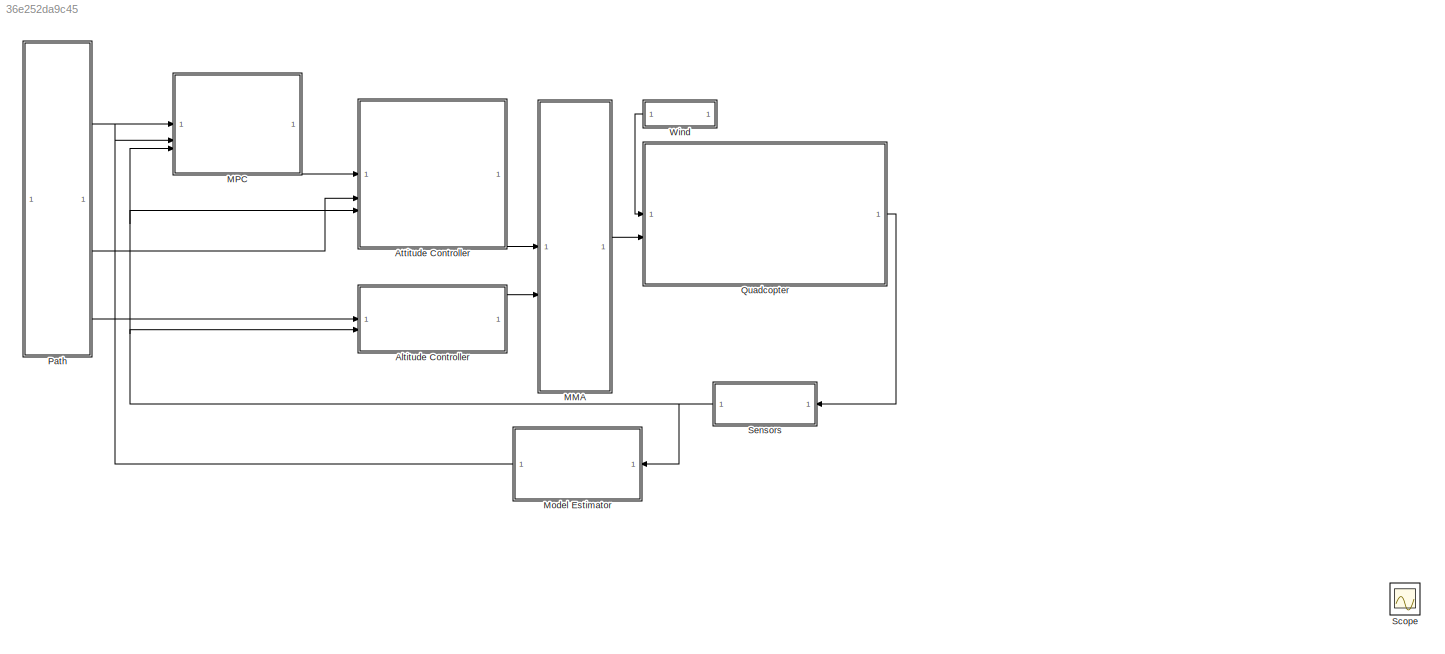
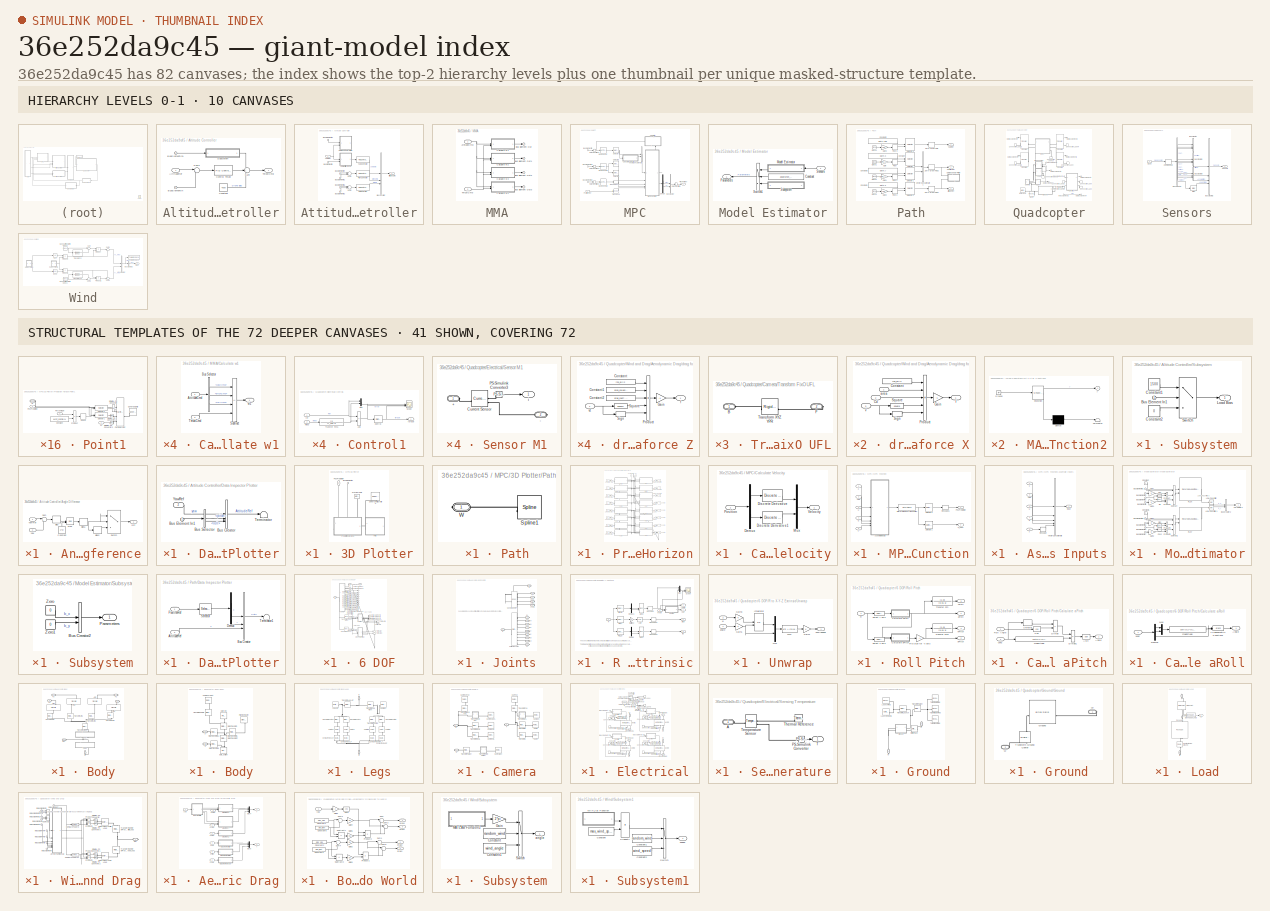
[diagram: thumbnail index - top-2 hierarchy levels (10 canvases) + 41 structural-template representatives of the remaining 72 canvases]
MODEL slx_36e252da9c45
KIND model
CONFIG AbsTol = 1e-4
CONFIG EnableMultiTasking = off
CONFIG FixedStep = auto
CONFIG MaxStep = 0.1
CONFIG MinStep = auto
CONFIG RelTol = 1e-4
CONFIG SampleTimeConstraint = Unconstrained
CONFIG SolverName = FixedStepAuto
CONFIG StartTime = 0.0
CONFIG StopTime = inf
BLOCK [SubSystem] Altitude Controller
BLOCK [Inport] Altitude Controller/AltitudeRef
BLOCK [Inport] Altitude Controller/BusElementIn
  Port = 2
BLOCK [Inport] Altitude Controller/BusElementIn1
  Port = 2
BLOCK [Constant] Altitude Controller/Constant
  Value = 4500
BLOCK [Reference] Altitude Controller/Control Thrust  REF=slpidlib/PID Controller
  SourceBlock = slpidlib/PID Controller
  SourceType = PID 1dof
BLOCK [SubSystem] Altitude Controller/Subsystem
BLOCK [Inport] Altitude Controller/Subsystem/Bus Element In1
BLOCK [Constant] Altitude Controller/Subsystem/Constant1
  Value = 1500
BLOCK [Constant] Altitude Controller/Subsystem/Constant2
  Value = 0
BLOCK [Outport] Altitude Controller/Subsystem/Load Bias
BLOCK [Switch] Altitude Controller/Subsystem/Switch
  Criteria = u2 > Threshold
  InputSameDT = off
  SaturateOnIntegerOverflow = off
BLOCK [Sum] Altitude Controller/Sum
  Inputs = +++
BLOCK [Sum] Altitude Controller/Sum1
  Inputs = |+-
BLOCK [Outport] Altitude Controller/ThrustCmd
BLOCK [SubSystem] Attitude Controller
BLOCK [SubSystem] Attitude Controller/Angle Difference
BLOCK [Bias] Attitude Controller/Angle Difference/Bias
  Bias = pi
  SaturateOnIntegerOverflow = off
BLOCK [Bias] Attitude Controller/Angle Difference/Bias1
  Bias = -pi
  SaturateOnIntegerOverflow = off
BLOCK [Bias] Attitude Controller/Angle Difference/Bias2
  Bias = 2*pi
  SaturateOnIntegerOverflow = off
BLOCK [Constant] Attitude Controller/Angle Difference/Constant
  NameLocation = right
  Value = 2*pi
BLOCK [Outport] Attitude Controller/Angle Difference/Diff
BLOCK [Math] Attitude Controller/Angle Difference/Mod
  Operator = mod
BLOCK [Sum] Attitude Controller/Angle Difference/Sum
  Inputs = |+-
BLOCK [Switch] Attitude Controller/Angle Difference/Switch
  Criteria = u2 > Threshold
  InputSameDT = off
  SaturateOnIntegerOverflow = off
  Threshold = -pi
BLOCK [Inport] Attitude Controller/Angle Difference/Yaw
  Port = 2
BLOCK [Inport] Attitude Controller/Angle Difference/YawRef
BLOCK [Outport] Attitude Controller/AttitudeCmd
BLOCK [BusCreator] Attitude Controller/Bus Creator
  DisplayOption = bar
  InheritFromInputs = on
  Inputs = 3
BLOCK [Inport] Attitude Controller/Bus Element In1
BLOCK [Inport] Attitude Controller/Bus Element In4
BLOCK [Inport] Attitude Controller/Bus Element In5
BLOCK [Inport] Attitude Controller/BusElementIn
  Port = 3
BLOCK [Inport] Attitude Controller/BusElementIn1
  Port = 3
BLOCK [Inport] Attitude Controller/BusElementIn2
  Port = 3
BLOCK [SubSystem] Attitude Controller/Data Inspector Plotter
  NameLocation = right
BLOCK [BusCreator] Attitude Controller/Data Inspector Plotter/Bus Creator
  DisplayOption = bar
  InheritFromInputs = on
  Inputs = 3
BLOCK [Inport] Attitude Controller/Data Inspector Plotter/Bus Element In1
BLOCK [BusSelector] Attitude Controller/Data Inspector Plotter/Bus Selector
  OutputSignals = pitch,roll
BLOCK [Terminator] Attitude Controller/Data Inspector Plotter/Terminator
BLOCK [Inport] Attitude Controller/Data Inspector Plotter/YawRef
  NameLocation = top
  Port = 2
BLOCK [Reference] Attitude Controller/Pitch Controller  REF=slpidlib/PID Controller
  SourceBlock = slpidlib/PID Controller
  SourceType = PID 1dof
BLOCK [Reference] Attitude Controller/Roll Controller  REF=slpidlib/PID Controller
  SourceBlock = slpidlib/PID Controller
  SourceType = PID 1dof
BLOCK [Sum] Attitude Controller/Sum1
  Inputs = |+-
BLOCK [Sum] Attitude Controller/Sum2
  Inputs = |+-
BLOCK [Reference] Attitude Controller/Yaw Controller  REF=slpidlib/PID Controller
  SourceBlock = slpidlib/PID Controller
  SourceType = PID 1dof
BLOCK [Inport] Attitude Controller/YawRef
  NameLocation = top
  Port = 2
BLOCK [SubSystem] MMA
  NameLocation = top
BLOCK [Inport] MMA/AttitudeCmd
BLOCK [Outport] MMA/Bus Element Out
BLOCK [Outport] MMA/Bus Element Out1
BLOCK [Outport] MMA/Bus Element Out2
BLOCK [Outport] MMA/Bus Element Out3
BLOCK [SubSystem] MMA/Calculate w1
BLOCK [Inport] MMA/Calculate w1/AttitudeCmd
BLOCK [BusSelector] MMA/Calculate w1/Bus Selector
  OutputSignals = yawCmd,pitchCmd,rollCmd
BLOCK [Sum] MMA/Calculate w1/Subtract
  IconShape = rectangular
  Inputs = --++
BLOCK [Inport] MMA/Calculate w1/ThrustCmd
  Port = 2
BLOCK [Outport] MMA/Calculate w1/w1
BLOCK [SubSystem] MMA/Calculate w2
BLOCK [Inport] MMA/Calculate w2/AttitudeCmd
BLOCK [BusSelector] MMA/Calculate w2/Bus Selector
  OutputSignals = yawCmd,pitchCmd,rollCmd
BLOCK [Sum] MMA/Calculate w2/Subtract
  IconShape = rectangular
  Inputs = +--+
BLOCK [Inport] MMA/Calculate w2/ThrustCmd
  Port = 2
BLOCK [Outport] MMA/Calculate w2/w2
BLOCK [SubSystem] MMA/Calculate w3
BLOCK [Inport] MMA/Calculate w3/AttitudeCmd
BLOCK [BusSelector] MMA/Calculate w3/Bus Selector
  OutputSignals = yawCmd,pitchCmd,rollCmd
BLOCK [Sum] MMA/Calculate w3/Subtract
  IconShape = rectangular
  Inputs = ++++
BLOCK [Inport] MMA/Calculate w3/ThrustCmd
  Port = 2
BLOCK [Outport] MMA/Calculate w3/w3
BLOCK [SubSystem] MMA/Calculate w4
BLOCK [Inport] MMA/Calculate w4/AttitudeCmd
BLOCK [BusSelector] MMA/Calculate w4/Bus Selector
  OutputSignals = yawCmd,pitchCmd,rollCmd
BLOCK [Sum] MMA/Calculate w4/Subtract
  IconShape = rectangular
  Inputs = -+-+
BLOCK [Inport] MMA/Calculate w4/ThrustCmd
  Port = 2
BLOCK [Outport] MMA/Calculate w4/w4
BLOCK [Inport] MMA/ThrustCmd
  Port = 2
BLOCK [SubSystem] MPC
  NameLocation = top
BLOCK [SubSystem] MPC/3D Plotter
  NameLocation = top
  PortSchema = {"entries":[{"content":{"sides":[{"content":{},"type":"ConnectorPlacement.EquallySpacedRectSide","uuid":"e0108e40-7aae-4104-a358-d74a5f3e4ffc"},{"content":{"side":"RIGHT"},"type":"ConnectorPlacement.EquallySpacedRectSide","uuid":"423988ce-e1aa-44bb-89d1-9f8d1d6b3900"},{"content":{"connectorIds":["In1"],"side":"TOP"},"type":"ConnectorPlacement.EquallySpacedRectSide","uuid":"a9ac0a6f-9ee2-42d4-a631-...<+348ch>
BLOCK [Inport] MPC/3D Plotter/BusElementIn1
  NameLocation = left
BLOCK [SubSystem] MPC/3D Plotter/Path
  PortSchema = {"entries":[{"content":{"sides":[{"content":{},"type":"ConnectorPlacement.EquallySpacedRectSide","uuid":"a37decf6-7c95-4e74-978f-accab4815bca"},{"content":{"side":"RIGHT"},"type":"ConnectorPlacement.EquallySpacedRectSide","uuid":"1290ed2a-5cda-4ac5-b3d1-08d972a37bb4"},{"content":{"side":"TOP"},"type":"ConnectorPlacement.EquallySpacedRectSide","uuid":"57cc8f3c-04dd-443b-a82e-0db9ef1adeeb"},{"conten...<+328ch>
BLOCK [Reference] MPC/3D Plotter/Path/Spline1  REF=sm_lib/Curves and Surfaces/Spline
  SourceBlock = sm_lib/Curves and Surfaces/Spline
  SourceType = Spline
BLOCK [PMIOPort] MPC/3D Plotter/Path/W
  Side = Right
BLOCK [Inport] MPC/3D Plotter/PosPrediction
  NameLocation = top
  Port = 2
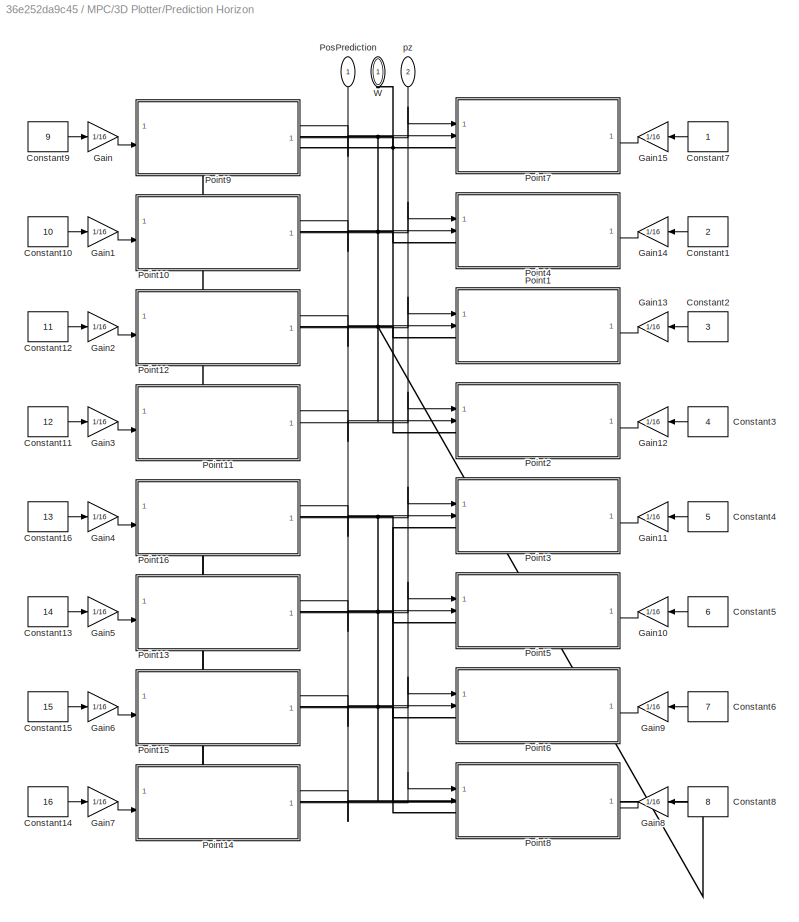
BLOCK [SubSystem] MPC/3D Plotter/Prediction Horizon
  PortSchema = {"entries":[{"content":{"sides":[{"content":{},"type":"ConnectorPlacement.EquallySpacedRectSide","uuid":"8e97a51c-4e54-4ead-983f-8da85e5c6afb"},{"content":{"side":"RIGHT"},"type":"ConnectorPlacement.EquallySpacedRectSide","uuid":"49564596-eda7-46a1-80be-d73174b6811e"},{"content":{"connectorIds":["In1","In2","LConn1"],"side":"TOP"},"type":"ConnectorPlacement.EquallySpacedRectSide","uuid":"27a12f24-...<+214ch>
BLOCK [Constant] MPC/3D Plotter/Prediction Horizon/Constant1
  NameLocation = top
  Value = 2
BLOCK [Constant] MPC/3D Plotter/Prediction Horizon/Constant10
  Value = 10
BLOCK [Constant] MPC/3D Plotter/Prediction Horizon/Constant11
  Value = 12
BLOCK [Constant] MPC/3D Plotter/Prediction Horizon/Constant12
  Value = 11
BLOCK [Constant] MPC/3D Plotter/Prediction Horizon/Constant13
  Value = 14
BLOCK [Constant] MPC/3D Plotter/Prediction Horizon/Constant14
  Value = 16
BLOCK [Constant] MPC/3D Plotter/Prediction Horizon/Constant15
  Value = 15
BLOCK [Constant] MPC/3D Plotter/Prediction Horizon/Constant16
  Value = 13
BLOCK [Constant] MPC/3D Plotter/Prediction Horizon/Constant2
  NameLocation = top
  Value = 3
BLOCK [Constant] MPC/3D Plotter/Prediction Horizon/Constant3
  NameLocation = top
  Value = 4
BLOCK [Constant] MPC/3D Plotter/Prediction Horizon/Constant4
  NameLocation = top
  Value = 5
BLOCK [Constant] MPC/3D Plotter/Prediction Horizon/Constant5
  NameLocation = top
  Value = 6
BLOCK [Constant] MPC/3D Plotter/Prediction Horizon/Constant6
  NameLocation = top
  Value = 7
BLOCK [Constant] MPC/3D Plotter/Prediction Horizon/Constant7
  NameLocation = top
BLOCK [Constant] MPC/3D Plotter/Prediction Horizon/Constant8
  NameLocation = top
  Value = 8
BLOCK [Constant] MPC/3D Plotter/Prediction Horizon/Constant9
  Value = 9
BLOCK [Gain] MPC/3D Plotter/Prediction Horizon/Gain
  Gain = 1/16
BLOCK [Gain] MPC/3D Plotter/Prediction Horizon/Gain1
  Gain = 1/16
BLOCK [Gain] MPC/3D Plotter/Prediction Horizon/Gain10
  Gain = 1/16
  NameLocation = top
BLOCK [Gain] MPC/3D Plotter/Prediction Horizon/Gain11
  Gain = 1/16
  NameLocation = top
BLOCK [Gain] MPC/3D Plotter/Prediction Horizon/Gain12
  Gain = 1/16
  NameLocation = top
BLOCK [Gain] MPC/3D Plotter/Prediction Horizon/Gain13
  Gain = 1/16
  NameLocation = top
BLOCK [Gain] MPC/3D Plotter/Prediction Horizon/Gain14
  Gain = 1/16
  NameLocation = top
BLOCK [Gain] MPC/3D Plotter/Prediction Horizon/Gain15
  Gain = 1/16
  NameLocation = top
BLOCK [Gain] MPC/3D Plotter/Prediction Horizon/Gain2
  Gain = 1/16
BLOCK [Gain] MPC/3D Plotter/Prediction Horizon/Gain3
  Gain = 1/16
BLOCK [Gain] MPC/3D Plotter/Prediction Horizon/Gain4
  Gain = 1/16
BLOCK [Gain] MPC/3D Plotter/Prediction Horizon/Gain5
  Gain = 1/16
BLOCK [Gain] MPC/3D Plotter/Prediction Horizon/Gain6
  Gain = 1/16
BLOCK [Gain] MPC/3D Plotter/Prediction Horizon/Gain7
  Gain = 1/16
BLOCK [Gain] MPC/3D Plotter/Prediction Horizon/Gain8
  Gain = 1/16
  NameLocation = top
BLOCK [Gain] MPC/3D Plotter/Prediction Horizon/Gain9
  Gain = 1/16
  NameLocation = top
BLOCK [SubSystem] MPC/3D Plotter/Prediction Horizon/Point1
  PortSchema = {"entries":[{"content":{"sides":[{"content":{"connectorIds":["In1","LConn1","In2"]},"type":"ConnectorPlacement.EquallySpacedRectSide","uuid":"cc92885d-da45-442c-a0be-bd9072ccd0a5"},{"content":{"connectorIds":["In3"],"side":"RIGHT"},"type":"ConnectorPlacement.EquallySpacedRectSide","uuid":"93d66193-cd04-472c-bc91-8b31f2426c90"},{"content":{"side":"TOP"},"type":"ConnectorPlacement.EquallySpacedRectS...<+236ch>  <repeated x16 — deduplicated; at blocks: Point1, Point10, Point11, Point12, Point13, Point14, Point15, Point16, Point2, Point3, Point4, Point5, Point6, Point7, Point8, Point9>
BLOCK [Reference] MPC/3D Plotter/Prediction Horizon/Point1/Cartesian Joint  REF=sm_lib/Joints/Cartesian
Joint
  SourceBlock = sm_lib/Joints/Cartesian\nJoint
  SourceType = Cartesian\nJoint
BLOCK [Constant] MPC/3D Plotter/Prediction Horizon/Point1/Constant
  Value = MPC_config.N
BLOCK [Inport] MPC/3D Plotter/Prediction Horizon/Point1/Percentage
  NameLocation = top
  Port = 3
BLOCK [Inport] MPC/3D Plotter/Prediction Horizon/Point1/PosPrediction
  Port = 2
BLOCK [Product] MPC/3D Plotter/Prediction Horizon/Point1/Product
BLOCK [Rounding] MPC/3D Plotter/Prediction Horizon/Point1/Round
  Operator = round
BLOCK [Selector] MPC/3D Plotter/Prediction Horizon/Point1/Selector1
  IndexOptions = Index vector (port),Index vector (dialog)
  Indices = 20,2
  InputPortWidth = 3
  NumberOfDimensions = 2
  OutputSizes = 1,1
BLOCK [Selector] MPC/3D Plotter/Prediction Horizon/Point1/Selector2
  IndexOptions = Index vector (port),Index vector (dialog)
  Indices = 20,1
  InputPortWidth = 3
  NumberOfDimensions = 2
  OutputSizes = 1,1
BLOCK [Reference] MPC/3D Plotter/Prediction Horizon/Point1/Simulink-PS Converter  REF=nesl_utility/Simulink-PS
Converter
  SourceBlock = nesl_utility/Simulink-PS\nConverter
  SourceType = Simulink-PS\nConverter
BLOCK [Reference] MPC/3D Plotter/Prediction Horizon/Point1/Simulink-PS Converter1  REF=nesl_utility/Simulink-PS
Converter
  SourceBlock = nesl_utility/Simulink-PS\nConverter
  SourceType = Simulink-PS\nConverter
BLOCK [Reference] MPC/3D Plotter/Prediction Horizon/Point1/Simulink-PS Converter2  REF=nesl_utility/Simulink-PS
Converter
  SourceBlock = nesl_utility/Simulink-PS\nConverter
  SourceType = Simulink-PS\nConverter
BLOCK [Reference] MPC/3D Plotter/Prediction Horizon/Point1/Spherical Solid  REF=sm_lib/Body Elements/Spherical Solid
  NameLocation = top
  SourceBlock = sm_lib/Body Elements/Spherical Solid
  SourceType = Spherical Solid
BLOCK [PMIOPort] MPC/3D Plotter/Prediction Horizon/Point1/W
  Side = Left
BLOCK [Inport] MPC/3D Plotter/Prediction Horizon/Point1/pz
BLOCK [SubSystem] MPC/3D Plotter/Prediction Horizon/Point10
  NameLocation = top
BLOCK [Reference] MPC/3D Plotter/Prediction Horizon/Point10/Cartesian Joint  REF=sm_lib/Joints/Cartesian
Joint
  SourceBlock = sm_lib/Joints/Cartesian\nJoint
  SourceType = Cartesian\nJoint
BLOCK [Constant] MPC/3D Plotter/Prediction Horizon/Point10/Constant
  Value = MPC_config.N
BLOCK [Inport] MPC/3D Plotter/Prediction Horizon/Point10/Percentage
  NameLocation = top
  Port = 3
BLOCK [Inport] MPC/3D Plotter/Prediction Horizon/Point10/PosPrediction
BLOCK [Product] MPC/3D Plotter/Prediction Horizon/Point10/Product
BLOCK [Rounding] MPC/3D Plotter/Prediction Horizon/Point10/Round
  Operator = round
BLOCK [Selector] MPC/3D Plotter/Prediction Horizon/Point10/Selector1
  IndexOptions = Index vector (port),Index vector (dialog)
  Indices = 20,2
  InputPortWidth = 3
  NumberOfDimensions = 2
  OutputSizes = 1,1
BLOCK [Selector] MPC/3D Plotter/Prediction Horizon/Point10/Selector2
  IndexOptions = Index vector (port),Index vector (dialog)
  Indices = 20,1
  InputPortWidth = 3
  NumberOfDimensions = 2
  OutputSizes = 1,1
BLOCK [Reference] MPC/3D Plotter/Prediction Horizon/Point10/Simulink-PS Converter  REF=nesl_utility/Simulink-PS
Converter
  SourceBlock = nesl_utility/Simulink-PS\nConverter
  SourceType = Simulink-PS\nConverter
BLOCK [Reference] MPC/3D Plotter/Prediction Horizon/Point10/Simulink-PS Converter1  REF=nesl_utility/Simulink-PS
Converter
  SourceBlock = nesl_utility/Simulink-PS\nConverter
  SourceType = Simulink-PS\nConverter
BLOCK [Reference] MPC/3D Plotter/Prediction Horizon/Point10/Simulink-PS Converter2  REF=nesl_utility/Simulink-PS
Converter
  SourceBlock = nesl_utility/Simulink-PS\nConverter
  SourceType = Simulink-PS\nConverter
BLOCK [Reference] MPC/3D Plotter/Prediction Horizon/Point10/Spherical Solid  REF=sm_lib/Body Elements/Spherical Solid
  NameLocation = top
  SourceBlock = sm_lib/Body Elements/Spherical Solid
  SourceType = Spherical Solid
BLOCK [PMIOPort] MPC/3D Plotter/Prediction Horizon/Point10/W
  Side = Left
BLOCK [Inport] MPC/3D Plotter/Prediction Horizon/Point10/pz
  Port = 2
BLOCK [SubSystem] MPC/3D Plotter/Prediction Horizon/Point11
  NameLocation = top
BLOCK [Reference] MPC/3D Plotter/Prediction Horizon/Point11/Cartesian Joint  REF=sm_lib/Joints/Cartesian
Joint
  SourceBlock = sm_lib/Joints/Cartesian\nJoint
  SourceType = Cartesian\nJoint
BLOCK [Constant] MPC/3D Plotter/Prediction Horizon/Point11/Constant
  Value = MPC_config.N
BLOCK [Inport] MPC/3D Plotter/Prediction Horizon/Point11/Percentage
  NameLocation = top
  Port = 3
BLOCK [Inport] MPC/3D Plotter/Prediction Horizon/Point11/PosPrediction
BLOCK [Product] MPC/3D Plotter/Prediction Horizon/Point11/Product
BLOCK [Rounding] MPC/3D Plotter/Prediction Horizon/Point11/Round
  Operator = round
BLOCK [Selector] MPC/3D Plotter/Prediction Horizon/Point11/Selector1
  IndexOptions = Index vector (port),Index vector (dialog)
  Indices = 20,2
  InputPortWidth = 3
  NumberOfDimensions = 2
  OutputSizes = 1,1
BLOCK [Selector] MPC/3D Plotter/Prediction Horizon/Point11/Selector2
  IndexOptions = Index vector (port),Index vector (dialog)
  Indices = 20,1
  InputPortWidth = 3
  NumberOfDimensions = 2
  OutputSizes = 1,1
BLOCK [Reference] MPC/3D Plotter/Prediction Horizon/Point11/Simulink-PS Converter  REF=nesl_utility/Simulink-PS
Converter
  SourceBlock = nesl_utility/Simulink-PS\nConverter
  SourceType = Simulink-PS\nConverter
BLOCK [Reference] MPC/3D Plotter/Prediction Horizon/Point11/Simulink-PS Converter1  REF=nesl_utility/Simulink-PS
Converter
  SourceBlock = nesl_utility/Simulink-PS\nConverter
  SourceType = Simulink-PS\nConverter
BLOCK [Reference] MPC/3D Plotter/Prediction Horizon/Point11/Simulink-PS Converter2  REF=nesl_utility/Simulink-PS
Converter
  SourceBlock = nesl_utility/Simulink-PS\nConverter
  SourceType = Simulink-PS\nConverter
BLOCK [Reference] MPC/3D Plotter/Prediction Horizon/Point11/Spherical Solid  REF=sm_lib/Body Elements/Spherical Solid
  NameLocation = top
  SourceBlock = sm_lib/Body Elements/Spherical Solid
  SourceType = Spherical Solid
BLOCK [PMIOPort] MPC/3D Plotter/Prediction Horizon/Point11/W
  Side = Left
BLOCK [Inport] MPC/3D Plotter/Prediction Horizon/Point11/pz
  Port = 2
BLOCK [SubSystem] MPC/3D Plotter/Prediction Horizon/Point12
  NameLocation = top
BLOCK [Reference] MPC/3D Plotter/Prediction Horizon/Point12/Cartesian Joint  REF=sm_lib/Joints/Cartesian
Joint
  SourceBlock = sm_lib/Joints/Cartesian\nJoint
  SourceType = Cartesian\nJoint
BLOCK [Constant] MPC/3D Plotter/Prediction Horizon/Point12/Constant
  Value = MPC_config.N
BLOCK [Inport] MPC/3D Plotter/Prediction Horizon/Point12/Percentage
  NameLocation = top
  Port = 3
BLOCK [Inport] MPC/3D Plotter/Prediction Horizon/Point12/PosPrediction
BLOCK [Product] MPC/3D Plotter/Prediction Horizon/Point12/Product
BLOCK [Rounding] MPC/3D Plotter/Prediction Horizon/Point12/Round
  Operator = round
BLOCK [Selector] MPC/3D Plotter/Prediction Horizon/Point12/Selector1
  IndexOptions = Index vector (port),Index vector (dialog)
  Indices = 20,2
  InputPortWidth = 3
  NumberOfDimensions = 2
  OutputSizes = 1,1
BLOCK [Selector] MPC/3D Plotter/Prediction Horizon/Point12/Selector2
  IndexOptions = Index vector (port),Index vector (dialog)
  Indices = 20,1
  InputPortWidth = 3
  NumberOfDimensions = 2
  OutputSizes = 1,1
BLOCK [Reference] MPC/3D Plotter/Prediction Horizon/Point12/Simulink-PS Converter  REF=nesl_utility/Simulink-PS
Converter
  SourceBlock = nesl_utility/Simulink-PS\nConverter
  SourceType = Simulink-PS\nConverter
BLOCK [Reference] MPC/3D Plotter/Prediction Horizon/Point12/Simulink-PS Converter1  REF=nesl_utility/Simulink-PS
Converter
  SourceBlock = nesl_utility/Simulink-PS\nConverter
  SourceType = Simulink-PS\nConverter
BLOCK [Reference] MPC/3D Plotter/Prediction Horizon/Point12/Simulink-PS Converter2  REF=nesl_utility/Simulink-PS
Converter
  SourceBlock = nesl_utility/Simulink-PS\nConverter
  SourceType = Simulink-PS\nConverter
BLOCK [Reference] MPC/3D Plotter/Prediction Horizon/Point12/Spherical Solid  REF=sm_lib/Body Elements/Spherical Solid
  NameLocation = top
  SourceBlock = sm_lib/Body Elements/Spherical Solid
  SourceType = Spherical Solid
BLOCK [PMIOPort] MPC/3D Plotter/Prediction Horizon/Point12/W
  Side = Left
BLOCK [Inport] MPC/3D Plotter/Prediction Horizon/Point12/pz
  Port = 2
BLOCK [SubSystem] MPC/3D Plotter/Prediction Horizon/Point13
  NameLocation = top
BLOCK [Reference] MPC/3D Plotter/Prediction Horizon/Point13/Cartesian Joint  REF=sm_lib/Joints/Cartesian
Joint
  SourceBlock = sm_lib/Joints/Cartesian\nJoint
  SourceType = Cartesian\nJoint
BLOCK [Constant] MPC/3D Plotter/Prediction Horizon/Point13/Constant
  Value = MPC_config.N
BLOCK [Inport] MPC/3D Plotter/Prediction Horizon/Point13/Percentage
  NameLocation = top
  Port = 3
BLOCK [Inport] MPC/3D Plotter/Prediction Horizon/Point13/PosPrediction
BLOCK [Product] MPC/3D Plotter/Prediction Horizon/Point13/Product
BLOCK [Rounding] MPC/3D Plotter/Prediction Horizon/Point13/Round
  Operator = round
BLOCK [Selector] MPC/3D Plotter/Prediction Horizon/Point13/Selector1
  IndexOptions = Index vector (port),Index vector (dialog)
  Indices = 20,2
  InputPortWidth = 3
  NumberOfDimensions = 2
  OutputSizes = 1,1
BLOCK [Selector] MPC/3D Plotter/Prediction Horizon/Point13/Selector2
  IndexOptions = Index vector (port),Index vector (dialog)
  Indices = 20,1
  InputPortWidth = 3
  NumberOfDimensions = 2
  OutputSizes = 1,1
BLOCK [Reference] MPC/3D Plotter/Prediction Horizon/Point13/Simulink-PS Converter  REF=nesl_utility/Simulink-PS
Converter
  SourceBlock = nesl_utility/Simulink-PS\nConverter
  SourceType = Simulink-PS\nConverter
BLOCK [Reference] MPC/3D Plotter/Prediction Horizon/Point13/Simulink-PS Converter1  REF=nesl_utility/Simulink-PS
Converter
  SourceBlock = nesl_utility/Simulink-PS\nConverter
  SourceType = Simulink-PS\nConverter
BLOCK [Reference] MPC/3D Plotter/Prediction Horizon/Point13/Simulink-PS Converter2  REF=nesl_utility/Simulink-PS
Converter
  SourceBlock = nesl_utility/Simulink-PS\nConverter
  SourceType = Simulink-PS\nConverter
BLOCK [Reference] MPC/3D Plotter/Prediction Horizon/Point13/Spherical Solid  REF=sm_lib/Body Elements/Spherical Solid
  NameLocation = top
  SourceBlock = sm_lib/Body Elements/Spherical Solid
  SourceType = Spherical Solid
BLOCK [PMIOPort] MPC/3D Plotter/Prediction Horizon/Point13/W
  Side = Left
BLOCK [Inport] MPC/3D Plotter/Prediction Horizon/Point13/pz
  Port = 2
BLOCK [SubSystem] MPC/3D Plotter/Prediction Horizon/Point14
  NameLocation = top
BLOCK [Reference] MPC/3D Plotter/Prediction Horizon/Point14/Cartesian Joint  REF=sm_lib/Joints/Cartesian
Joint
  SourceBlock = sm_lib/Joints/Cartesian\nJoint
  SourceType = Cartesian\nJoint
BLOCK [Constant] MPC/3D Plotter/Prediction Horizon/Point14/Constant
  Value = MPC_config.N
BLOCK [Inport] MPC/3D Plotter/Prediction Horizon/Point14/Percentage
  NameLocation = top
  Port = 3
BLOCK [Inport] MPC/3D Plotter/Prediction Horizon/Point14/PosPrediction
BLOCK [Product] MPC/3D Plotter/Prediction Horizon/Point14/Product
BLOCK [Rounding] MPC/3D Plotter/Prediction Horizon/Point14/Round
  Operator = round
BLOCK [Selector] MPC/3D Plotter/Prediction Horizon/Point14/Selector1
  IndexOptions = Index vector (port),Index vector (dialog)
  Indices = 20,2
  InputPortWidth = 3
  NumberOfDimensions = 2
  OutputSizes = 1,1
BLOCK [Selector] MPC/3D Plotter/Prediction Horizon/Point14/Selector2
  IndexOptions = Index vector (port),Index vector (dialog)
  Indices = 20,1
  InputPortWidth = 3
  NumberOfDimensions = 2
  OutputSizes = 1,1
BLOCK [Reference] MPC/3D Plotter/Prediction Horizon/Point14/Simulink-PS Converter  REF=nesl_utility/Simulink-PS
Converter
  SourceBlock = nesl_utility/Simulink-PS\nConverter
  SourceType = Simulink-PS\nConverter
BLOCK [Reference] MPC/3D Plotter/Prediction Horizon/Point14/Simulink-PS Converter1  REF=nesl_utility/Simulink-PS
Converter
  SourceBlock = nesl_utility/Simulink-PS\nConverter
  SourceType = Simulink-PS\nConverter
BLOCK [Reference] MPC/3D Plotter/Prediction Horizon/Point14/Simulink-PS Converter2  REF=nesl_utility/Simulink-PS
Converter
  SourceBlock = nesl_utility/Simulink-PS\nConverter
  SourceType = Simulink-PS\nConverter
BLOCK [Reference] MPC/3D Plotter/Prediction Horizon/Point14/Spherical Solid  REF=sm_lib/Body Elements/Spherical Solid
  NameLocation = top
  SourceBlock = sm_lib/Body Elements/Spherical Solid
  SourceType = Spherical Solid
BLOCK [PMIOPort] MPC/3D Plotter/Prediction Horizon/Point14/W
  Side = Left
BLOCK [Inport] MPC/3D Plotter/Prediction Horizon/Point14/pz
  Port = 2
BLOCK [SubSystem] MPC/3D Plotter/Prediction Horizon/Point15
  NameLocation = top
BLOCK [Reference] MPC/3D Plotter/Prediction Horizon/Point15/Cartesian Joint  REF=sm_lib/Joints/Cartesian
Joint
  SourceBlock = sm_lib/Joints/Cartesian\nJoint
  SourceType = Cartesian\nJoint
BLOCK [Constant] MPC/3D Plotter/Prediction Horizon/Point15/Constant
  Value = MPC_config.N
BLOCK [Inport] MPC/3D Plotter/Prediction Horizon/Point15/Percentage
  NameLocation = top
  Port = 3
BLOCK [Inport] MPC/3D Plotter/Prediction Horizon/Point15/PosPrediction
BLOCK [Product] MPC/3D Plotter/Prediction Horizon/Point15/Product
BLOCK [Rounding] MPC/3D Plotter/Prediction Horizon/Point15/Round
  Operator = round
BLOCK [Selector] MPC/3D Plotter/Prediction Horizon/Point15/Selector1
  IndexOptions = Index vector (port),Index vector (dialog)
  Indices = 20,2
  InputPortWidth = 3
  NumberOfDimensions = 2
  OutputSizes = 1,1
BLOCK [Selector] MPC/3D Plotter/Prediction Horizon/Point15/Selector2
  IndexOptions = Index vector (port),Index vector (dialog)
  Indices = 20,1
  InputPortWidth = 3
  NumberOfDimensions = 2
  OutputSizes = 1,1
BLOCK [Reference] MPC/3D Plotter/Prediction Horizon/Point15/Simulink-PS Converter  REF=nesl_utility/Simulink-PS
Converter
  SourceBlock = nesl_utility/Simulink-PS\nConverter
  SourceType = Simulink-PS\nConverter
BLOCK [Reference] MPC/3D Plotter/Prediction Horizon/Point15/Simulink-PS Converter1  REF=nesl_utility/Simulink-PS
Converter
  SourceBlock = nesl_utility/Simulink-PS\nConverter
  SourceType = Simulink-PS\nConverter
BLOCK [Reference] MPC/3D Plotter/Prediction Horizon/Point15/Simulink-PS Converter2  REF=nesl_utility/Simulink-PS
Converter
  SourceBlock = nesl_utility/Simulink-PS\nConverter
  SourceType = Simulink-PS\nConverter
BLOCK [Reference] MPC/3D Plotter/Prediction Horizon/Point15/Spherical Solid  REF=sm_lib/Body Elements/Spherical Solid
  NameLocation = top
  SourceBlock = sm_lib/Body Elements/Spherical Solid
  SourceType = Spherical Solid
BLOCK [PMIOPort] MPC/3D Plotter/Prediction Horizon/Point15/W
  Side = Left
BLOCK [Inport] MPC/3D Plotter/Prediction Horizon/Point15/pz
  Port = 2
BLOCK [SubSystem] MPC/3D Plotter/Prediction Horizon/Point16
  NameLocation = top
BLOCK [Reference] MPC/3D Plotter/Prediction Horizon/Point16/Cartesian Joint  REF=sm_lib/Joints/Cartesian
Joint
  SourceBlock = sm_lib/Joints/Cartesian\nJoint
  SourceType = Cartesian\nJoint
BLOCK [Constant] MPC/3D Plotter/Prediction Horizon/Point16/Constant
  Value = MPC_config.N
BLOCK [Inport] MPC/3D Plotter/Prediction Horizon/Point16/Percentage
  NameLocation = top
  Port = 3
BLOCK [Inport] MPC/3D Plotter/Prediction Horizon/Point16/PosPrediction
BLOCK [Product] MPC/3D Plotter/Prediction Horizon/Point16/Product
BLOCK [Rounding] MPC/3D Plotter/Prediction Horizon/Point16/Round
  Operator = round
BLOCK [Selector] MPC/3D Plotter/Prediction Horizon/Point16/Selector1
  IndexOptions = Index vector (port),Index vector (dialog)
  Indices = 20,2
  InputPortWidth = 3
  NumberOfDimensions = 2
  OutputSizes = 1,1
BLOCK [Selector] MPC/3D Plotter/Prediction Horizon/Point16/Selector2
  IndexOptions = Index vector (port),Index vector (dialog)
  Indices = 20,1
  InputPortWidth = 3
  NumberOfDimensions = 2
  OutputSizes = 1,1
BLOCK [Reference] MPC/3D Plotter/Prediction Horizon/Point16/Simulink-PS Converter  REF=nesl_utility/Simulink-PS
Converter
  SourceBlock = nesl_utility/Simulink-PS\nConverter
  SourceType = Simulink-PS\nConverter
BLOCK [Reference] MPC/3D Plotter/Prediction Horizon/Point16/Simulink-PS Converter1  REF=nesl_utility/Simulink-PS
Converter
  SourceBlock = nesl_utility/Simulink-PS\nConverter
  SourceType = Simulink-PS\nConverter
BLOCK [Reference] MPC/3D Plotter/Prediction Horizon/Point16/Simulink-PS Converter2  REF=nesl_utility/Simulink-PS
Converter
  SourceBlock = nesl_utility/Simulink-PS\nConverter
  SourceType = Simulink-PS\nConverter
BLOCK [Reference] MPC/3D Plotter/Prediction Horizon/Point16/Spherical Solid  REF=sm_lib/Body Elements/Spherical Solid
  NameLocation = top
  SourceBlock = sm_lib/Body Elements/Spherical Solid
  SourceType = Spherical Solid
BLOCK [PMIOPort] MPC/3D Plotter/Prediction Horizon/Point16/W
  Side = Left
BLOCK [Inport] MPC/3D Plotter/Prediction Horizon/Point16/pz
  Port = 2
BLOCK [SubSystem] MPC/3D Plotter/Prediction Horizon/Point2
BLOCK [Reference] MPC/3D Plotter/Prediction Horizon/Point2/Cartesian Joint  REF=sm_lib/Joints/Cartesian
Joint
  SourceBlock = sm_lib/Joints/Cartesian\nJoint
  SourceType = Cartesian\nJoint
BLOCK [Constant] MPC/3D Plotter/Prediction Horizon/Point2/Constant
  Value = MPC_config.N
BLOCK [Inport] MPC/3D Plotter/Prediction Horizon/Point2/Percentage
  NameLocation = top
  Port = 3
BLOCK [Inport] MPC/3D Plotter/Prediction Horizon/Point2/PosPrediction
  Port = 2
BLOCK [Product] MPC/3D Plotter/Prediction Horizon/Point2/Product
BLOCK [Rounding] MPC/3D Plotter/Prediction Horizon/Point2/Round
  Operator = round
BLOCK [Selector] MPC/3D Plotter/Prediction Horizon/Point2/Selector1
  IndexOptions = Index vector (port),Index vector (dialog)
  Indices = 20,2
  InputPortWidth = 3
  NumberOfDimensions = 2
  OutputSizes = 1,1
BLOCK [Selector] MPC/3D Plotter/Prediction Horizon/Point2/Selector2
  IndexOptions = Index vector (port),Index vector (dialog)
  Indices = 20,1
  InputPortWidth = 3
  NumberOfDimensions = 2
  OutputSizes = 1,1
BLOCK [Reference] MPC/3D Plotter/Prediction Horizon/Point2/Simulink-PS Converter  REF=nesl_utility/Simulink-PS
Converter
  SourceBlock = nesl_utility/Simulink-PS\nConverter
  SourceType = Simulink-PS\nConverter
BLOCK [Reference] MPC/3D Plotter/Prediction Horizon/Point2/Simulink-PS Converter1  REF=nesl_utility/Simulink-PS
Converter
  SourceBlock = nesl_utility/Simulink-PS\nConverter
  SourceType = Simulink-PS\nConverter
BLOCK [Reference] MPC/3D Plotter/Prediction Horizon/Point2/Simulink-PS Converter2  REF=nesl_utility/Simulink-PS
Converter
  SourceBlock = nesl_utility/Simulink-PS\nConverter
  SourceType = Simulink-PS\nConverter
BLOCK [Reference] MPC/3D Plotter/Prediction Horizon/Point2/Spherical Solid  REF=sm_lib/Body Elements/Spherical Solid
  NameLocation = top
  SourceBlock = sm_lib/Body Elements/Spherical Solid
  SourceType = Spherical Solid
BLOCK [PMIOPort] MPC/3D Plotter/Prediction Horizon/Point2/W
  Side = Left
BLOCK [Inport] MPC/3D Plotter/Prediction Horizon/Point2/pz
BLOCK [SubSystem] MPC/3D Plotter/Prediction Horizon/Point3
BLOCK [Reference] MPC/3D Plotter/Prediction Horizon/Point3/Cartesian Joint  REF=sm_lib/Joints/Cartesian
Joint
  SourceBlock = sm_lib/Joints/Cartesian\nJoint
  SourceType = Cartesian\nJoint
BLOCK [Constant] MPC/3D Plotter/Prediction Horizon/Point3/Constant
  Value = MPC_config.N
BLOCK [Inport] MPC/3D Plotter/Prediction Horizon/Point3/Percentage
  NameLocation = top
  Port = 3
BLOCK [Inport] MPC/3D Plotter/Prediction Horizon/Point3/PosPrediction
  Port = 2
BLOCK [Product] MPC/3D Plotter/Prediction Horizon/Point3/Product
BLOCK [Rounding] MPC/3D Plotter/Prediction Horizon/Point3/Round
  Operator = round
BLOCK [Selector] MPC/3D Plotter/Prediction Horizon/Point3/Selector1
  IndexOptions = Index vector (port),Index vector (dialog)
  Indices = 20,2
  InputPortWidth = 3
  NumberOfDimensions = 2
  OutputSizes = 1,1
BLOCK [Selector] MPC/3D Plotter/Prediction Horizon/Point3/Selector2
  IndexOptions = Index vector (port),Index vector (dialog)
  Indices = 20,1
  InputPortWidth = 3
  NumberOfDimensions = 2
  OutputSizes = 1,1
BLOCK [Reference] MPC/3D Plotter/Prediction Horizon/Point3/Simulink-PS Converter  REF=nesl_utility/Simulink-PS
Converter
  SourceBlock = nesl_utility/Simulink-PS\nConverter
  SourceType = Simulink-PS\nConverter
BLOCK [Reference] MPC/3D Plotter/Prediction Horizon/Point3/Simulink-PS Converter1  REF=nesl_utility/Simulink-PS
Converter
  SourceBlock = nesl_utility/Simulink-PS\nConverter
  SourceType = Simulink-PS\nConverter
BLOCK [Reference] MPC/3D Plotter/Prediction Horizon/Point3/Simulink-PS Converter2  REF=nesl_utility/Simulink-PS
Converter
  SourceBlock = nesl_utility/Simulink-PS\nConverter
  SourceType = Simulink-PS\nConverter
BLOCK [Reference] MPC/3D Plotter/Prediction Horizon/Point3/Spherical Solid  REF=sm_lib/Body Elements/Spherical Solid
  NameLocation = top
  SourceBlock = sm_lib/Body Elements/Spherical Solid
  SourceType = Spherical Solid
BLOCK [PMIOPort] MPC/3D Plotter/Prediction Horizon/Point3/W
  Side = Left
BLOCK [Inport] MPC/3D Plotter/Prediction Horizon/Point3/pz
BLOCK [SubSystem] MPC/3D Plotter/Prediction Horizon/Point4
BLOCK [Reference] MPC/3D Plotter/Prediction Horizon/Point4/Cartesian Joint  REF=sm_lib/Joints/Cartesian
Joint
  SourceBlock = sm_lib/Joints/Cartesian\nJoint
  SourceType = Cartesian\nJoint
BLOCK [Constant] MPC/3D Plotter/Prediction Horizon/Point4/Constant
  Value = MPC_config.N
BLOCK [Inport] MPC/3D Plotter/Prediction Horizon/Point4/Percentage
  NameLocation = top
  Port = 3
BLOCK [Inport] MPC/3D Plotter/Prediction Horizon/Point4/PosPrediction
  Port = 2
BLOCK [Product] MPC/3D Plotter/Prediction Horizon/Point4/Product
BLOCK [Rounding] MPC/3D Plotter/Prediction Horizon/Point4/Round
  Operator = round
BLOCK [Selector] MPC/3D Plotter/Prediction Horizon/Point4/Selector1
  IndexOptions = Index vector (port),Index vector (dialog)
  Indices = 20,2
  InputPortWidth = 3
  NumberOfDimensions = 2
  OutputSizes = 1,1
BLOCK [Selector] MPC/3D Plotter/Prediction Horizon/Point4/Selector2
  IndexOptions = Index vector (port),Index vector (dialog)
  Indices = 20,1
  InputPortWidth = 3
  NumberOfDimensions = 2
  OutputSizes = 1,1
BLOCK [Reference] MPC/3D Plotter/Prediction Horizon/Point4/Simulink-PS Converter  REF=nesl_utility/Simulink-PS
Converter
  SourceBlock = nesl_utility/Simulink-PS\nConverter
  SourceType = Simulink-PS\nConverter
BLOCK [Reference] MPC/3D Plotter/Prediction Horizon/Point4/Simulink-PS Converter1  REF=nesl_utility/Simulink-PS
Converter
  SourceBlock = nesl_utility/Simulink-PS\nConverter
  SourceType = Simulink-PS\nConverter
BLOCK [Reference] MPC/3D Plotter/Prediction Horizon/Point4/Simulink-PS Converter2  REF=nesl_utility/Simulink-PS
Converter
  SourceBlock = nesl_utility/Simulink-PS\nConverter
  SourceType = Simulink-PS\nConverter
BLOCK [Reference] MPC/3D Plotter/Prediction Horizon/Point4/Spherical Solid  REF=sm_lib/Body Elements/Spherical Solid
  NameLocation = top
  SourceBlock = sm_lib/Body Elements/Spherical Solid
  SourceType = Spherical Solid
BLOCK [PMIOPort] MPC/3D Plotter/Prediction Horizon/Point4/W
  Side = Left
BLOCK [Inport] MPC/3D Plotter/Prediction Horizon/Point4/pz
BLOCK [SubSystem] MPC/3D Plotter/Prediction Horizon/Point5
BLOCK [Reference] MPC/3D Plotter/Prediction Horizon/Point5/Cartesian Joint  REF=sm_lib/Joints/Cartesian
Joint
  SourceBlock = sm_lib/Joints/Cartesian\nJoint
  SourceType = Cartesian\nJoint
BLOCK [Constant] MPC/3D Plotter/Prediction Horizon/Point5/Constant
  Value = MPC_config.N
BLOCK [Inport] MPC/3D Plotter/Prediction Horizon/Point5/Percentage
  NameLocation = top
  Port = 3
BLOCK [Inport] MPC/3D Plotter/Prediction Horizon/Point5/PosPrediction
  Port = 2
BLOCK [Product] MPC/3D Plotter/Prediction Horizon/Point5/Product
BLOCK [Rounding] MPC/3D Plotter/Prediction Horizon/Point5/Round
  Operator = round
BLOCK [Selector] MPC/3D Plotter/Prediction Horizon/Point5/Selector1
  IndexOptions = Index vector (port),Index vector (dialog)
  Indices = 20,2
  InputPortWidth = 3
  NumberOfDimensions = 2
  OutputSizes = 1,1
BLOCK [Selector] MPC/3D Plotter/Prediction Horizon/Point5/Selector2
  IndexOptions = Index vector (port),Index vector (dialog)
  Indices = 20,1
  InputPortWidth = 3
  NumberOfDimensions = 2
  OutputSizes = 1,1
BLOCK [Reference] MPC/3D Plotter/Prediction Horizon/Point5/Simulink-PS Converter  REF=nesl_utility/Simulink-PS
Converter
  SourceBlock = nesl_utility/Simulink-PS\nConverter
  SourceType = Simulink-PS\nConverter
BLOCK [Reference] MPC/3D Plotter/Prediction Horizon/Point5/Simulink-PS Converter1  REF=nesl_utility/Simulink-PS
Converter
  SourceBlock = nesl_utility/Simulink-PS\nConverter
  SourceType = Simulink-PS\nConverter
BLOCK [Reference] MPC/3D Plotter/Prediction Horizon/Point5/Simulink-PS Converter2  REF=nesl_utility/Simulink-PS
Converter
  SourceBlock = nesl_utility/Simulink-PS\nConverter
  SourceType = Simulink-PS\nConverter
BLOCK [Reference] MPC/3D Plotter/Prediction Horizon/Point5/Spherical Solid  REF=sm_lib/Body Elements/Spherical Solid
  NameLocation = top
  SourceBlock = sm_lib/Body Elements/Spherical Solid
  SourceType = Spherical Solid
BLOCK [PMIOPort] MPC/3D Plotter/Prediction Horizon/Point5/W
  Side = Left
BLOCK [Inport] MPC/3D Plotter/Prediction Horizon/Point5/pz
BLOCK [SubSystem] MPC/3D Plotter/Prediction Horizon/Point6
BLOCK [Reference] MPC/3D Plotter/Prediction Horizon/Point6/Cartesian Joint  REF=sm_lib/Joints/Cartesian
Joint
  SourceBlock = sm_lib/Joints/Cartesian\nJoint
  SourceType = Cartesian\nJoint
BLOCK [Constant] MPC/3D Plotter/Prediction Horizon/Point6/Constant
  Value = MPC_config.N
BLOCK [Inport] MPC/3D Plotter/Prediction Horizon/Point6/Percentage
  NameLocation = top
  Port = 3
BLOCK [Inport] MPC/3D Plotter/Prediction Horizon/Point6/PosPrediction
  Port = 2
BLOCK [Product] MPC/3D Plotter/Prediction Horizon/Point6/Product
BLOCK [Rounding] MPC/3D Plotter/Prediction Horizon/Point6/Round
  Operator = round
BLOCK [Selector] MPC/3D Plotter/Prediction Horizon/Point6/Selector1
  IndexOptions = Index vector (port),Index vector (dialog)
  Indices = 20,2
  InputPortWidth = 3
  NumberOfDimensions = 2
  OutputSizes = 1,1
BLOCK [Selector] MPC/3D Plotter/Prediction Horizon/Point6/Selector2
  IndexOptions = Index vector (port),Index vector (dialog)
  Indices = 20,1
  InputPortWidth = 3
  NumberOfDimensions = 2
  OutputSizes = 1,1
BLOCK [Reference] MPC/3D Plotter/Prediction Horizon/Point6/Simulink-PS Converter  REF=nesl_utility/Simulink-PS
Converter
  SourceBlock = nesl_utility/Simulink-PS\nConverter
  SourceType = Simulink-PS\nConverter
BLOCK [Reference] MPC/3D Plotter/Prediction Horizon/Point6/Simulink-PS Converter1  REF=nesl_utility/Simulink-PS
Converter
  SourceBlock = nesl_utility/Simulink-PS\nConverter
  SourceType = Simulink-PS\nConverter
BLOCK [Reference] MPC/3D Plotter/Prediction Horizon/Point6/Simulink-PS Converter2  REF=nesl_utility/Simulink-PS
Converter
  SourceBlock = nesl_utility/Simulink-PS\nConverter
  SourceType = Simulink-PS\nConverter
BLOCK [Reference] MPC/3D Plotter/Prediction Horizon/Point6/Spherical Solid  REF=sm_lib/Body Elements/Spherical Solid
  NameLocation = top
  SourceBlock = sm_lib/Body Elements/Spherical Solid
  SourceType = Spherical Solid
BLOCK [PMIOPort] MPC/3D Plotter/Prediction Horizon/Point6/W
  Side = Left
BLOCK [Inport] MPC/3D Plotter/Prediction Horizon/Point6/pz
BLOCK [SubSystem] MPC/3D Plotter/Prediction Horizon/Point7
BLOCK [Reference] MPC/3D Plotter/Prediction Horizon/Point7/Cartesian Joint  REF=sm_lib/Joints/Cartesian
Joint
  SourceBlock = sm_lib/Joints/Cartesian\nJoint
  SourceType = Cartesian\nJoint
BLOCK [Constant] MPC/3D Plotter/Prediction Horizon/Point7/Constant
  Value = MPC_config.N
BLOCK [Inport] MPC/3D Plotter/Prediction Horizon/Point7/Percentage
  NameLocation = top
  Port = 3
BLOCK [Inport] MPC/3D Plotter/Prediction Horizon/Point7/PosPrediction
  Port = 2
BLOCK [Product] MPC/3D Plotter/Prediction Horizon/Point7/Product
BLOCK [Rounding] MPC/3D Plotter/Prediction Horizon/Point7/Round
  Operator = round
BLOCK [Selector] MPC/3D Plotter/Prediction Horizon/Point7/Selector1
  IndexOptions = Index vector (port),Index vector (dialog)
  Indices = 20,2
  InputPortWidth = 3
  NumberOfDimensions = 2
  OutputSizes = 1,1
BLOCK [Selector] MPC/3D Plotter/Prediction Horizon/Point7/Selector2
  IndexOptions = Index vector (port),Index vector (dialog)
  Indices = 20,1
  InputPortWidth = 3
  NumberOfDimensions = 2
  OutputSizes = 1,1
BLOCK [Reference] MPC/3D Plotter/Prediction Horizon/Point7/Simulink-PS Converter  REF=nesl_utility/Simulink-PS
Converter
  SourceBlock = nesl_utility/Simulink-PS\nConverter
  SourceType = Simulink-PS\nConverter
BLOCK [Reference] MPC/3D Plotter/Prediction Horizon/Point7/Simulink-PS Converter1  REF=nesl_utility/Simulink-PS
Converter
  SourceBlock = nesl_utility/Simulink-PS\nConverter
  SourceType = Simulink-PS\nConverter
BLOCK [Reference] MPC/3D Plotter/Prediction Horizon/Point7/Simulink-PS Converter2  REF=nesl_utility/Simulink-PS
Converter
  SourceBlock = nesl_utility/Simulink-PS\nConverter
  SourceType = Simulink-PS\nConverter
BLOCK [Reference] MPC/3D Plotter/Prediction Horizon/Point7/Spherical Solid  REF=sm_lib/Body Elements/Spherical Solid
  NameLocation = top
  SourceBlock = sm_lib/Body Elements/Spherical Solid
  SourceType = Spherical Solid
BLOCK [PMIOPort] MPC/3D Plotter/Prediction Horizon/Point7/W
  Side = Left
BLOCK [Inport] MPC/3D Plotter/Prediction Horizon/Point7/pz
BLOCK [SubSystem] MPC/3D Plotter/Prediction Horizon/Point8
BLOCK [Reference] MPC/3D Plotter/Prediction Horizon/Point8/Cartesian Joint  REF=sm_lib/Joints/Cartesian
Joint
  SourceBlock = sm_lib/Joints/Cartesian\nJoint
  SourceType = Cartesian\nJoint
BLOCK [Constant] MPC/3D Plotter/Prediction Horizon/Point8/Constant
  Value = MPC_config.N
BLOCK [Inport] MPC/3D Plotter/Prediction Horizon/Point8/Percentage
  NameLocation = top
  Port = 3
BLOCK [Inport] MPC/3D Plotter/Prediction Horizon/Point8/PosPrediction
  Port = 2
BLOCK [Product] MPC/3D Plotter/Prediction Horizon/Point8/Product
BLOCK [Rounding] MPC/3D Plotter/Prediction Horizon/Point8/Round
  Operator = round
BLOCK [Selector] MPC/3D Plotter/Prediction Horizon/Point8/Selector1
  IndexOptions = Index vector (port),Index vector (dialog)
  Indices = 20,2
  InputPortWidth = 3
  NumberOfDimensions = 2
  OutputSizes = 1,1
BLOCK [Selector] MPC/3D Plotter/Prediction Horizon/Point8/Selector2
  IndexOptions = Index vector (port),Index vector (dialog)
  Indices = 20,1
  InputPortWidth = 3
  NumberOfDimensions = 2
  OutputSizes = 1,1
BLOCK [Reference] MPC/3D Plotter/Prediction Horizon/Point8/Simulink-PS Converter  REF=nesl_utility/Simulink-PS
Converter
  SourceBlock = nesl_utility/Simulink-PS\nConverter
  SourceType = Simulink-PS\nConverter
BLOCK [Reference] MPC/3D Plotter/Prediction Horizon/Point8/Simulink-PS Converter1  REF=nesl_utility/Simulink-PS
Converter
  SourceBlock = nesl_utility/Simulink-PS\nConverter
  SourceType = Simulink-PS\nConverter
BLOCK [Reference] MPC/3D Plotter/Prediction Horizon/Point8/Simulink-PS Converter2  REF=nesl_utility/Simulink-PS
Converter
  SourceBlock = nesl_utility/Simulink-PS\nConverter
  SourceType = Simulink-PS\nConverter
BLOCK [Reference] MPC/3D Plotter/Prediction Horizon/Point8/Spherical Solid  REF=sm_lib/Body Elements/Spherical Solid
  NameLocation = top
  SourceBlock = sm_lib/Body Elements/Spherical Solid
  SourceType = Spherical Solid
BLOCK [PMIOPort] MPC/3D Plotter/Prediction Horizon/Point8/W
  Side = Left
BLOCK [Inport] MPC/3D Plotter/Prediction Horizon/Point8/pz
BLOCK [SubSystem] MPC/3D Plotter/Prediction Horizon/Point9
  NameLocation = top
BLOCK [Reference] MPC/3D Plotter/Prediction Horizon/Point9/Cartesian Joint  REF=sm_lib/Joints/Cartesian
Joint
  SourceBlock = sm_lib/Joints/Cartesian\nJoint
  SourceType = Cartesian\nJoint
BLOCK [Constant] MPC/3D Plotter/Prediction Horizon/Point9/Constant
  Value = MPC_config.N
BLOCK [Inport] MPC/3D Plotter/Prediction Horizon/Point9/Percentage
  NameLocation = top
  Port = 3
BLOCK [Inport] MPC/3D Plotter/Prediction Horizon/Point9/PosPrediction
BLOCK [Product] MPC/3D Plotter/Prediction Horizon/Point9/Product
BLOCK [Rounding] MPC/3D Plotter/Prediction Horizon/Point9/Round
  Operator = round
BLOCK [Selector] MPC/3D Plotter/Prediction Horizon/Point9/Selector1
  IndexOptions = Index vector (port),Index vector (dialog)
  Indices = 20,2
  InputPortWidth = 3
  NumberOfDimensions = 2
  OutputSizes = 1,1
BLOCK [Selector] MPC/3D Plotter/Prediction Horizon/Point9/Selector2
  IndexOptions = Index vector (port),Index vector (dialog)
  Indices = 20,1
  InputPortWidth = 3
  NumberOfDimensions = 2
  OutputSizes = 1,1
BLOCK [Reference] MPC/3D Plotter/Prediction Horizon/Point9/Simulink-PS Converter  REF=nesl_utility/Simulink-PS
Converter
  SourceBlock = nesl_utility/Simulink-PS\nConverter
  SourceType = Simulink-PS\nConverter
BLOCK [Reference] MPC/3D Plotter/Prediction Horizon/Point9/Simulink-PS Converter1  REF=nesl_utility/Simulink-PS
Converter
  SourceBlock = nesl_utility/Simulink-PS\nConverter
  SourceType = Simulink-PS\nConverter
BLOCK [Reference] MPC/3D Plotter/Prediction Horizon/Point9/Simulink-PS Converter2  REF=nesl_utility/Simulink-PS
Converter
  SourceBlock = nesl_utility/Simulink-PS\nConverter
  SourceType = Simulink-PS\nConverter
BLOCK [Reference] MPC/3D Plotter/Prediction Horizon/Point9/Spherical Solid  REF=sm_lib/Body Elements/Spherical Solid
  NameLocation = top
  SourceBlock = sm_lib/Body Elements/Spherical Solid
  SourceType = Spherical Solid
BLOCK [PMIOPort] MPC/3D Plotter/Prediction Horizon/Point9/W
  Side = Left
BLOCK [Inport] MPC/3D Plotter/Prediction Horizon/Point9/pz
  Port = 2
BLOCK [Inport] MPC/3D Plotter/Prediction Horizon/PosPrediction
  NameLocation = left
BLOCK [PMIOPort] MPC/3D Plotter/Prediction Horizon/W
  NameLocation = top
  Side = Left
BLOCK [Inport] MPC/3D Plotter/Prediction Horizon/pz
  NameLocation = right
  Port = 2
BLOCK [Reference] MPC/3D Plotter/Solver Configuration  REF=nesl_utility/Solver
Configuration
  NameLocation = left
  SourceBlock = nesl_utility/Solver\nConfiguration
  SourceType = Solver\nConfiguration
BLOCK [Reference] MPC/3D Plotter/World Frame  REF=sm_lib/Frames and
Transforms/World Frame
  NameLocation = left
  SourceBlock = sm_lib/Frames and\nTransforms/World Frame
  SourceType = World Frame
BLOCK [BusCreator] MPC/Bus Creator
  DisplayOption = bar
  InheritFromInputs = on
  Inputs = 2
BLOCK [BusToVector] MPC/Bus to Vector
BLOCK [BusToVector] MPC/Bus to Vector1
BLOCK [BusToVector] MPC/Bus to Vector2
BLOCK [Inport] MPC/BusElementIn
  Port = 3
BLOCK [Inport] MPC/BusElementIn1
  Port = 3
BLOCK [Inport] MPC/BusElementIn2
  Port = 2
BLOCK [SubSystem] MPC/Calculate Velocity
  NameLocation = top
BLOCK [Demux] MPC/Calculate Velocity/Demux
  Outputs = 2
BLOCK [Reference] MPC/Calculate Velocity/Discrete Derivative  REF=simulink/Discrete/Discrete Derivative
  SourceBlock = simulink/Discrete/Discrete Derivative
  SourceType = Discrete Derivative
BLOCK [Reference] MPC/Calculate Velocity/Discrete Derivative1  REF=simulink/Discrete/Discrete Derivative
  SourceBlock = simulink/Discrete/Discrete Derivative
  SourceType = Discrete Derivative
BLOCK [Mux] MPC/Calculate Velocity/Mux
  DisplayOption = bar
  Inputs = 2
BLOCK [Inport] MPC/Calculate Velocity/Position
BLOCK [Outport] MPC/Calculate Velocity/Velocity
BLOCK [Demux] MPC/Demux
  Outputs = 2
BLOCK [SubSystem] MPC/MPC Function
  NameLocation = top
BLOCK [SubSystem] MPC/MPC Function/Assemble Inputs
BLOCK [Inport] MPC/MPC Function/Assemble Inputs/G
  Port = 4
BLOCK [Outport] MPC/MPC Function/Assemble Inputs/Input
BLOCK [Reshape] MPC/MPC Function/Assemble Inputs/Reshape
  OutputDimensionality = Customize
  OutputDimensions = [2*MPC_config.N,1]
BLOCK [Inport] MPC/MPC Function/Assemble Inputs/T
  Port = 5
BLOCK [Inport] MPC/MPC Function/Assemble Inputs/U
  Port = 3
BLOCK [Concatenate] MPC/MPC Function/Assemble Inputs/Vector Concatenate
  NumInputs = 5
BLOCK [Inport] MPC/MPC Function/Assemble Inputs/X
BLOCK [Inport] MPC/MPC Function/Assemble Inputs/Yaw
  Port = 2
BLOCK [Inport] MPC/MPC Function/G
  Port = 4
BLOCK [MATLABFcn] MPC/MPC Function/Interpreted MATLAB Function
  MATLABFcn = MPC(u)
BLOCK [Outport] MPC/MPC Function/PosPrediction
BLOCK [Reshape] MPC/MPC Function/Reshape1
  OutputDimensionality = Customize
  OutputDimensions = [MPC_config.N,2]
BLOCK [Selector] MPC/MPC Function/Selector1
  IndexOptions = Index vector (dialog)
  Indices = [1 2]
  InputPortWidth = MPC_config.nu+2*MPC_config.N
  OutputSizes = 1
BLOCK [Selector] MPC/MPC Function/Selector2
  IndexOptions = Starting index (dialog)
  Indices = MPC_config.nu+1
  InputPortWidth = MPC_config.nu+2*MPC_config.N
  OutputSizes = 2*MPC_config.N
BLOCK [Inport] MPC/MPC Function/T
  Port = 5
BLOCK [Inport] MPC/MPC Function/U
  Port = 3
BLOCK [Outport] MPC/MPC Function/U_next
  Port = 2
BLOCK [Inport] MPC/MPC Function/X
BLOCK [Inport] MPC/MPC Function/Yaw
  Port = 2
BLOCK [Outport] MPC/PitchRollRef
BLOCK [Inport] MPC/PositionRef
BLOCK [RateTransition] MPC/Rate Transition
  OutPortSampleTime = Ts
BLOCK [RateTransition] MPC/Rate Transition1
  OutPortSampleTime = MPC_config.Ts
BLOCK [RateTransition] MPC/Rate Transition2
  OutPortSampleTime = MPC_config.Ts
BLOCK [RateTransition] MPC/Rate Transition3
  OutPortSampleTime = MPC_config.Ts
BLOCK [Reshape] MPC/Reshape1
  OutputDimensionality = Customize
  OutputDimensions = [2,1]
BLOCK [Selector] MPC/Selector
  IndexOptions = Index vector (dialog)
  Indices = [1 2]
  InputPortWidth = 3
  OutputSizes = 1
BLOCK [Selector] MPC/Selector2
  IndexOptions = Index vector (dialog)
  Indices = [1]
  InputPortWidth = 3
  OutputSizes = 1
BLOCK [Selector] MPC/Selector3
  IndexOptions = Index vector (dialog)
  Indices = [2 3]
  InputPortWidth = 3
  OutputSizes = 1
BLOCK [Math] MPC/Transpose
  Operator = transpose
BLOCK [Concatenate] MPC/Vector Concatenate
BLOCK [SubSystem] Model Estimator
BLOCK [Constant] Model Estimator/Constant
  NameLocation = top
  Value = adaptative_MPC
BLOCK [SubSystem] Model Estimator/Model Estimator
  NameLocation = top
BLOCK [BusCreator] Model Estimator/Model Estimator/Bus Creator2
  DisplayOption = bar
  InheritFromInputs = on
  Inputs = 2
BLOCK [Inport] Model Estimator/Model Estimator/BusElementIn
BLOCK [Inport] Model Estimator/Model Estimator/BusElementIn1
BLOCK [Inport] Model Estimator/Model Estimator/BusElementIn2
BLOCK [Inport] Model Estimator/Model Estimator/BusElementIn3
BLOCK [Inport] Model Estimator/Model Estimator/BusElementIn4
BLOCK [Inport] Model Estimator/Model Estimator/BusElementIn5
BLOCK [Inport] Model Estimator/Model Estimator/BusElementIn6
BLOCK [Inport] Model Estimator/Model Estimator/BusElementIn7
BLOCK [Constant] Model Estimator/Model Estimator/Constant
BLOCK [Constant] Model Estimator/Model Estimator/Constant1
BLOCK [Trigonometry] Model Estimator/Model Estimator/Cos
  Operator = cos
BLOCK [Trigonometry] Model Estimator/Model Estimator/Cos2
  Operator = cos
BLOCK [Gain] Model Estimator/Model Estimator/Gain1
  Gain = g
BLOCK [Gain] Model Estimator/Model Estimator/Gain2
  Gain = -g
BLOCK [Gain] Model Estimator/Model Estimator/Gain3
  Gain = g
BLOCK [Gain] Model Estimator/Model Estimator/Gain4
  Gain = g
BLOCK [Reference] Model Estimator/Model Estimator/Low-Pass Filter  REF=eeGeneralControl/Low-Pass Filter
(Discrete or Continuous)
  LibrarySourceBlock = ee_sl_lib/General Control/Low-Pass Filter\n(Discrete or Continuous)
  SourceBlock = eeGeneralControl/Low-Pass Filter\n(Discrete or Continuous)
  SourceType = Low-Pass Filter (Discrete or Continuous)
BLOCK [Reference] Model Estimator/Model Estimator/Low-Pass Filter1  REF=eeGeneralControl/Low-Pass Filter
(Discrete or Continuous)
  LibrarySourceBlock = ee_sl_lib/General Control/Low-Pass Filter\n(Discrete or Continuous)
  SourceBlock = eeGeneralControl/Low-Pass Filter\n(Discrete or Continuous)
  SourceType = Low-Pass Filter (Discrete or Continuous)
BLOCK [Outport] Model Estimator/Model Estimator/Parameters
BLOCK [Product] Model Estimator/Model Estimator/Product
BLOCK [Product] Model Estimator/Model Estimator/Product1
BLOCK [Product] Model Estimator/Model Estimator/Product4
BLOCK [Product] Model Estimator/Model Estimator/Product5
BLOCK [Reference] Model Estimator/Model Estimator/RLS X  REF=ctrlSharedLib/Recursive Least Squares Estimator
  SourceBlock = ctrlSharedLib/Recursive Least Squares Estimator
  SourceType = idEstimatorsRLS
BLOCK [Reference] Model Estimator/Model Estimator/RLS Y  REF=ctrlSharedLib/Recursive Least Squares Estimator
  SourceBlock = ctrlSharedLib/Recursive Least Squares Estimator
  SourceType = idEstimatorsRLS
BLOCK [Trigonometry] Model Estimator/Model Estimator/Sin
BLOCK [Trigonometry] Model Estimator/Model Estimator/Sin2
BLOCK [Sum] Model Estimator/Model Estimator/Subtract
  IconShape = rectangular
  Inputs = +--
BLOCK [Sum] Model Estimator/Model Estimator/Subtract1
  IconShape = rectangular
  Inputs = +--
BLOCK [Outport] Model Estimator/Parameters
  NameLocation = top
BLOCK [Inport] Model Estimator/Sensors
  NameLocation = top
BLOCK [SubSystem] Model Estimator/Subsystem
  NameLocation = top
BLOCK [BusCreator] Model Estimator/Subsystem/Bus Creator2
  DisplayOption = bar
  InheritFromInputs = on
  Inputs = 2
BLOCK [Outport] Model Estimator/Subsystem/Parameters
BLOCK [Constant] Model Estimator/Subsystem/Zero
  OutDataTypeStr = Inherit: Inherit via back propagation
  Value = 0
BLOCK [Constant] Model Estimator/Subsystem/Zero1
  OutDataTypeStr = Inherit: Inherit via back propagation
  Value = 0
BLOCK [Switch] Model Estimator/Switch1
  Criteria = u2 > Threshold
  InputSameDT = off
  NameLocation = top
  SaturateOnIntegerOverflow = off
BLOCK [SubSystem] Path
BLOCK [Outport] Path/AltitudeRef
  Port = 3
BLOCK [Clock] Path/Clock1
BLOCK [Clock] Path/Clock2
BLOCK [Clock] Path/Clock3
BLOCK [Clock] Path/Clock4
BLOCK [Constant] Path/Constant
  Value = path.x
BLOCK [Constant] Path/Constant1
  Value = path.z
BLOCK [Constant] Path/Constant2
  Value = path.yaw
BLOCK [Constant] Path/Constant3
  Value = path.y
BLOCK [SubSystem] Path/Data Inspector Plotter
  NameLocation = right
  PortSchema = {"entries":[{"content":{"sides":[{"content":{},"type":"ConnectorPlacement.EquallySpacedRectSide","uuid":"0f496bf2-b2b6-4bd2-9425-cb84c143776b"},{"content":{"side":"RIGHT"},"type":"ConnectorPlacement.EquallySpacedRectSide","uuid":"68946bc1-57df-4a88-8dd1-ab10ea4e76e5"},{"content":{"side":"TOP"},"type":"ConnectorPlacement.EquallySpacedRectSide","uuid":"57e381a0-7f21-49e7-882a-f855c26e7315"},{"conten...<+331ch>
BLOCK [Inport] Path/Data Inspector Plotter/AltitudeRef
  Port = 2
BLOCK [BusCreator] Path/Data Inspector Plotter/Bus Creator
  DisplayOption = bar
  InheritFromInputs = on
  Inputs = 3
BLOCK [Demux] Path/Data Inspector Plotter/Demux
  Outputs = 2
BLOCK [Inport] Path/Data Inspector Plotter/PositionRef
BLOCK [Selector] Path/Data Inspector Plotter/Selector
  IndexOptions = Index vector (dialog),Select all
  Indices = 1,1
  InputPortWidth = 3
  NumberOfDimensions = 2
  OutputSizes = 1,1
BLOCK [Terminator] Path/Data Inspector Plotter/Terminator1
BLOCK [Rounding] Path/Floor
BLOCK [Rounding] Path/Floor1
BLOCK [Rounding] Path/Floor2
BLOCK [Rounding] Path/Floor3
BLOCK [Gain] Path/Gain
  Gain = 1/MPC_config.Ts
BLOCK [Gain] Path/Gain1
  Gain = 1/MPC_config.Ts
BLOCK [Gain] Path/Gain2
  Gain = 1/Ts
BLOCK [Gain] Path/Gain3
  Gain = 1/Ts
BLOCK [Outport] Path/PositionRef
BLOCK [Selector] Path/Selector
  IndexMode = Zero-based
  IndexOptions = Starting index (port)
  Indices = [1 3]
  InputPortWidth = size(path.x,2)
  OutputSizes = MPC_config.N
BLOCK [Selector] Path/Selector1
  IndexMode = Zero-based
  IndexOptions = Starting index (port)
  Indices = [1 3]
  InputPortWidth = size(path.y,2)
  OutputSizes = MPC_config.N
BLOCK [Selector] Path/Selector2
  IndexMode = Zero-based
  IndexOptions = Index vector (port)
  Indices = [1 3]
  InputPortWidth = size(path.z,2)
  OutputSizes = MPC_config.N
BLOCK [Selector] Path/Selector3
  IndexMode = Zero-based
  IndexOptions = Index vector (port)
  Indices = [1 3]
  InputPortWidth = size(path.yaw,2)
  OutputSizes = MPC_config.N
BLOCK [Concatenate] Path/Vector Concatenate1
  ConcatenateDimension = 2
  Mode = Multidimensional array
BLOCK [Outport] Path/YawRef
  Port = 2
BLOCK [ZeroOrderHold] Path/Zero-Order Hold
  SampleTime = Ts
BLOCK [ZeroOrderHold] Path/Zero-Order Hold1
  SampleTime = Ts
BLOCK [ZeroOrderHold] Path/Zero-Order Hold2
  SampleTime = MPC_config.Ts
BLOCK [SubSystem] Quadcopter
BLOCK [SubSystem] Quadcopter/6 DOF
BLOCK [PMIOPort] Quadcopter/6 DOF/B
  Port = 3
  Side = Left
BLOCK [PMIOPort] Quadcopter/6 DOF/C
  NameLocation = top
  Port = 2
  Side = Left
BLOCK [PMIOPort] Quadcopter/6 DOF/F
  NameLocation = top
  Side = Left
BLOCK [SubSystem] Quadcopter/6 DOF/Joints
BLOCK [PMIOPort] Quadcopter/6 DOF/Joints/B
  Side = Left
BLOCK [PMIOPort] Quadcopter/6 DOF/Joints/C
  Port = 2
  Side = Right
BLOCK [Reference] Quadcopter/6 DOF/Joints/Cartesian Joint  REF=sm_lib/Joints/Cartesian
Joint
  SourceBlock = sm_lib/Joints/Cartesian\nJoint
  SourceType = Cartesian\nJoint
BLOCK [PMIOPort] Quadcopter/6 DOF/Joints/F
  Port = 3
  Side = Right
BLOCK [Reference] Quadcopter/6 DOF/Joints/Spherical Joint  REF=sm_lib/Joints/Spherical
Joint
  SourceBlock = sm_lib/Joints/Spherical\nJoint
  SourceType = Spherical\nJoint
BLOCK [PMIOPort] Quadcopter/6 DOF/Joints/ax
  Port = 6
  Side = Right
BLOCK [PMIOPort] Quadcopter/6 DOF/Joints/ay
  Port = 9
  Side = Right
BLOCK [PMIOPort] Quadcopter/6 DOF/Joints/az
  Port = 12
  Side = Right
BLOCK [PMIOPort] Quadcopter/6 DOF/Joints/nPitch
  Port = 14
  Side = Right
BLOCK [PMIOPort] Quadcopter/6 DOF/Joints/nRoll
  Port = 13
  Side = Right
BLOCK [PMIOPort] Quadcopter/6 DOF/Joints/nYaw
  Port = 15
  Side = Right
BLOCK [PMIOPort] Quadcopter/6 DOF/Joints/px
  Port = 4
  Side = Right
BLOCK [PMIOPort] Quadcopter/6 DOF/Joints/py
  Port = 7
  Side = Right
BLOCK [PMIOPort] Quadcopter/6 DOF/Joints/pz
  Port = 10
  Side = Right
BLOCK [PMIOPort] Quadcopter/6 DOF/Joints/vx
  Port = 5
  Side = Right
BLOCK [PMIOPort] Quadcopter/6 DOF/Joints/vy
  Port = 8
  Side = Right
BLOCK [PMIOPort] Quadcopter/6 DOF/Joints/vz
  Port = 11
  Side = Right
BLOCK [Outport] Quadcopter/6 DOF/Out Bus Element
BLOCK [Outport] Quadcopter/6 DOF/Out Bus Element1
BLOCK [Outport] Quadcopter/6 DOF/Out Bus Element10
BLOCK [Outport] Quadcopter/6 DOF/Out Bus Element11
BLOCK [Outport] Quadcopter/6 DOF/Out Bus Element12
BLOCK [Outport] Quadcopter/6 DOF/Out Bus Element13
BLOCK [Outport] Quadcopter/6 DOF/Out Bus Element14
BLOCK [Outport] Quadcopter/6 DOF/Out Bus Element15
BLOCK [Outport] Quadcopter/6 DOF/Out Bus Element2
BLOCK [Outport] Quadcopter/6 DOF/Out Bus Element3
BLOCK [Outport] Quadcopter/6 DOF/Out Bus Element4
BLOCK [Outport] Quadcopter/6 DOF/Out Bus Element5
BLOCK [Outport] Quadcopter/6 DOF/Out Bus Element6
BLOCK [Outport] Quadcopter/6 DOF/Out Bus Element7
BLOCK [Outport] Quadcopter/6 DOF/Out Bus Element8
BLOCK [Outport] Quadcopter/6 DOF/Out Bus Element9
BLOCK [Reference] Quadcopter/6 DOF/PS-Simulink Converter  REF=nesl_utility/PS-Simulink
Converter
  SourceBlock = nesl_utility/PS-Simulink\nConverter
  SourceType = PS-Simulink\nConverter
BLOCK [Reference] Quadcopter/6 DOF/PS-Simulink Converter1  REF=nesl_utility/PS-Simulink
Converter
  SourceBlock = nesl_utility/PS-Simulink\nConverter
  SourceType = PS-Simulink\nConverter
BLOCK [Reference] Quadcopter/6 DOF/PS-Simulink Converter11  REF=nesl_utility/PS-Simulink
Converter
  SourceBlock = nesl_utility/PS-Simulink\nConverter
  SourceType = PS-Simulink\nConverter
BLOCK [Reference] Quadcopter/6 DOF/PS-Simulink Converter13  REF=nesl_utility/PS-Simulink
Converter
  SourceBlock = nesl_utility/PS-Simulink\nConverter
  SourceType = PS-Simulink\nConverter
BLOCK [Reference] Quadcopter/6 DOF/PS-Simulink Converter2  REF=nesl_utility/PS-Simulink
Converter
  SourceBlock = nesl_utility/PS-Simulink\nConverter
  SourceType = PS-Simulink\nConverter
BLOCK [Reference] Quadcopter/6 DOF/PS-Simulink Converter3  REF=nesl_utility/PS-Simulink
Converter
  SourceBlock = nesl_utility/PS-Simulink\nConverter
  SourceType = PS-Simulink\nConverter
BLOCK [Reference] Quadcopter/6 DOF/PS-Simulink Converter4  REF=nesl_utility/PS-Simulink
Converter
  SourceBlock = nesl_utility/PS-Simulink\nConverter
  SourceType = PS-Simulink\nConverter
BLOCK [Reference] Quadcopter/6 DOF/PS-Simulink Converter5  REF=nesl_utility/PS-Simulink
Converter
  SourceBlock = nesl_utility/PS-Simulink\nConverter
  SourceType = PS-Simulink\nConverter
BLOCK [Reference] Quadcopter/6 DOF/PS-Simulink Converter6  REF=nesl_utility/PS-Simulink
Converter
  SourceBlock = nesl_utility/PS-Simulink\nConverter
  SourceType = PS-Simulink\nConverter
BLOCK [Reference] Quadcopter/6 DOF/PS-Simulink Converter7  REF=nesl_utility/PS-Simulink
Converter
  SourceBlock = nesl_utility/PS-Simulink\nConverter
  SourceType = PS-Simulink\nConverter
BLOCK [Reference] Quadcopter/6 DOF/PS-Simulink Converter8  REF=nesl_utility/PS-Simulink
Converter
  SourceBlock = nesl_utility/PS-Simulink\nConverter
  SourceType = PS-Simulink\nConverter
BLOCK [SubSystem] Quadcopter/6 DOF/R to X-Y-Z Extrinsic
BLOCK [Trigonometry] Quadcopter/6 DOF/R to X-Y-Z Extrinsic/Asin
  Operator = asin
BLOCK [Trigonometry] Quadcopter/6 DOF/R to X-Y-Z Extrinsic/Atan1
  Operator = atan2
BLOCK [Trigonometry] Quadcopter/6 DOF/R to X-Y-Z Extrinsic/Atan2
  Operator = atan2
BLOCK [Demux] Quadcopter/6 DOF/R to X-Y-Z Extrinsic/Demux
  Outputs = 2
BLOCK [Demux] Quadcopter/6 DOF/R to X-Y-Z Extrinsic/Demux1
  Outputs = 2
BLOCK [Gain] Quadcopter/6 DOF/R to X-Y-Z Extrinsic/Multiply2
  Gain = -1
BLOCK [Mux] Quadcopter/6 DOF/R to X-Y-Z Extrinsic/Mux
  DisplayOption = bar
  Inputs = 2
BLOCK [Inport] Quadcopter/6 DOF/R to X-Y-Z Extrinsic/R
BLOCK [Selector] Quadcopter/6 DOF/R to X-Y-Z Extrinsic/R(3, 1)
  IndexOptions = Index vector (dialog),Index vector (dialog)
  Indices = 3,1
  InputPortWidth = 3
  NumberOfDimensions = 2
  OutputSizes = 1,1
BLOCK [Selector] Quadcopter/6 DOF/R to X-Y-Z Extrinsic/R(3, 2:3)
  IndexOptions = Index vector (dialog),Index vector (dialog)
  Indices = 3,[2 3]
  InputPortWidth = 3
  NumberOfDimensions = 2
  OutputSizes = 1,1
BLOCK [Selector] Quadcopter/6 DOF/R to X-Y-Z Extrinsic/R([2 1], 1)
  IndexOptions = Index vector (dialog),Index vector (dialog)
  Indices = [2 1],1
  InputPortWidth = 3
  NumberOfDimensions = 2
  OutputSizes = 1,1
BLOCK [Reshape] Quadcopter/6 DOF/R to X-Y-Z Extrinsic/Reshape
BLOCK [Reshape] Quadcopter/6 DOF/R to X-Y-Z Extrinsic/Reshape1
BLOCK [Reshape] Quadcopter/6 DOF/R to X-Y-Z Extrinsic/Reshape2
  OutputDimensionality = Customize
  OutputDimensions = 1
BLOCK [Scope] Quadcopter/6 DOF/R to X-Y-Z Extrinsic/Scope
  Floating = off
  NumInputPorts = 2
  ScopeSpecificationString = Simulink.scopes.TimeScopeBlockCfg('CurrentConfiguration', extmgr.ConfigurationSet(extmgr.Configuration('Core','General UI',true),extmgr.Configuration('Core','Source UI',true),extmgr.Configuration('Sources','WiredSimulink',true,'DataLoggingVariableName','ScopeData2'),extmgr.Configuration('Visuals','Time Domain',true,'SerializedDisplays',{struct('MinYLimReal','-4.33662','MaxYLimReal','7.61477','YLab...<+2191ch>
BLOCK [SubSystem] Quadcopter/6 DOF/R to X-Y-Z Extrinsic/Unwrap
BLOCK [Fcn] Quadcopter/6 DOF/R to X-Y-Z Extrinsic/Unwrap/Fcn1
  Expr = u(2) + (2*(u(1) > u(2)) - 1)*2*pi*floor(abs(u(1)-u(2))/(2*pi) + 0.5)
BLOCK [Gain] Quadcopter/6 DOF/R to X-Y-Z Extrinsic/Unwrap/Gain1
  OutDataTypeStr = Inherit: Same as input
  ParamDataTypeStr = Inherit: Same as input
  SaturateOnIntegerOverflow = on
BLOCK [Gain] Quadcopter/6 DOF/R to X-Y-Z Extrinsic/Unwrap/Gain3
  OutDataTypeStr = Inherit: Same as input
  ParamDataTypeStr = Inherit: Same as input
  SaturateOnIntegerOverflow = on
BLOCK [Gain] Quadcopter/6 DOF/R to X-Y-Z Extrinsic/Unwrap/Gain4
  OutDataTypeStr = Inherit: Same as input
  ParamDataTypeStr = Inherit: Same as input
  SaturateOnIntegerOverflow = on
BLOCK [Integrator] Quadcopter/6 DOF/R to X-Y-Z Extrinsic/Unwrap/Integrator
  AbsoluteTolerance = 1e-3
  InitialConditionSource = external
  ZeroCross = off
BLOCK [Mux] Quadcopter/6 DOF/R to X-Y-Z Extrinsic/Unwrap/Mux
  DisplayOption = bar
  Inputs = 2
BLOCK [Inport] Quadcopter/6 DOF/R to X-Y-Z Extrinsic/Unwrap/angle
BLOCK [Outport] Quadcopter/6 DOF/R to X-Y-Z Extrinsic/Unwrap/unwrapped
BLOCK [Inport] Quadcopter/6 DOF/R to X-Y-Z Extrinsic/Unwrap/w
  Port = 2
BLOCK [Inport] Quadcopter/6 DOF/R to X-Y-Z Extrinsic/nYaw
  Port = 2
BLOCK [Outport] Quadcopter/6 DOF/R to X-Y-Z Extrinsic/pitch
  Port = 2
  VectorParamsAs1DForOutWhenUnconnected = off
BLOCK [Outport] Quadcopter/6 DOF/R to X-Y-Z Extrinsic/roll
  Port = 3
  VectorParamsAs1DForOutWhenUnconnected = off
BLOCK [Outport] Quadcopter/6 DOF/R to X-Y-Z Extrinsic/yaw
  VectorParamsAs1DForOutWhenUnconnected = off
BLOCK [Outport] Quadcopter/6 DOF/R to X-Y-Z Extrinsic/yawWr
  Port = 4
  VectorParamsAs1DForOutWhenUnconnected = off
BLOCK [SubSystem] Quadcopter/6 DOF/Roll Pitch
BLOCK [SubSystem] Quadcopter/6 DOF/Roll Pitch/Calculate aPitch
BLOCK [Outport] Quadcopter/6 DOF/Roll Pitch/Calculate aPitch/Angle
  VectorParamsAs1DForOutWhenUnconnected = off
BLOCK [Trigonometry] Quadcopter/6 DOF/Roll Pitch/Calculate aPitch/Asin
  Operator = asin
BLOCK [Trigonometry] Quadcopter/6 DOF/Roll Pitch/Calculate aPitch/Cos
  Operator = cos
BLOCK [Product] Quadcopter/6 DOF/Roll Pitch/Calculate aPitch/Divide
  Inputs = */
BLOCK [Product] Quadcopter/6 DOF/Roll Pitch/Calculate aPitch/Divide1
  Inputs = */
BLOCK [Inport] Quadcopter/6 DOF/Roll Pitch/Calculate aPitch/Roll Angle
BLOCK [Selector] Quadcopter/6 DOF/Roll Pitch/Calculate aPitch/Selector
  IndexOptions = Index vector (dialog)
  Indices = [3]
  InputPortWidth = 3
  NameLocation = top
  OutputSizes = 1
BLOCK [Fcn] Quadcopter/6 DOF/Roll Pitch/Calculate aPitch/magnitude
  Expr = sqrt(u(1)*u(1)+u(2)*u(2)+u(3)*u(3))
BLOCK [Inport] Quadcopter/6 DOF/Roll Pitch/Calculate aPitch/uvec
  Port = 2
BLOCK [SubSystem] Quadcopter/6 DOF/Roll Pitch/Calculate aRoll
BLOCK [Outport] Quadcopter/6 DOF/Roll Pitch/Calculate aRoll/Angle
  VectorParamsAs1DForOutWhenUnconnected = off
BLOCK [Demux] Quadcopter/6 DOF/Roll Pitch/Calculate aRoll/Demux
  Outputs = 3
BLOCK [Mux] Quadcopter/6 DOF/Roll Pitch/Calculate aRoll/Mux
  DisplayOption = bar
  Inputs = 2
BLOCK [Trigonometry] Quadcopter/6 DOF/Roll Pitch/Calculate aRoll/Trigonometric Function1
  Operator = atan2
BLOCK [Fcn] Quadcopter/6 DOF/Roll Pitch/Calculate aRoll/magnitude
  Expr = sqrt(u(1)*u(1)+u(2)*u(2))
BLOCK [Inport] Quadcopter/6 DOF/Roll Pitch/Calculate aRoll/uvec
BLOCK [Gain] Quadcopter/6 DOF/Roll Pitch/Flip sign for -x axis 
  Gain = -1
BLOCK [Inport] Quadcopter/6 DOF/Roll Pitch/R
BLOCK [Selector] Quadcopter/6 DOF/Roll Pitch/Select x axis
  IndexOptions = Index vector (dialog),Index vector (dialog)
  Indices = [1 2 3],1
  InputPortWidth = 2
  NumberOfDimensions = 2
  OutputSizes = 1,1
BLOCK [Selector] Quadcopter/6 DOF/Roll Pitch/Select y axis
  IndexOptions = Index vector (dialog),Index vector (dialog)
  Indices = [1 2 3],2
  InputPortWidth = 2
  NumberOfDimensions = 2
  OutputSizes = 1,1
BLOCK [TransferFcn] Quadcopter/6 DOF/Roll Pitch/Transfer Fcn
  Denominator = [0.01 1]
  NameLocation = top
  Numerator = [1 0]
BLOCK [TransferFcn] Quadcopter/6 DOF/Roll Pitch/Transfer Fcn1
  Denominator = [0.01 1]
  NameLocation = top
  Numerator = [1 0]
BLOCK [Outport] Quadcopter/6 DOF/Roll Pitch/aPitch
  Port = 2
  VectorParamsAs1DForOutWhenUnconnected = off
BLOCK [Outport] Quadcopter/6 DOF/Roll Pitch/aRoll
  VectorParamsAs1DForOutWhenUnconnected = off
BLOCK [Outport] Quadcopter/6 DOF/Roll Pitch/nPitch
  Port = 4
  VectorParamsAs1DForOutWhenUnconnected = off
BLOCK [Outport] Quadcopter/6 DOF/Roll Pitch/nRoll
  Port = 3
  VectorParamsAs1DForOutWhenUnconnected = off
BLOCK [Terminator] Quadcopter/6 DOF/Terminator
BLOCK [Terminator] Quadcopter/6 DOF/Terminator1
BLOCK [Terminator] Quadcopter/6 DOF/Terminator2
BLOCK [Terminator] Quadcopter/6 DOF/Terminator3
BLOCK [Reference] Quadcopter/6 DOF/Transform Sensor  REF=sm_lib/Frames and
Transforms/Transform
Sensor
  SourceBlock = sm_lib/Frames and\nTransforms/Transform\nSensor
  SourceType = Transform\nSensor
BLOCK [Reference] Quadcopter/6 DOF/Transform Sensor Body  REF=sm_lib/Frames and
Transforms/Transform
Sensor
  AttributesFormatString = %<MeasurementFrame>
  SourceBlock = sm_lib/Frames and\nTransforms/Transform\nSensor
  SourceType = Transform\nSensor
BLOCK [Reference] Quadcopter/6 DOF/x  REF=nesl_utility/PS-Simulink
Converter
  SourceBlock = nesl_utility/PS-Simulink\nConverter
  SourceType = PS-Simulink\nConverter
BLOCK [Reference] Quadcopter/6 DOF/y  REF=nesl_utility/PS-Simulink
Converter
  SourceBlock = nesl_utility/PS-Simulink\nConverter
  SourceType = PS-Simulink\nConverter
BLOCK [Reference] Quadcopter/6 DOF/z  REF=nesl_utility/PS-Simulink
Converter
  SourceBlock = nesl_utility/PS-Simulink\nConverter
  SourceType = PS-Simulink\nConverter
BLOCK [SubSystem] Quadcopter/Body
BLOCK [Reference] Quadcopter/Body/ Arm2  REF=sm_lib/Body Elements/File Solid
  NameLocation = right
  SourceBlock = sm_lib/Body Elements/File Solid
  SourceType = File Solid
BLOCK [Reference] Quadcopter/Body/ Arm4  REF=sm_lib/Body Elements/File Solid
  NameLocation = left
  SourceBlock = sm_lib/Body Elements/File Solid
  SourceType = File Solid
BLOCK [Reference] Quadcopter/Body/Arm1  REF=sm_lib/Body Elements/File Solid
  NameLocation = left
  SourceBlock = sm_lib/Body Elements/File Solid
  SourceType = File Solid
BLOCK [Reference] Quadcopter/Body/Arm3  REF=sm_lib/Body Elements/File Solid
  NameLocation = right
  SourceBlock = sm_lib/Body Elements/File Solid
  SourceType = File Solid
BLOCK [SubSystem] Quadcopter/Body/Body
  NameLocation = left
BLOCK [PMIOPort] Quadcopter/Body/Body/B
  Port = 2
  Side = Left
BLOCK [Reference] Quadcopter/Body/Body/Cam Body Front  REF=sm_lib/Frames and
Transforms/Reference
Frame
  NameLocation = right
  SourceBlock = sm_lib/Frames and\nTransforms/Reference\nFrame
  SourceType = Reference\nFrame
BLOCK [PMIOPort] Quadcopter/Body/Body/F
  Side = Right
BLOCK [Reference] Quadcopter/Body/Body/Flight Computer  REF=sm_lib/Body Elements/Brick Solid
  NameLocation = right
  SourceBlock = sm_lib/Body Elements/Brick Solid
  SourceType = Brick Solid
BLOCK [Reference] Quadcopter/Body/Body/Rigid Transform  REF=sm_lib/Frames and
Transforms/Rigid
Transform
  NameLocation = right
  SourceBlock = sm_lib/Frames and\nTransforms/Rigid\nTransform
  SourceType = Rigid\nTransform
BLOCK [Reference] Quadcopter/Body/Body/Rigid Transform1  REF=sm_lib/Frames and
Transforms/Rigid
Transform
  SourceBlock = sm_lib/Frames and\nTransforms/Rigid\nTransform
  SourceType = Rigid\nTransform
BLOCK [Reference] Quadcopter/Body/Body/Rigid Transform12  REF=sm_lib/Frames and
Transforms/Rigid
Transform
  SourceBlock = sm_lib/Frames and\nTransforms/Rigid\nTransform
  SourceType = Rigid\nTransform
BLOCK [Reference] Quadcopter/Body/Body/Rigid Transform5  REF=sm_lib/Frames and
Transforms/Rigid
Transform
  SourceBlock = sm_lib/Frames and\nTransforms/Rigid\nTransform
  SourceType = Rigid\nTransform
BLOCK [Reference] Quadcopter/Body/Body/Rigid Transform7  REF=sm_lib/Frames and
Transforms/Rigid
Transform
  NameLocation = left
  SourceBlock = sm_lib/Frames and\nTransforms/Rigid\nTransform
  SourceType = Rigid\nTransform
BLOCK [Reference] Quadcopter/Body/Body/Transform Camera  REF=sm_lib/Frames and
Transforms/Rigid
Transform
  NameLocation = right
  SourceBlock = sm_lib/Frames and\nTransforms/Rigid\nTransform
  SourceType = Rigid\nTransform
BLOCK [Reference] Quadcopter/Body/Body/plate_bottom  REF=sm_lib/Body Elements/File Solid
  NameLocation = right
  SourceBlock = sm_lib/Body Elements/File Solid
  SourceType = File Solid
BLOCK [Reference] Quadcopter/Body/Body/plate_top   REF=sm_lib/Body Elements/File Solid
  NameLocation = right
  SourceBlock = sm_lib/Body Elements/File Solid
  SourceType = File Solid
BLOCK [PMIOPort] Quadcopter/Body/G
  NameLocation = left
  Port = 6
  Side = Right
BLOCK [SubSystem] Quadcopter/Body/Legs
  NameLocation = left
BLOCK [PMIOPort] Quadcopter/Body/Legs/B
  NameLocation = left
  Side = Left
BLOCK [Reference] Quadcopter/Body/Legs/Contact Force LF  REF=sm_lib/Forces and
Torques/Spatial
Contact Force
  NameLocation = right
  SourceBlock = sm_lib/Forces and\nTorques/Spatial\nContact Force
  SourceType = Spatial\nContact Force
BLOCK [Reference] Quadcopter/Body/Legs/Contact Force LR  REF=sm_lib/Forces and
Torques/Spatial
Contact Force
  NameLocation = left
  SourceBlock = sm_lib/Forces and\nTorques/Spatial\nContact Force
  SourceType = Spatial\nContact Force
BLOCK [Reference] Quadcopter/Body/Legs/Contact Force RF  REF=sm_lib/Forces and
Torques/Spatial
Contact Force
  NameLocation = right
  SourceBlock = sm_lib/Forces and\nTorques/Spatial\nContact Force
  SourceType = Spatial\nContact Force
BLOCK [Reference] Quadcopter/Body/Legs/Contact Force RR  REF=sm_lib/Forces and
Torques/Spatial
Contact Force
  NameLocation = left
  SourceBlock = sm_lib/Forces and\nTorques/Spatial\nContact Force
  SourceType = Spatial\nContact Force
BLOCK [PMIOPort] Quadcopter/Body/Legs/G
  NameLocation = right
  Port = 2
  Side = Right
BLOCK [Reference] Quadcopter/Body/Legs/Leg Left  REF=sm_lib/Body Elements/Extruded Solid
  SourceBlock = sm_lib/Body Elements/Extruded Solid
  SourceType = Extruded Solid
BLOCK [Reference] Quadcopter/Body/Legs/Leg Right  REF=sm_lib/Body Elements/Extruded Solid
  SourceBlock = sm_lib/Body Elements/Extruded Solid
  SourceType = Extruded Solid
BLOCK [Reference] Quadcopter/Body/Legs/Point LF  REF=sm_lib/Curves and Surfaces/Point
  NameLocation = right
  SourceBlock = sm_lib/Curves and Surfaces/Point
  SourceType = Point
BLOCK [Reference] Quadcopter/Body/Legs/Point LR  REF=sm_lib/Curves and Surfaces/Point
  NameLocation = left
  SourceBlock = sm_lib/Curves and Surfaces/Point
  SourceType = Point
BLOCK [Reference] Quadcopter/Body/Legs/Point RF  REF=sm_lib/Curves and Surfaces/Point
  NameLocation = right
  SourceBlock = sm_lib/Curves and Surfaces/Point
  SourceType = Point
BLOCK [Reference] Quadcopter/Body/Legs/Point RR  REF=sm_lib/Curves and Surfaces/Point
  NameLocation = left
  SourceBlock = sm_lib/Curves and Surfaces/Point
  SourceType = Point
BLOCK [Reference] Quadcopter/Body/Legs/Transform Foot LF  REF=sm_lib/Frames and
Transforms/Rigid
Transform
  NameLocation = right
  SourceBlock = sm_lib/Frames and\nTransforms/Rigid\nTransform
  SourceType = Rigid\nTransform
BLOCK [Reference] Quadcopter/Body/Legs/Transform Foot LR  REF=sm_lib/Frames and
Transforms/Rigid
Transform
  NameLocation = left
  SourceBlock = sm_lib/Frames and\nTransforms/Rigid\nTransform
  SourceType = Rigid\nTransform
BLOCK [Reference] Quadcopter/Body/Legs/Transform Foot RF  REF=sm_lib/Frames and
Transforms/Rigid
Transform
  NameLocation = right
  SourceBlock = sm_lib/Frames and\nTransforms/Rigid\nTransform
  SourceType = Rigid\nTransform
BLOCK [Reference] Quadcopter/Body/Legs/Transform Foot RR  REF=sm_lib/Frames and
Transforms/Rigid
Transform
  NameLocation = left
  SourceBlock = sm_lib/Frames and\nTransforms/Rigid\nTransform
  SourceType = Rigid\nTransform
BLOCK [Reference] Quadcopter/Body/Legs/Transform Leg Left  REF=sm_lib/Frames and
Transforms/Rigid
Transform
  SourceBlock = sm_lib/Frames and\nTransforms/Rigid\nTransform
  SourceType = Rigid\nTransform
BLOCK [Reference] Quadcopter/Body/Legs/Transform Leg Right  REF=sm_lib/Frames and
Transforms/Rigid
Transform
  SourceBlock = sm_lib/Frames and\nTransforms/Rigid\nTransform
  SourceType = Rigid\nTransform
BLOCK [PMIOPort] Quadcopter/Body/P1 
  Port = 2
  Side = Left
BLOCK [PMIOPort] Quadcopter/Body/P2
  NameLocation = top
  Side = Right
BLOCK [PMIOPort] Quadcopter/Body/P3
  Port = 3
  Side = Left
BLOCK [PMIOPort] Quadcopter/Body/P4
  NameLocation = top
  Port = 4
  Side = Right
BLOCK [PMIOPort] Quadcopter/Body/Ref
  Port = 5
  Side = Left
BLOCK [Reference] Quadcopter/Body/Transform Arm Ref  REF=sm_lib/Frames and
Transforms/Rigid
Transform
  NameLocation = left
  SourceBlock = sm_lib/Frames and\nTransforms/Rigid\nTransform
  SourceType = Rigid\nTransform
BLOCK [Reference] Quadcopter/Body/Transform Arm1  REF=sm_lib/Frames and
Transforms/Rigid
Transform
  NameLocation = right
  SourceBlock = sm_lib/Frames and\nTransforms/Rigid\nTransform
  SourceType = Rigid\nTransform
BLOCK [Reference] Quadcopter/Body/Transform Arm2  REF=sm_lib/Frames and
Transforms/Rigid
Transform
  NameLocation = right
  SourceBlock = sm_lib/Frames and\nTransforms/Rigid\nTransform
  SourceType = Rigid\nTransform
BLOCK [Reference] Quadcopter/Body/Transform Arm3  REF=sm_lib/Frames and
Transforms/Rigid
Transform
  NameLocation = right
  SourceBlock = sm_lib/Frames and\nTransforms/Rigid\nTransform
  SourceType = Rigid\nTransform
BLOCK [Reference] Quadcopter/Body/Transform Arm4  REF=sm_lib/Frames and
Transforms/Rigid
Transform
  NameLocation = right
  SourceBlock = sm_lib/Frames and\nTransforms/Rigid\nTransform
  SourceType = Rigid\nTransform
BLOCK [SubSystem] Quadcopter/Camera
BLOCK [PMIOPort] Quadcopter/Camera/C
  Port = 2
  Side = Right
BLOCK [Reference] Quadcopter/Camera/Cam F  REF=sm_lib/Frames and
Transforms/Reference
Frame
  SourceBlock = sm_lib/Frames and\nTransforms/Reference\nFrame
  SourceType = Reference\nFrame
BLOCK [Reference] Quadcopter/Camera/Cam FixO F  REF=sm_lib/Frames and
Transforms/Reference
Frame
  SourceBlock = sm_lib/Frames and\nTransforms/Reference\nFrame
  SourceType = Reference\nFrame
BLOCK [Reference] Quadcopter/Camera/Cam FixO L  REF=sm_lib/Frames and
Transforms/Reference
Frame
  SourceBlock = sm_lib/Frames and\nTransforms/Reference\nFrame
  SourceType = Reference\nFrame
BLOCK [Reference] Quadcopter/Camera/Cam FixO Top  REF=sm_lib/Frames and
Transforms/Reference
Frame
  NameLocation = right
  SourceBlock = sm_lib/Frames and\nTransforms/Reference\nFrame
  SourceType = Reference\nFrame
BLOCK [Reference] Quadcopter/Camera/Cam FixO UFL  REF=sm_lib/Frames and
Transforms/Reference
Frame
  SourceBlock = sm_lib/Frames and\nTransforms/Reference\nFrame
  SourceType = Reference\nFrame
BLOCK [Reference] Quadcopter/Camera/Cam L  REF=sm_lib/Frames and
Transforms/Reference
Frame
  SourceBlock = sm_lib/Frames and\nTransforms/Reference\nFrame
  SourceType = Reference\nFrame
BLOCK [Reference] Quadcopter/Camera/Cam Target  REF=sm_lib/Frames and
Transforms/Reference
Frame
  SourceBlock = sm_lib/Frames and\nTransforms/Reference\nFrame
  SourceType = Reference\nFrame
BLOCK [Reference] Quadcopter/Camera/Cam Top  REF=sm_lib/Frames and
Transforms/Reference
Frame
  NameLocation = right
  SourceBlock = sm_lib/Frames and\nTransforms/Reference\nFrame
  SourceType = Reference\nFrame
BLOCK [Reference] Quadcopter/Camera/Cam UFL  REF=sm_lib/Frames and
Transforms/Reference
Frame
  SourceBlock = sm_lib/Frames and\nTransforms/Reference\nFrame
  SourceType = Reference\nFrame
BLOCK [PMIOPort] Quadcopter/Camera/F
  Side = Right
BLOCK [Reference] Quadcopter/Camera/Transform F  REF=sm_lib/Frames and
Transforms/Rigid
Transform
  SourceBlock = sm_lib/Frames and\nTransforms/Rigid\nTransform
  SourceType = Rigid\nTransform
BLOCK [Reference] Quadcopter/Camera/Transform FixO F  REF=sm_lib/Frames and
Transforms/Rigid
Transform
  SourceBlock = sm_lib/Frames and\nTransforms/Rigid\nTransform
  SourceType = Rigid\nTransform
BLOCK [Reference] Quadcopter/Camera/Transform FixO L  REF=sm_lib/Frames and
Transforms/Rigid
Transform
  SourceBlock = sm_lib/Frames and\nTransforms/Rigid\nTransform
  SourceType = Rigid\nTransform
BLOCK [Reference] Quadcopter/Camera/Transform FixO Top  REF=sm_lib/Frames and
Transforms/Rigid
Transform
  NameLocation = right
  SourceBlock = sm_lib/Frames and\nTransforms/Rigid\nTransform
  SourceType = Rigid\nTransform
BLOCK [SubSystem] Quadcopter/Camera/Transform FixO UFL
BLOCK [PMIOPort] Quadcopter/Camera/Transform FixO UFL/B
  Side = Left
BLOCK [PMIOPort] Quadcopter/Camera/Transform FixO UFL/F
  Port = 2
  Side = Right
BLOCK [Reference] Quadcopter/Camera/Transform FixO UFL/Transform XYZ YPR  REF=sm_lib/Frames and
Transforms/Rigid
Transform
  SourceBlock = sm_lib/Frames and\nTransforms/Rigid\nTransform
  SourceType = Rigid\nTransform
BLOCK [Reference] Quadcopter/Camera/Transform L  REF=sm_lib/Frames and
Transforms/Rigid
Transform
  SourceBlock = sm_lib/Frames and\nTransforms/Rigid\nTransform
  SourceType = Rigid\nTransform
BLOCK [Reference] Quadcopter/Camera/Transform Target  REF=sm_lib/Frames and
Transforms/Rigid
Transform
  SourceBlock = sm_lib/Frames and\nTransforms/Rigid\nTransform
  SourceType = Rigid\nTransform
BLOCK [Reference] Quadcopter/Camera/Transform Top  REF=sm_lib/Frames and
Transforms/Rigid
Transform
  NameLocation = right
  SourceBlock = sm_lib/Frames and\nTransforms/Rigid\nTransform
  SourceType = Rigid\nTransform
BLOCK [SubSystem] Quadcopter/Camera/Transform UFL
BLOCK [PMIOPort] Quadcopter/Camera/Transform UFL/B
  Side = Left
BLOCK [PMIOPort] Quadcopter/Camera/Transform UFL/F
  Port = 2
  Side = Right
BLOCK [Reference] Quadcopter/Camera/Transform UFL/Transform XYZ YPR  REF=sm_lib/Frames and
Transforms/Rigid
Transform
  SourceBlock = sm_lib/Frames and\nTransforms/Rigid\nTransform
  SourceType = Rigid\nTransform
BLOCK [SubSystem] Quadcopter/Camera/Transform View Target
BLOCK [PMIOPort] Quadcopter/Camera/Transform View Target/B
  Side = Left
BLOCK [PMIOPort] Quadcopter/Camera/Transform View Target/F
  Port = 2
  Side = Right
BLOCK [Reference] Quadcopter/Camera/Transform View Target/Transform XYZ YPR  REF=sm_lib/Frames and
Transforms/Rigid
Transform
  SourceBlock = sm_lib/Frames and\nTransforms/Rigid\nTransform
  SourceType = Rigid\nTransform
BLOCK [PMIOPort] Quadcopter/Camera/W
  Port = 3
  Side = Right
BLOCK [ConnectionLabel] Quadcopter/Connection Label
  Label = P4
BLOCK [ConnectionLabel] Quadcopter/Connection Label1
  Label = P4
BLOCK [ConnectionLabel] Quadcopter/Connection Label12
  Label = G
  NameLocation = left
BLOCK [ConnectionLabel] Quadcopter/Connection Label13
  Label = G
  NameLocation = right
BLOCK [ConnectionLabel] Quadcopter/Connection Label2
  Label = P1
BLOCK [ConnectionLabel] Quadcopter/Connection Label3
  Label = P1
BLOCK [ConnectionLabel] Quadcopter/Connection Label4
  Label = P2
BLOCK [ConnectionLabel] Quadcopter/Connection Label5
  Label = P2
BLOCK [ConnectionLabel] Quadcopter/Connection Label6
  Label = P3
BLOCK [ConnectionLabel] Quadcopter/Connection Label7
  Label = P3
BLOCK [ConnectionLabel] Quadcopter/Connection Label8
  Label = G
  NameLocation = right
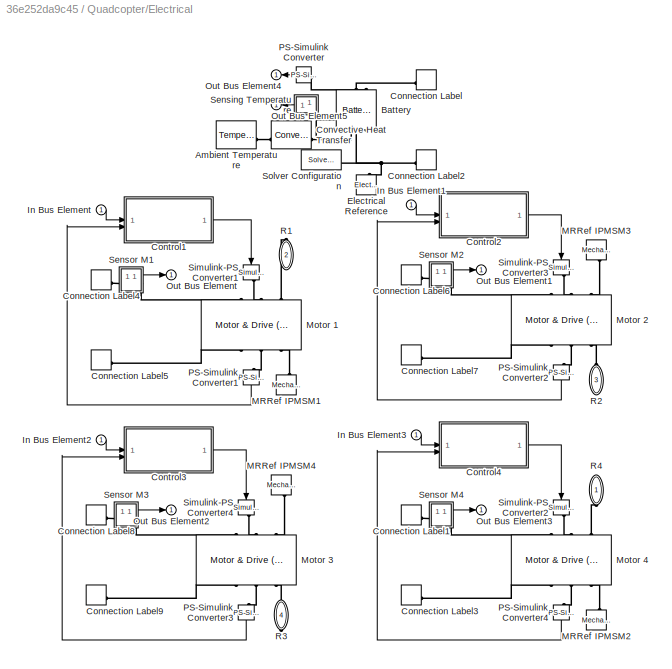
BLOCK [SubSystem] Quadcopter/Electrical
BLOCK [Reference] Quadcopter/Electrical/Ambient Temperature  REF=fl_lib/Thermal/Thermal Sources/Temperature Source
  SourceBlock = fl_lib/Thermal/Thermal Sources/Temperature Source
  SourceType = Temperature Source
BLOCK [Reference] Quadcopter/Electrical/Battery  REF=batteryecm_lib/Battery
  NameLocation = right
  SourceBlock = batteryecm_lib/Battery
  SourceType = Battery
BLOCK [ConnectionLabel] Quadcopter/Electrical/Connection Label
  Label = p
BLOCK [ConnectionLabel] Quadcopter/Electrical/Connection Label1
  Label = p
BLOCK [ConnectionLabel] Quadcopter/Electrical/Connection Label2
  Label = n
BLOCK [ConnectionLabel] Quadcopter/Electrical/Connection Label3
  Label = n
BLOCK [ConnectionLabel] Quadcopter/Electrical/Connection Label4
  Label = p
BLOCK [ConnectionLabel] Quadcopter/Electrical/Connection Label5
  Label = n
BLOCK [ConnectionLabel] Quadcopter/Electrical/Connection Label6
  Label = p
BLOCK [ConnectionLabel] Quadcopter/Electrical/Connection Label7
  Label = n
BLOCK [ConnectionLabel] Quadcopter/Electrical/Connection Label8
  Label = p
BLOCK [ConnectionLabel] Quadcopter/Electrical/Connection Label9
  Label = n
BLOCK [SubSystem] Quadcopter/Electrical/Control1
BLOCK [Sum] Quadcopter/Electrical/Control1/Add
  IconShape = rectangular
  Inputs = +-
BLOCK [Reference] Quadcopter/Electrical/Control1/Control  REF=slpidlib/PID Controller
  SourceBlock = slpidlib/PID Controller
  SourceType = PID 1dof
BLOCK [Mux] Quadcopter/Electrical/Control1/Mux
  DisplayOption = bar
  Inputs = 2
BLOCK [Scope] Quadcopter/Electrical/Control1/Scope
  Floating = off
  NumInputPorts = 3
  ScopeSpecificationString = Simulink.scopes.TimeScopeBlockCfg('CurrentConfiguration', extmgr.ConfigurationSet(extmgr.Configuration('Core','General UI',true),extmgr.Configuration('Core','Source UI',true),extmgr.Configuration('Sources','WiredSimulink',true,'DataLoggingVariableName','ScopeData3'),extmgr.Configuration('Visuals','Time Domain',true,'SerializedDisplays',{struct('MinYLimReal','-575.93509','MaxYLimReal','5183.41577',...<+2985ch>
BLOCK [TransferFcn] Quadcopter/Electrical/Control1/Transfer Fcn1
  Denominator = [f_spd 1]
BLOCK [Inport] Quadcopter/Electrical/Control1/meas
  Port = 2
BLOCK [Inport] Quadcopter/Electrical/Control1/ref
BLOCK [Outport] Quadcopter/Electrical/Control1/torque
BLOCK [SubSystem] Quadcopter/Electrical/Control2
BLOCK [Sum] Quadcopter/Electrical/Control2/Add
  IconShape = rectangular
  Inputs = +-
BLOCK [Reference] Quadcopter/Electrical/Control2/Control  REF=slpidlib/PID Controller
  SourceBlock = slpidlib/PID Controller
  SourceType = PID 1dof
BLOCK [Mux] Quadcopter/Electrical/Control2/Mux
  DisplayOption = bar
  Inputs = 2
BLOCK [Scope] Quadcopter/Electrical/Control2/Scope
  Floating = off
  NumInputPorts = 3
  ScopeSpecificationString = Simulink.scopes.TimeScopeBlockCfg('CurrentConfiguration', extmgr.ConfigurationSet(extmgr.Configuration('Core','General UI',true),extmgr.Configuration('Core','Source UI',true),extmgr.Configuration('Sources','WiredSimulink',true,'DataLoggingVariableName','ScopeData3'),extmgr.Configuration('Visuals','Time Domain',true,'SerializedDisplays',{struct('MinYLimReal','-51413.90485','MaxYLimReal','107953.943...<+2991ch>
BLOCK [TransferFcn] Quadcopter/Electrical/Control2/Transfer Fcn1
  Denominator = [f_spd 1]
BLOCK [Inport] Quadcopter/Electrical/Control2/meas
  Port = 2
BLOCK [Inport] Quadcopter/Electrical/Control2/ref
BLOCK [Outport] Quadcopter/Electrical/Control2/torque
BLOCK [SubSystem] Quadcopter/Electrical/Control3
BLOCK [Sum] Quadcopter/Electrical/Control3/Add
  IconShape = rectangular
  Inputs = +-
BLOCK [Reference] Quadcopter/Electrical/Control3/Control  REF=slpidlib/PID Controller
  SourceBlock = slpidlib/PID Controller
  SourceType = PID 1dof
BLOCK [Mux] Quadcopter/Electrical/Control3/Mux
  DisplayOption = bar
  Inputs = 2
BLOCK [Scope] Quadcopter/Electrical/Control3/Scope
  Floating = off
  NumInputPorts = 3
  ScopeSpecificationString = Simulink.scopes.TimeScopeBlockCfg('CurrentConfiguration', extmgr.ConfigurationSet(extmgr.Configuration('Core','General UI',true),extmgr.Configuration('Core','Source UI',true),extmgr.Configuration('Sources','WiredSimulink',true,'DataLoggingVariableName','ScopeData3'),extmgr.Configuration('Visuals','Time Domain',true,'SerializedDisplays',{struct('MinYLimReal','-734.86159','MaxYLimReal','6613.7543','...<+2979ch>
BLOCK [TransferFcn] Quadcopter/Electrical/Control3/Transfer Fcn1
  Denominator = [f_spd 1]
BLOCK [Inport] Quadcopter/Electrical/Control3/meas
  Port = 2
BLOCK [Inport] Quadcopter/Electrical/Control3/ref
BLOCK [Outport] Quadcopter/Electrical/Control3/torque
BLOCK [SubSystem] Quadcopter/Electrical/Control4
BLOCK [Sum] Quadcopter/Electrical/Control4/Add
  IconShape = rectangular
  Inputs = +-
BLOCK [Reference] Quadcopter/Electrical/Control4/Control  REF=slpidlib/PID Controller
  SourceBlock = slpidlib/PID Controller
  SourceType = PID 1dof
BLOCK [Mux] Quadcopter/Electrical/Control4/Mux
  DisplayOption = bar
  Inputs = 2
BLOCK [Scope] Quadcopter/Electrical/Control4/Scope
  Floating = off
  NumInputPorts = 3
  ScopeSpecificationString = Simulink.scopes.TimeScopeBlockCfg('CurrentConfiguration', extmgr.ConfigurationSet(extmgr.Configuration('Core','General UI',true),extmgr.Configuration('Core','Source UI',true),extmgr.Configuration('Sources','WiredSimulink',true,'DataLoggingVariableName','ScopeData3'),extmgr.Configuration('Visuals','Time Domain',true,'SerializedDisplays',{struct('MinYLimReal','3391.57745','MaxYLimReal','7073.87438',...<+2985ch>
BLOCK [TransferFcn] Quadcopter/Electrical/Control4/Transfer Fcn1
  Denominator = [f_spd 1]
BLOCK [Inport] Quadcopter/Electrical/Control4/meas
  Port = 2
BLOCK [Inport] Quadcopter/Electrical/Control4/ref
BLOCK [Outport] Quadcopter/Electrical/Control4/torque
BLOCK [Reference] Quadcopter/Electrical/Convective Heat Transfer  REF=fl_lib/Thermal/Thermal Elements/Convective Heat
Transfer
  SourceBlock = fl_lib/Thermal/Thermal Elements/Convective Heat\nTransfer
  SourceType = Convective Heat\nTransfer
BLOCK [Reference] Quadcopter/Electrical/Electrical Reference  REF=fl_lib/Electrical/Electrical Elements/Electrical Reference
  NameLocation = right
  SourceBlock = fl_lib/Electrical/Electrical Elements/Electrical Reference
  SourceType = Electrical Reference
BLOCK [Inport] Quadcopter/Electrical/In Bus Element
BLOCK [Inport] Quadcopter/Electrical/In Bus Element1
BLOCK [Inport] Quadcopter/Electrical/In Bus Element2
BLOCK [Inport] Quadcopter/Electrical/In Bus Element3
BLOCK [Reference] Quadcopter/Electrical/MRRef IPMSM1  REF=fl_lib/Mechanical/Rotational Elements/Mechanical
Rotational Reference
  NameLocation = right
  SourceBlock = fl_lib/Mechanical/Rotational Elements/Mechanical\nRotational Reference
  SourceType = Mechanical\nRotational Reference
BLOCK [Reference] Quadcopter/Electrical/MRRef IPMSM2  REF=fl_lib/Mechanical/Rotational Elements/Mechanical
Rotational Reference
  NameLocation = right
  SourceBlock = fl_lib/Mechanical/Rotational Elements/Mechanical\nRotational Reference
  SourceType = Mechanical\nRotational Reference
BLOCK [Reference] Quadcopter/Electrical/MRRef IPMSM3  REF=fl_lib/Mechanical/Rotational Elements/Mechanical
Rotational Reference
  NameLocation = left
  SourceBlock = fl_lib/Mechanical/Rotational Elements/Mechanical\nRotational Reference
  SourceType = Mechanical\nRotational Reference
BLOCK [Reference] Quadcopter/Electrical/MRRef IPMSM4  REF=fl_lib/Mechanical/Rotational Elements/Mechanical
Rotational Reference
  NameLocation = left
  SourceBlock = fl_lib/Mechanical/Rotational Elements/Mechanical\nRotational Reference
  SourceType = Mechanical\nRotational Reference
BLOCK [Reference] Quadcopter/Electrical/Motor 1  REF=ee_lib/Electromechanical/Motor & Drive
(System Level)
  NameLocation = left
  SourceBlock = ee_lib/Electromechanical/Motor & Drive\n(System Level)
  SourceType = Motor & Drive\n(System Level)
BLOCK [Reference] Quadcopter/Electrical/Motor 2  REF=ee_lib/Electromechanical/Motor & Drive
(System Level)
  NameLocation = left
  SourceBlock = ee_lib/Electromechanical/Motor & Drive\n(System Level)
  SourceType = Motor & Drive\n(System Level)
BLOCK [Reference] Quadcopter/Electrical/Motor 3  REF=ee_lib/Electromechanical/Motor & Drive
(System Level)
  NameLocation = left
  SourceBlock = ee_lib/Electromechanical/Motor & Drive\n(System Level)
  SourceType = Motor & Drive\n(System Level)
BLOCK [Reference] Quadcopter/Electrical/Motor 4  REF=ee_lib/Electromechanical/Motor & Drive
(System Level)
  NameLocation = left
  SourceBlock = ee_lib/Electromechanical/Motor & Drive\n(System Level)
  SourceType = Motor & Drive\n(System Level)
BLOCK [Outport] Quadcopter/Electrical/Out Bus Element
BLOCK [Outport] Quadcopter/Electrical/Out Bus Element1
BLOCK [Outport] Quadcopter/Electrical/Out Bus Element2
BLOCK [Outport] Quadcopter/Electrical/Out Bus Element3
BLOCK [Outport] Quadcopter/Electrical/Out Bus Element4
BLOCK [Outport] Quadcopter/Electrical/Out Bus Element5
BLOCK [Reference] Quadcopter/Electrical/PS-Simulink Converter  REF=nesl_utility/PS-Simulink
Converter
  SourceBlock = nesl_utility/PS-Simulink\nConverter
  SourceType = PS-Simulink\nConverter
BLOCK [Reference] Quadcopter/Electrical/PS-Simulink Converter1  REF=nesl_utility/PS-Simulink
Converter
  NameLocation = left
  SourceBlock = nesl_utility/PS-Simulink\nConverter
  SourceType = PS-Simulink\nConverter
BLOCK [Reference] Quadcopter/Electrical/PS-Simulink Converter2  REF=nesl_utility/PS-Simulink
Converter
  NameLocation = left
  SourceBlock = nesl_utility/PS-Simulink\nConverter
  SourceType = PS-Simulink\nConverter
BLOCK [Reference] Quadcopter/Electrical/PS-Simulink Converter3  REF=nesl_utility/PS-Simulink
Converter
  NameLocation = left
  SourceBlock = nesl_utility/PS-Simulink\nConverter
  SourceType = PS-Simulink\nConverter
BLOCK [Reference] Quadcopter/Electrical/PS-Simulink Converter4  REF=nesl_utility/PS-Simulink
Converter
  NameLocation = left
  SourceBlock = nesl_utility/PS-Simulink\nConverter
  SourceType = PS-Simulink\nConverter
BLOCK [PMIOPort] Quadcopter/Electrical/R1
  NameLocation = right
  Port = 2
  Side = Right
BLOCK [PMIOPort] Quadcopter/Electrical/R2
  NameLocation = left
  Port = 3
  Side = Left
BLOCK [PMIOPort] Quadcopter/Electrical/R3
  NameLocation = left
  Port = 4
  Side = Right
BLOCK [PMIOPort] Quadcopter/Electrical/R4
  NameLocation = right
  Side = Left
BLOCK [SubSystem] Quadcopter/Electrical/Sensing Temperature
  NameLocation = left
BLOCK [PMIOPort] Quadcopter/Electrical/Sensing Temperature/A
  Side = Left
BLOCK [Reference] Quadcopter/Electrical/Sensing Temperature/PS-Simulink Converter  REF=nesl_utility/PS-Simulink
Converter
  SourceBlock = nesl_utility/PS-Simulink\nConverter
  SourceType = PS-Simulink\nConverter
BLOCK [Outport] Quadcopter/Electrical/Sensing Temperature/T
BLOCK [Reference] Quadcopter/Electrical/Sensing Temperature/Temperature Sensor  REF=fl_lib/Thermal/Thermal Sensors/Temperature Sensor
  SourceBlock = fl_lib/Thermal/Thermal Sensors/Temperature Sensor
  SourceType = Temperature Sensor
BLOCK [Reference] Quadcopter/Electrical/Sensing Temperature/Thermal Reference  REF=fl_lib/Thermal/Thermal Elements/Thermal Reference
  SourceBlock = fl_lib/Thermal/Thermal Elements/Thermal Reference
  SourceType = Thermal Reference
BLOCK [SubSystem] Quadcopter/Electrical/Sensor M1
BLOCK [PMIOPort] Quadcopter/Electrical/Sensor M1/+
  Side = Left
BLOCK [PMIOPort] Quadcopter/Electrical/Sensor M1/-
  Port = 2
  Side = Right
BLOCK [Reference] Quadcopter/Electrical/Sensor M1/Current Sensor  REF=fl_lib/Electrical/Electrical Sensors/Current Sensor
  SourceBlock = fl_lib/Electrical/Electrical Sensors/Current Sensor
  SourceType = Current Sensor
BLOCK [Reference] Quadcopter/Electrical/Sensor M1/PS-Simulink Converter3  REF=nesl_utility/PS-Simulink
Converter
  SourceBlock = nesl_utility/PS-Simulink\nConverter
  SourceType = PS-Simulink\nConverter
BLOCK [Outport] Quadcopter/Electrical/Sensor M1/i
BLOCK [SubSystem] Quadcopter/Electrical/Sensor M2
BLOCK [PMIOPort] Quadcopter/Electrical/Sensor M2/+
  Side = Left
BLOCK [PMIOPort] Quadcopter/Electrical/Sensor M2/-
  Port = 2
  Side = Right
BLOCK [Reference] Quadcopter/Electrical/Sensor M2/Current Sensor  REF=fl_lib/Electrical/Electrical Sensors/Current Sensor
  SourceBlock = fl_lib/Electrical/Electrical Sensors/Current Sensor
  SourceType = Current Sensor
BLOCK [Reference] Quadcopter/Electrical/Sensor M2/PS-Simulink Converter3  REF=nesl_utility/PS-Simulink
Converter
  SourceBlock = nesl_utility/PS-Simulink\nConverter
  SourceType = PS-Simulink\nConverter
BLOCK [Outport] Quadcopter/Electrical/Sensor M2/i
BLOCK [SubSystem] Quadcopter/Electrical/Sensor M3
BLOCK [PMIOPort] Quadcopter/Electrical/Sensor M3/+
  Side = Left
BLOCK [PMIOPort] Quadcopter/Electrical/Sensor M3/-
  Port = 2
  Side = Right
BLOCK [Reference] Quadcopter/Electrical/Sensor M3/Current Sensor  REF=fl_lib/Electrical/Electrical Sensors/Current Sensor
  SourceBlock = fl_lib/Electrical/Electrical Sensors/Current Sensor
  SourceType = Current Sensor
BLOCK [Reference] Quadcopter/Electrical/Sensor M3/PS-Simulink Converter3  REF=nesl_utility/PS-Simulink
Converter
  SourceBlock = nesl_utility/PS-Simulink\nConverter
  SourceType = PS-Simulink\nConverter
BLOCK [Outport] Quadcopter/Electrical/Sensor M3/i
BLOCK [SubSystem] Quadcopter/Electrical/Sensor M4
BLOCK [PMIOPort] Quadcopter/Electrical/Sensor M4/+
  Side = Left
BLOCK [PMIOPort] Quadcopter/Electrical/Sensor M4/-
  Port = 2
  Side = Right
BLOCK [Reference] Quadcopter/Electrical/Sensor M4/Current Sensor  REF=fl_lib/Electrical/Electrical Sensors/Current Sensor
  SourceBlock = fl_lib/Electrical/Electrical Sensors/Current Sensor
  SourceType = Current Sensor
BLOCK [Reference] Quadcopter/Electrical/Sensor M4/PS-Simulink Converter3  REF=nesl_utility/PS-Simulink
Converter
  SourceBlock = nesl_utility/PS-Simulink\nConverter
  SourceType = PS-Simulink\nConverter
BLOCK [Outport] Quadcopter/Electrical/Sensor M4/i
BLOCK [Reference] Quadcopter/Electrical/Simulink-PS Converter1  REF=nesl_utility/Simulink-PS
Converter
  NameLocation = left
  SourceBlock = nesl_utility/Simulink-PS\nConverter
  SourceType = Simulink-PS\nConverter
BLOCK [Reference] Quadcopter/Electrical/Simulink-PS Converter2  REF=nesl_utility/Simulink-PS
Converter
  NameLocation = left
  SourceBlock = nesl_utility/Simulink-PS\nConverter
  SourceType = Simulink-PS\nConverter
BLOCK [Reference] Quadcopter/Electrical/Simulink-PS Converter3  REF=nesl_utility/Simulink-PS
Converter
  NameLocation = left
  SourceBlock = nesl_utility/Simulink-PS\nConverter
  SourceType = Simulink-PS\nConverter
BLOCK [Reference] Quadcopter/Electrical/Simulink-PS Converter4  REF=nesl_utility/Simulink-PS
Converter
  NameLocation = left
  SourceBlock = nesl_utility/Simulink-PS\nConverter
  SourceType = Simulink-PS\nConverter
BLOCK [Reference] Quadcopter/Electrical/Solver Configuration  REF=nesl_utility/Solver
Configuration
  SourceBlock = nesl_utility/Solver\nConfiguration
  SourceType = Solver\nConfiguration
BLOCK [Reference] Quadcopter/Gravity  REF=sm_lib/Utilities/Mechanism
Configuration
  SourceBlock = sm_lib/Utilities/Mechanism\nConfiguration
  SourceType = Mechanism\nConfiguration
BLOCK [SubSystem] Quadcopter/Ground
BLOCK [PMIOPort] Quadcopter/Ground/G
  NameLocation = left
  Port = 2
  Side = Left
BLOCK [SubSystem] Quadcopter/Ground/Ground
BLOCK [Reference] Quadcopter/Ground/Ground/Ground  REF=sm_lib/Body Elements/Brick Solid
  SourceBlock = sm_lib/Body Elements/Brick Solid
  SourceType = Brick Solid
BLOCK [PMIOPort] Quadcopter/Ground/Ground/Lp
  Side = Right
BLOCK [Reference] Quadcopter/Ground/Ground/Transform Ground Center  REF=sm_lib/Frames and
Transforms/Rigid
Transform
  NameLocation = right
  SourceBlock = sm_lib/Frames and\nTransforms/Rigid\nTransform
  SourceType = Rigid\nTransform
BLOCK [PMIOPort] Quadcopter/Ground/Ground/W
  Port = 2
  Side = Left
BLOCK [Reference] Quadcopter/Ground/Infinite Plane  REF=sm_lib/Curves and Surfaces/Infinite Plane
  SourceBlock = sm_lib/Curves and Surfaces/Infinite Plane
  SourceType = Infinite Plane
BLOCK [Reference] Quadcopter/Ground/Launch Insignia  REF=sm_lib/Body Elements/Extruded Solid
  SourceBlock = sm_lib/Body Elements/Extruded Solid
  SourceType = Extruded Solid
BLOCK [Reference] Quadcopter/Ground/Launch Ring  REF=sm_lib/Body Elements/Revolved Solid
  SourceBlock = sm_lib/Body Elements/Revolved Solid
  SourceType = Revolved Solid
BLOCK [Reference] Quadcopter/Ground/Target Inner Ring  REF=sm_lib/Body Elements/Revolved Solid
  SourceBlock = sm_lib/Body Elements/Revolved Solid
  SourceType = Revolved Solid
BLOCK [Reference] Quadcopter/Ground/Target Middle Ring  REF=sm_lib/Body Elements/Revolved Solid
  SourceBlock = sm_lib/Body Elements/Revolved Solid
  SourceType = Revolved Solid
BLOCK [Reference] Quadcopter/Ground/Target Outer Ring  REF=sm_lib/Body Elements/Revolved Solid
  SourceBlock = sm_lib/Body Elements/Revolved Solid
  SourceType = Revolved Solid
BLOCK [Reference] Quadcopter/Ground/Transform Launch  REF=sm_lib/Frames and
Transforms/Rigid
Transform
  SourceBlock = sm_lib/Frames and\nTransforms/Rigid\nTransform
  SourceType = Rigid\nTransform
BLOCK [Reference] Quadcopter/Ground/Transform Target  REF=sm_lib/Frames and
Transforms/Rigid
Transform
  SourceBlock = sm_lib/Frames and\nTransforms/Rigid\nTransform
  SourceType = Rigid\nTransform
BLOCK [PMIOPort] Quadcopter/Ground/W
  NameLocation = right
  Side = Right
BLOCK [Inport] Quadcopter/In Bus Element1
  Port = 2
BLOCK [Inport] Quadcopter/In Bus Element2
  Port = 2
BLOCK [Inport] Quadcopter/In Bus Element3
BLOCK [SubSystem] Quadcopter/Load
BLOCK [Reference] Quadcopter/Load/Contact Force Ground  REF=sm_lib/Forces and
Torques/Spatial
Contact Force
  NameLocation = left
  SourceBlock = sm_lib/Forces and\nTorques/Spatial\nContact Force
  SourceType = Spatial\nContact Force
BLOCK [Reference] Quadcopter/Load/Disengage Logic  REF=quadcopter_library/Disengage Logic  (lib defined in slx_56214d765e25, slx_704f8fc3f527, +4 more)
  SourceBlock = quadcopter_library/Disengage Logic
BLOCK [PMIOPort] Quadcopter/Load/F
  NameLocation = right
  Side = Left
BLOCK [PMIOPort] Quadcopter/Load/G
  NameLocation = right
  Port = 2
  Side = Right
BLOCK [Reference] Quadcopter/Load/Package  REF=quadcopter_library/Package  (lib defined in slx_56214d765e25, slx_704f8fc3f527, +4 more)
  NameLocation = right
  SourceBlock = quadcopter_library/Package
BLOCK [Reference] Quadcopter/Load/Weld Joint  REF=sm_lib/Joints/Weld Joint
  NameLocation = right
  SourceBlock = sm_lib/Joints/Weld Joint
  SourceType = Weld Joint
BLOCK [Outport] Quadcopter/Load/m
BLOCK [Outport] Quadcopter/Out Bus Element
  NameLocation = top
BLOCK [Outport] Quadcopter/Out Bus Element1
BLOCK [Outport] Quadcopter/Out Bus Element2
  NameLocation = top
BLOCK [Outport] Quadcopter/Out Bus Element3
  NameLocation = top
BLOCK [Outport] Quadcopter/Out Bus Element4
  NameLocation = top
BLOCK [Outport] Quadcopter/Out Bus Element5
  NameLocation = top
BLOCK [Outport] Quadcopter/Out Bus Element6
  NameLocation = top
BLOCK [Outport] Quadcopter/Out Bus Element7
BLOCK [Reference] Quadcopter/Propeller 1  REF=quadcopter_library/Propeller  (lib defined in slx_56214d765e25, slx_704f8fc3f527, +4 more)
  SourceBlock = quadcopter_library/Propeller
BLOCK [Reference] Quadcopter/Propeller 2  REF=quadcopter_library/Propeller  (lib defined in slx_56214d765e25, slx_704f8fc3f527, +4 more)
  SourceBlock = quadcopter_library/Propeller
BLOCK [Reference] Quadcopter/Propeller 3  REF=quadcopter_library/Propeller  (lib defined in slx_56214d765e25, slx_704f8fc3f527, +4 more)
  SourceBlock = quadcopter_library/Propeller
BLOCK [Reference] Quadcopter/Propeller 4  REF=quadcopter_library/Propeller  (lib defined in slx_56214d765e25, slx_704f8fc3f527, +4 more)
  SourceBlock = quadcopter_library/Propeller
BLOCK [SubSystem] Quadcopter/Wind and Drag
  NameLocation = top
BLOCK [SubSystem] Quadcopter/Wind and Drag/Aerodynamic Drag
BLOCK [SubSystem] Quadcopter/Wind and Drag/Aerodynamic Drag/Body to World
BLOCK [Constant] Quadcopter/Wind and Drag/Aerodynamic Drag/Body to World/Constant1
  Value = area_side
BLOCK [Constant] Quadcopter/Wind and Drag/Aerodynamic Drag/Body to World/Constant2
  Value = drag_side
BLOCK [Constant] Quadcopter/Wind and Drag/Aerodynamic Drag/Body to World/Constant3
  Value = drag_front
BLOCK [Constant] Quadcopter/Wind and Drag/Aerodynamic Drag/Body to World/Constant5
  Value = area_front
BLOCK [Trigonometry] Quadcopter/Wind and Drag/Aerodynamic Drag/Body to World/Cos2
  Operator = cos
BLOCK [Gain] Quadcopter/Wind and Drag/Aerodynamic Drag/Body to World/Gain1
  Gain = 2
BLOCK [Gain] Quadcopter/Wind and Drag/Aerodynamic Drag/Body to World/Gain2
  Gain = 0.5
BLOCK [Gain] Quadcopter/Wind and Drag/Aerodynamic Drag/Body to World/Gain3
  Gain = 0.5
BLOCK [Gain] Quadcopter/Wind and Drag/Aerodynamic Drag/Body to World/Gain4
  Gain = 0.5
BLOCK [Gain] Quadcopter/Wind and Drag/Aerodynamic Drag/Body to World/Gain5
  Gain = 0.5
BLOCK [Product] Quadcopter/Wind and Drag/Aerodynamic Drag/Body to World/Product1
BLOCK [Product] Quadcopter/Wind and Drag/Aerodynamic Drag/Body to World/Product2
BLOCK [Sum] Quadcopter/Wind and Drag/Aerodynamic Drag/Body to World/Subtract1
  IconShape = rectangular
  Inputs = +-
BLOCK [Sum] Quadcopter/Wind and Drag/Aerodynamic Drag/Body to World/Subtract2
  IconShape = rectangular
  Inputs = +-
BLOCK [Sum] Quadcopter/Wind and Drag/Aerodynamic Drag/Body to World/Sum
  Inputs = |++
BLOCK [Sum] Quadcopter/Wind and Drag/Aerodynamic Drag/Body to World/Sum1
  Inputs = |++
BLOCK [Sum] Quadcopter/Wind and Drag/Aerodynamic Drag/Body to World/Sum2
  Inputs = |++
BLOCK [Sum] Quadcopter/Wind and Drag/Aerodynamic Drag/Body to World/Sum3
  Inputs = |+-
BLOCK [Sum] Quadcopter/Wind and Drag/Aerodynamic Drag/Body to World/Sum4
  Inputs = |++
BLOCK [Sum] Quadcopter/Wind and Drag/Aerodynamic Drag/Body to World/Sum5
  Inputs = |+-
BLOCK [Outport] Quadcopter/Wind and Drag/Aerodynamic Drag/Body to World/areaX
BLOCK [Outport] Quadcopter/Wind and Drag/Aerodynamic Drag/Body to World/areaY
  Port = 3
BLOCK [Outport] Quadcopter/Wind and Drag/Aerodynamic Drag/Body to World/dragX
  Port = 2
BLOCK [Outport] Quadcopter/Wind and Drag/Aerodynamic Drag/Body to World/dragY
  Port = 4
BLOCK [Inport] Quadcopter/Wind and Drag/Aerodynamic Drag/Body to World/yaw
BLOCK [Mux] Quadcopter/Wind and Drag/Aerodynamic Drag/Mux4
  DisplayOption = bar
  Inputs = 3
BLOCK [Mux] Quadcopter/Wind and Drag/Aerodynamic Drag/Mux5
  DisplayOption = bar
  Inputs = 3
BLOCK [SubSystem] Quadcopter/Wind and Drag/Aerodynamic Drag/drag force X
BLOCK [Inport] Quadcopter/Wind and Drag/Aerodynamic Drag/drag force X/Cd
  Port = 2
BLOCK [Constant] Quadcopter/Wind and Drag/Aerodynamic Drag/drag force X/Constant
  Value = rho_air/2
BLOCK [Gain] Quadcopter/Wind and Drag/Aerodynamic Drag/drag force X/Gain
  Gain = -1
BLOCK [Product] Quadcopter/Wind and Drag/Aerodynamic Drag/drag force X/Product
  Inputs = 5
BLOCK [Signum] Quadcopter/Wind and Drag/Aerodynamic Drag/drag force X/Sign
  NameLocation = top
  ZeroCross = off
BLOCK [Math] Quadcopter/Wind and Drag/Aerodynamic Drag/drag force X/Square
  Operator = square
BLOCK [Inport] Quadcopter/Wind and Drag/Aerodynamic Drag/drag force X/area
BLOCK [Outport] Quadcopter/Wind and Drag/Aerodynamic Drag/drag force X/f
BLOCK [Inport] Quadcopter/Wind and Drag/Aerodynamic Drag/drag force X/v
  Port = 3
BLOCK [SubSystem] Quadcopter/Wind and Drag/Aerodynamic Drag/drag force Y
BLOCK [Inport] Quadcopter/Wind and Drag/Aerodynamic Drag/drag force Y/Cd
  Port = 2
BLOCK [Constant] Quadcopter/Wind and Drag/Aerodynamic Drag/drag force Y/Constant
  Value = rho_air/2
BLOCK [Gain] Quadcopter/Wind and Drag/Aerodynamic Drag/drag force Y/Gain
  Gain = -1
BLOCK [Product] Quadcopter/Wind and Drag/Aerodynamic Drag/drag force Y/Product
  Inputs = 5
BLOCK [Signum] Quadcopter/Wind and Drag/Aerodynamic Drag/drag force Y/Sign
  NameLocation = top
  ZeroCross = off
BLOCK [Math] Quadcopter/Wind and Drag/Aerodynamic Drag/drag force Y/Square
  Operator = square
BLOCK [Inport] Quadcopter/Wind and Drag/Aerodynamic Drag/drag force Y/area
BLOCK [Outport] Quadcopter/Wind and Drag/Aerodynamic Drag/drag force Y/f
BLOCK [Inport] Quadcopter/Wind and Drag/Aerodynamic Drag/drag force Y/v
  Port = 3
BLOCK [SubSystem] Quadcopter/Wind and Drag/Aerodynamic Drag/drag force Z
BLOCK [Constant] Quadcopter/Wind and Drag/Aerodynamic Drag/drag force Z/Constant
  Value = rho_air/2
BLOCK [Constant] Quadcopter/Wind and Drag/Aerodynamic Drag/drag force Z/Constant1
  Value = area_values.XY
BLOCK [Constant] Quadcopter/Wind and Drag/Aerodynamic Drag/drag force Z/Constant2
  Value = drag_coeff.Cd_Z
BLOCK [Gain] Quadcopter/Wind and Drag/Aerodynamic Drag/drag force Z/Gain
  Gain = -1
BLOCK [Product] Quadcopter/Wind and Drag/Aerodynamic Drag/drag force Z/Product
  Inputs = 5
BLOCK [Signum] Quadcopter/Wind and Drag/Aerodynamic Drag/drag force Z/Sign
  NameLocation = top
  ZeroCross = off
BLOCK [Math] Quadcopter/Wind and Drag/Aerodynamic Drag/drag force Z/Square
  Operator = square
BLOCK [Outport] Quadcopter/Wind and Drag/Aerodynamic Drag/drag force Z/f
BLOCK [Inport] Quadcopter/Wind and Drag/Aerodynamic Drag/drag force Z/vz
BLOCK [SubSystem] Quadcopter/Wind and Drag/Aerodynamic Drag/drag moment pitch
BLOCK [Constant] Quadcopter/Wind and Drag/Aerodynamic Drag/drag moment pitch/Constant
  Value = rho_air/2
BLOCK [Constant] Quadcopter/Wind and Drag/Aerodynamic Drag/drag moment pitch/Constant1
  Value = area_values.Pitch
BLOCK [Constant] Quadcopter/Wind and Drag/Aerodynamic Drag/drag moment pitch/Constant2
  Value = drag_coeff.Pitch
BLOCK [Gain] Quadcopter/Wind and Drag/Aerodynamic Drag/drag moment pitch/Gain
  Gain = -1
BLOCK [Product] Quadcopter/Wind and Drag/Aerodynamic Drag/drag moment pitch/Product
  Inputs = 5
BLOCK [Signum] Quadcopter/Wind and Drag/Aerodynamic Drag/drag moment pitch/Sign
  NameLocation = top
  ZeroCross = off
BLOCK [Math] Quadcopter/Wind and Drag/Aerodynamic Drag/drag moment pitch/Square
  Operator = square
BLOCK [Outport] Quadcopter/Wind and Drag/Aerodynamic Drag/drag moment pitch/f
BLOCK [Inport] Quadcopter/Wind and Drag/Aerodynamic Drag/drag moment pitch/v
BLOCK [SubSystem] Quadcopter/Wind and Drag/Aerodynamic Drag/drag moment roll
BLOCK [Constant] Quadcopter/Wind and Drag/Aerodynamic Drag/drag moment roll/Constant
  Value = rho_air/2
BLOCK [Constant] Quadcopter/Wind and Drag/Aerodynamic Drag/drag moment roll/Constant1
  Value = area_values.Roll
BLOCK [Constant] Quadcopter/Wind and Drag/Aerodynamic Drag/drag moment roll/Constant2
  Value = drag_coeff.Roll
BLOCK [Gain] Quadcopter/Wind and Drag/Aerodynamic Drag/drag moment roll/Gain
  Gain = -1
BLOCK [Product] Quadcopter/Wind and Drag/Aerodynamic Drag/drag moment roll/Product
  Inputs = 5
BLOCK [Signum] Quadcopter/Wind and Drag/Aerodynamic Drag/drag moment roll/Sign
  NameLocation = top
  ZeroCross = off
BLOCK [Math] Quadcopter/Wind and Drag/Aerodynamic Drag/drag moment roll/Square
  Operator = square
BLOCK [Outport] Quadcopter/Wind and Drag/Aerodynamic Drag/drag moment roll/f
BLOCK [Inport] Quadcopter/Wind and Drag/Aerodynamic Drag/drag moment roll/v
BLOCK [SubSystem] Quadcopter/Wind and Drag/Aerodynamic Drag/drag moment yaw
BLOCK [Constant] Quadcopter/Wind and Drag/Aerodynamic Drag/drag moment yaw/Constant
  Value = rho_air/2
BLOCK [Constant] Quadcopter/Wind and Drag/Aerodynamic Drag/drag moment yaw/Constant1
  Value = area_values.Yaw
BLOCK [Constant] Quadcopter/Wind and Drag/Aerodynamic Drag/drag moment yaw/Constant2
  Value = drag_coeff.Yaw
BLOCK [Gain] Quadcopter/Wind and Drag/Aerodynamic Drag/drag moment yaw/Gain
  Gain = -1
BLOCK [Product] Quadcopter/Wind and Drag/Aerodynamic Drag/drag moment yaw/Product
  Inputs = 5
BLOCK [Signum] Quadcopter/Wind and Drag/Aerodynamic Drag/drag moment yaw/Sign
  NameLocation = top
  ZeroCross = off
BLOCK [Math] Quadcopter/Wind and Drag/Aerodynamic Drag/drag moment yaw/Square
  Operator = square
BLOCK [Outport] Quadcopter/Wind and Drag/Aerodynamic Drag/drag moment yaw/f
BLOCK [Inport] Quadcopter/Wind and Drag/Aerodynamic Drag/drag moment yaw/v
BLOCK [Outport] Quadcopter/Wind and Drag/Aerodynamic Drag/f
BLOCK [Inport] Quadcopter/Wind and Drag/Aerodynamic Drag/nPitch
  Port = 5
BLOCK [Inport] Quadcopter/Wind and Drag/Aerodynamic Drag/nRoll
  Port = 4
BLOCK [Inport] Quadcopter/Wind and Drag/Aerodynamic Drag/nYaw
  Port = 6
BLOCK [Outport] Quadcopter/Wind and Drag/Aerodynamic Drag/t
  Port = 2
BLOCK [Inport] Quadcopter/Wind and Drag/Aerodynamic Drag/vxRel
BLOCK [Inport] Quadcopter/Wind and Drag/Aerodynamic Drag/vyRel
  Port = 2
BLOCK [Inport] Quadcopter/Wind and Drag/Aerodynamic Drag/vzRel
  Port = 3
BLOCK [Inport] Quadcopter/Wind and Drag/Aerodynamic Drag/yaw
  Port = 7
BLOCK [Reference] Quadcopter/Wind and Drag/Compare To Zero  REF=simulink/Logic and Bit
Operations/Compare
To Zero
  SourceBlock = simulink/Logic and Bit\nOperations/Compare\nTo Zero
  SourceType = Compare To Zero
BLOCK [Reference] Quadcopter/Wind and Drag/Compare To Zero1  REF=simulink/Logic and Bit
Operations/Compare
To Zero
  SourceBlock = simulink/Logic and Bit\nOperations/Compare\nTo Zero
  SourceType = Compare To Zero
BLOCK [Reference] Quadcopter/Wind and Drag/External Force No Load  REF=sm_lib/Forces and
Torques/External Force
and Torque
  SourceBlock = sm_lib/Forces and\nTorques/External Force\nand Torque
  SourceType = External Force\nand Torque
BLOCK [Reference] Quadcopter/Wind and Drag/External Force With Load  REF=sm_lib/Forces and
Torques/External Force
and Torque
  SourceBlock = sm_lib/Forces and\nTorques/External Force\nand Torque
  SourceType = External Force\nand Torque
BLOCK [Inport] Quadcopter/Wind and Drag/In Bus Element
  Port = 2
BLOCK [Inport] Quadcopter/Wind and Drag/In Bus Element1
  Port = 3
BLOCK [Inport] Quadcopter/Wind and Drag/In Bus Element2
  Port = 3
BLOCK [Inport] Quadcopter/Wind and Drag/In Bus Element3
  Port = 3
BLOCK [Inport] Quadcopter/Wind and Drag/In Bus Element4
  Port = 3
BLOCK [Inport] Quadcopter/Wind and Drag/In Bus Element5
  Port = 3
BLOCK [Inport] Quadcopter/Wind and Drag/In Bus Element6
  Port = 3
BLOCK [Inport] Quadcopter/Wind and Drag/In Bus Element7
  Port = 3
BLOCK [Inport] Quadcopter/Wind and Drag/In Bus Element8
BLOCK [Inport] Quadcopter/Wind and Drag/In Bus Element9
BLOCK [Product] Quadcopter/Wind and Drag/Product
BLOCK [Product] Quadcopter/Wind and Drag/Product1
BLOCK [Product] Quadcopter/Wind and Drag/Product2
BLOCK [Product] Quadcopter/Wind and Drag/Product3
BLOCK [PMIOPort] Quadcopter/Wind and Drag/Ref
  Side = Right
BLOCK [Reference] Quadcopter/Wind and Drag/Simulink-PS Converter  REF=nesl_utility/Simulink-PS
Converter
  SourceBlock = nesl_utility/Simulink-PS\nConverter
  SourceType = Simulink-PS\nConverter
BLOCK [Reference] Quadcopter/Wind and Drag/Simulink-PS Converter1  REF=nesl_utility/Simulink-PS
Converter
  SourceBlock = nesl_utility/Simulink-PS\nConverter
  SourceType = Simulink-PS\nConverter
BLOCK [Reference] Quadcopter/Wind and Drag/Simulink-PS Converter2  REF=nesl_utility/Simulink-PS
Converter
  SourceBlock = nesl_utility/Simulink-PS\nConverter
  SourceType = Simulink-PS\nConverter
BLOCK [Reference] Quadcopter/Wind and Drag/Simulink-PS Converter3  REF=nesl_utility/Simulink-PS
Converter
  SourceBlock = nesl_utility/Simulink-PS\nConverter
  SourceType = Simulink-PS\nConverter
BLOCK [Sum] Quadcopter/Wind and Drag/Subtract
  IconShape = rectangular
  Inputs = +-
BLOCK [Sum] Quadcopter/Wind and Drag/Subtract1
  IconShape = rectangular
  Inputs = +-
BLOCK [Reference] Quadcopter/Wind and Drag/Transform Center of Pressure No Load  REF=sm_lib/Frames and
Transforms/Rigid
Transform
  NameLocation = right
  SourceBlock = sm_lib/Frames and\nTransforms/Rigid\nTransform
  SourceType = Rigid\nTransform
BLOCK [Reference] Quadcopter/Wind and Drag/Transform Center of Pressure With Load  REF=sm_lib/Frames and
Transforms/Rigid
Transform
  NameLocation = right
  SourceBlock = sm_lib/Frames and\nTransforms/Rigid\nTransform
  SourceType = Rigid\nTransform
BLOCK [Reference] Quadcopter/World Frame  REF=sm_lib/Frames and
Transforms/World Frame
  SourceBlock = sm_lib/Frames and\nTransforms/World Frame
  SourceType = World Frame
BLOCK [Scope] Scope
  Floating = off
  IOType = viewer
  NumInputPorts = 1
  ScopeSpecificationString = Simulink.scopes.TimeScopeBlockCfg('CurrentConfiguration', extmgr.ConfigurationSet(extmgr.Configuration('Core','General UI',true),extmgr.Configuration('Core','Source UI',true),extmgr.Configuration('Sources','WiredSimulink',true,'DataLoggingVariableName','ScopeData1'),extmgr.Configuration('Visuals','Time Domain',true,'SerializedDisplays',{struct('MinYLimReal','-1.00000','MaxYLimReal','1.00000','YLab...<+1483ch>
BLOCK [SubSystem] Sensors
BLOCK [Bias] Sensors/Bias
  Bias = 1
  SaturateOnIntegerOverflow = off
BLOCK [BusCreator] Sensors/Bus Creator
  DisplayOption = bar
  InheritFromInputs = on
  Inputs = 3
BLOCK [BusCreator] Sensors/Bus Creator1
  DisplayOption = bar
  InheritFromInputs = on
  Inputs = 3
BLOCK [BusCreator] Sensors/Bus Creator2
  DisplayOption = bar
  InheritFromInputs = on
  Inputs = 4
BLOCK [BusCreator] Sensors/Bus Creator3
  DisplayOption = bar
  InheritFromInputs = on
  Inputs = 3
BLOCK [BusSelector] Sensors/Bus Selector
  OutputSignals = Chassis.px,Chassis.py,Chassis.pz,Chassis.yaw,Chassis.pitch,Chassis.roll,Chassis.ax,Chassis.ay,Chassis.az,Load.status
BLOCK [Inport] Sensors/Quad
BLOCK [Outport] Sensors/Sensors
BLOCK [ZeroOrderHold] Sensors/Zero-Order Hold
  SampleTime = Ts
BLOCK [SubSystem] Wind
  NameLocation = top
BLOCK [Reference] Wind/Band-Limited White Noise1  REF=simulink/Sources/Band-Limited
White Noise
  SourceBlock = simulink/Sources/Band-Limited\nWhite Noise
  SourceType = Band-Limited White Noise.
BLOCK [Reference] Wind/Band-Limited White Noise3  REF=simulink/Sources/Band-Limited
White Noise
  SourceBlock = simulink/Sources/Band-Limited\nWhite Noise
  SourceType = Band-Limited White Noise.
BLOCK [BusCreator] Wind/Bus Creator
  DisplayOption = bar
  InheritFromInputs = on
  Inputs = 2
BLOCK [BusCreator] Wind/Bus Creator1
  DisplayOption = bar
  InheritFromInputs = on
  Inputs = 1
BLOCK [Trigonometry] Wind/Cos
  Operator = cos
BLOCK [Trigonometry] Wind/Cos1
BLOCK [Outport] Wind/Env
BLOCK [Product] Wind/Product
BLOCK [Product] Wind/Product2
BLOCK [Product] Wind/Product4
BLOCK [Product] Wind/Product5
BLOCK [SubSystem] Wind/Subsystem
BLOCK [Constant] Wind/Subsystem/Constant
  Value = random_wind
BLOCK [Constant] Wind/Subsystem/Constant1
  Value = wind_angle
BLOCK [Gain] Wind/Subsystem/Gain
  Gain = 2*pi
BLOCK [SubSystem] Wind/Subsystem/MATLAB Function2
  ErrorFcn = Stateflow.Translate.translate
  PermitHierarchicalResolution = ExplicitOnly
  SFBlockType = MATLAB Function
  TreatAsAtomicUnit = on
BLOCK [Demux] Wind/Subsystem/MATLAB Function2/ Demux 
  Outputs = 1
BLOCK [Ground] Wind/Subsystem/MATLAB Function2/ Ground 
BLOCK [S-Function] Wind/Subsystem/MATLAB Function2/ SFunction 
  EnableBusSupport = on
  FunctionName = sf_sfun
  PortCounts = [1 2]
  SFcnIsStateOwnerBlock = off
  SFunctionDeploymentMode = off
  Tag = Stateflow S-Function 3
BLOCK [Terminator] Wind/Subsystem/MATLAB Function2/ Terminator 
BLOCK [Outport] Wind/Subsystem/MATLAB Function2/y
BLOCK [Switch] Wind/Subsystem/Switch
  Criteria = u2 > Threshold
  InputSameDT = off
  SaturateOnIntegerOverflow = off
BLOCK [Outport] Wind/Subsystem/angle
BLOCK [SubSystem] Wind/Subsystem1
BLOCK [Constant] Wind/Subsystem1/Constant
  Value = max_wind_speed
BLOCK [Constant] Wind/Subsystem1/Constant1
  Value = random_wind
BLOCK [Constant] Wind/Subsystem1/Constant2
  Value = wind_speed
BLOCK [SubSystem] Wind/Subsystem1/MATLAB Function
  ErrorFcn = Stateflow.Translate.translate
  PermitHierarchicalResolution = ExplicitOnly
  SFBlockType = MATLAB Function
  TreatAsAtomicUnit = on
BLOCK [Demux] Wind/Subsystem1/MATLAB Function/ Demux 
  Outputs = 1
BLOCK [Ground] Wind/Subsystem1/MATLAB Function/ Ground 
BLOCK [S-Function] Wind/Subsystem1/MATLAB Function/ SFunction 
  EnableBusSupport = on
  FunctionName = sf_sfun
  PortCounts = [1 2]
  SFcnIsStateOwnerBlock = off
  SFunctionDeploymentMode = off
  Tag = Stateflow S-Function 2
BLOCK [Terminator] Wind/Subsystem1/MATLAB Function/ Terminator 
BLOCK [Outport] Wind/Subsystem1/MATLAB Function/y
BLOCK [Product] Wind/Subsystem1/Product1
BLOCK [Switch] Wind/Subsystem1/Switch
  Criteria = u2 > Threshold
  InputSameDT = off
  SaturateOnIntegerOverflow = off
BLOCK [Outport] Wind/Subsystem1/speed
BLOCK [Sum] Wind/Sum
  Inputs = |+-
BLOCK [Sum] Wind/Sum1
  Inputs = |++
BLOCK [Sum] Wind/Sum3
  Inputs = -+|
BLOCK [Sum] Wind/Sum4
  Inputs = ++|
BLOCK [ToWorkspace] Wind/To Workspace
  FixptAsFi = on
  MaxDataPoints = inf
  SampleTime = -1
  SaveFormat = Timeseries
  VariableName = wind
BLOCK [TransferFcn] Wind/Transfer Fcn
  Denominator = [300 1]
  Numerator = [300 0]
BLOCK [TransferFcn] Wind/Transfer Fcn1
  Denominator = [300 1]
  Numerator = [300 0]
ANNOTATION Model Estimator/Model Estimator: Low-Pass Filters
ANNOTATION Quadcopter/6 DOF: Body Frame
ANNOTATION Quadcopter/6 DOF: World Frame
ANNOTATION Quadcopter/6 DOF/Joints: Separate joints used to permit definition of camera viewpoints that do not rotate with the quadcopter.
ANNOTATION Quadcopter/6 DOF/R to X-Y-Z Extrinsic: The sensor implemented here computes roll / pitch / yaw values assuming they correpsond to X, Y, and Z rotations, applied in that order and using *extrinsic* rotations. That is, the rotations are applied about the fixed (non-rotated) axes of the base frame. There are many other possible conventions, but the computations of angles has the same basic structure for any of them. The only differences w...<+349ch>
ANNOTATION Quadcopter/Wind and Drag: Apply force and torque at center of pressure for no load
ANNOTATION Quadcopter/Wind and Drag: Apply force and torque at center of pressure when carrying load
LINE Altitude Controller/AltitudeRef:1 -> Altitude Controller/Sum1:1
LINE Altitude Controller/BusElementIn1:1 -> Altitude Controller/Subsystem:1
LINE Altitude Controller/BusElementIn:1 -> Altitude Controller/Sum1:2
LINE Altitude Controller/Constant:1 -> Altitude Controller/Sum:3
LINE Altitude Controller/Control Thrust:1 -> Altitude Controller/Sum:2
LINE Altitude Controller/Subsystem/Bus Element In1:1 -> Altitude Controller/Subsystem/Switch:2
LINE Altitude Controller/Subsystem/Constant1:1 -> Altitude Controller/Subsystem/Switch:1
LINE Altitude Controller/Subsystem/Constant2:1 -> Altitude Controller/Subsystem/Switch:3
LINE Altitude Controller/Subsystem/Switch:1 -> Altitude Controller/Subsystem/Load Bias:1
LINE Altitude Controller/Subsystem:1 -> Altitude Controller/Sum:1
LINE Altitude Controller/Sum1:1 -> Altitude Controller/Control Thrust:1
LINE Altitude Controller/Sum:1 -> Altitude Controller/ThrustCmd:1
LINE Altitude Controller:1 -> MMA:2
NET Attitude Controller/Angle Difference/Bias1:1 -> Attitude Controller/Angle Difference/Bias2:1, Attitude Controller/Angle Difference/Switch:1, Attitude Controller/Angle Difference/Switch:2
LINE Attitude Controller/Angle Difference/Bias2:1 -> Attitude Controller/Angle Difference/Switch:3
LINE Attitude Controller/Angle Difference/Bias:1 -> Attitude Controller/Angle Difference/Mod:1
LINE Attitude Controller/Angle Difference/Constant:1 -> Attitude Controller/Angle Difference/Mod:2
LINE Attitude Controller/Angle Difference/Mod:1 -> Attitude Controller/Angle Difference/Bias1:1
LINE Attitude Controller/Angle Difference/Sum:1 -> Attitude Controller/Angle Difference/Bias:1
LINE Attitude Controller/Angle Difference/Switch:1 -> Attitude Controller/Angle Difference/Diff:1
LINE Attitude Controller/Angle Difference/Yaw:1 -> Attitude Controller/Angle Difference/Sum:2
LINE Attitude Controller/Angle Difference/YawRef:1 -> Attitude Controller/Angle Difference/Sum:1
LINE Attitude Controller/Angle Difference:1 -> Attitude Controller/Yaw Controller:1
LINE Attitude Controller/Bus Creator:1 -> Attitude Controller/AttitudeCmd:1
LINE Attitude Controller/Bus Element In1:1 -> Attitude Controller/Data Inspector Plotter:1
LINE Attitude Controller/Bus Element In4:1 -> Attitude Controller/Sum1:1
LINE Attitude Controller/Bus Element In5:1 -> Attitude Controller/Sum2:1
LINE Attitude Controller/BusElementIn1:1 -> Attitude Controller/Sum1:2
LINE Attitude Controller/BusElementIn2:1 -> Attitude Controller/Sum2:2
LINE Attitude Controller/BusElementIn:1 -> Attitude Controller/Angle Difference:2
LINE Attitude Controller/Data Inspector Plotter/Bus Creator:1 -> Attitude Controller/Data Inspector Plotter/Terminator:1
LINE Attitude Controller/Data Inspector Plotter/Bus Element In1:1 -> Attitude Controller/Data Inspector Plotter/Bus Selector:1
LINE Attitude Controller/Data Inspector Plotter/Bus Selector:1 -> Attitude Controller/Data Inspector Plotter/Bus Creator:2
LINE Attitude Controller/Data Inspector Plotter/Bus Selector:2 -> Attitude Controller/Data Inspector Plotter/Bus Creator:3
LINE Attitude Controller/Data Inspector Plotter/YawRef:1 -> Attitude Controller/Data Inspector Plotter/Bus Creator:1
LINE Attitude Controller/Pitch Controller:1 -> Attitude Controller/Bus Creator:2
LINE Attitude Controller/Roll Controller:1 -> Attitude Controller/Bus Creator:3
LINE Attitude Controller/Sum1:1 -> Attitude Controller/Pitch Controller:1
LINE Attitude Controller/Sum2:1 -> Attitude Controller/Roll Controller:1
LINE Attitude Controller/Yaw Controller:1 -> Attitude Controller/Bus Creator:1
NET Attitude Controller/YawRef:1 -> Attitude Controller/Angle Difference:1, Attitude Controller/Data Inspector Plotter:2
LINE Attitude Controller:1 -> MMA:1
NET MMA/AttitudeCmd:1 -> MMA/Calculate w1:1, MMA/Calculate w2:1, MMA/Calculate w3:1, MMA/Calculate w4:1
LINE MMA/Calculate w1/AttitudeCmd:1 -> MMA/Calculate w1/Bus Selector:1
LINE MMA/Calculate w1/Bus Selector:1 -> MMA/Calculate w1/Subtract:1
LINE MMA/Calculate w1/Bus Selector:2 -> MMA/Calculate w1/Subtract:2
LINE MMA/Calculate w1/Bus Selector:3 -> MMA/Calculate w1/Subtract:3
LINE MMA/Calculate w1/Subtract:1 -> MMA/Calculate w1/w1:1
LINE MMA/Calculate w1/ThrustCmd:1 -> MMA/Calculate w1/Subtract:4
LINE MMA/Calculate w1:1 -> MMA/Bus Element Out:1
LINE MMA/Calculate w2/AttitudeCmd:1 -> MMA/Calculate w2/Bus Selector:1
LINE MMA/Calculate w2/Bus Selector:1 -> MMA/Calculate w2/Subtract:1
LINE MMA/Calculate w2/Bus Selector:2 -> MMA/Calculate w2/Subtract:2
LINE MMA/Calculate w2/Bus Selector:3 -> MMA/Calculate w2/Subtract:3
LINE MMA/Calculate w2/Subtract:1 -> MMA/Calculate w2/w2:1
LINE MMA/Calculate w2/ThrustCmd:1 -> MMA/Calculate w2/Subtract:4
LINE MMA/Calculate w2:1 -> MMA/Bus Element Out1:1
LINE MMA/Calculate w3/AttitudeCmd:1 -> MMA/Calculate w3/Bus Selector:1
LINE MMA/Calculate w3/Bus Selector:1 -> MMA/Calculate w3/Subtract:1
LINE MMA/Calculate w3/Bus Selector:2 -> MMA/Calculate w3/Subtract:2
LINE MMA/Calculate w3/Bus Selector:3 -> MMA/Calculate w3/Subtract:3
LINE MMA/Calculate w3/Subtract:1 -> MMA/Calculate w3/w3:1
LINE MMA/Calculate w3/ThrustCmd:1 -> MMA/Calculate w3/Subtract:4
LINE MMA/Calculate w3:1 -> MMA/Bus Element Out2:1
LINE MMA/Calculate w4/AttitudeCmd:1 -> MMA/Calculate w4/Bus Selector:1
LINE MMA/Calculate w4/Bus Selector:1 -> MMA/Calculate w4/Subtract:1
LINE MMA/Calculate w4/Bus Selector:2 -> MMA/Calculate w4/Subtract:2
LINE MMA/Calculate w4/Bus Selector:3 -> MMA/Calculate w4/Subtract:3
LINE MMA/Calculate w4/Subtract:1 -> MMA/Calculate w4/w4:1
LINE MMA/Calculate w4/ThrustCmd:1 -> MMA/Calculate w4/Subtract:4
LINE MMA/Calculate w4:1 -> MMA/Bus Element Out3:1
NET MMA/ThrustCmd:1 -> MMA/Calculate w1:2, MMA/Calculate w2:2, MMA/Calculate w3:2, MMA/Calculate w4:2
LINE MMA:1 -> Quadcopter:2
LINE MPC/3D Plotter/BusElementIn1:1 -> MPC/3D Plotter/Prediction Horizon:2
LINE MPC/3D Plotter/PosPrediction:1 -> MPC/3D Plotter/Prediction Horizon:1
LINE MPC/3D Plotter/Prediction Horizon/Constant10:1 -> MPC/3D Plotter/Prediction Horizon/Gain1:1
LINE MPC/3D Plotter/Prediction Horizon/Constant11:1 -> MPC/3D Plotter/Prediction Horizon/Gain3:1
LINE MPC/3D Plotter/Prediction Horizon/Constant12:1 -> MPC/3D Plotter/Prediction Horizon/Gain2:1
LINE MPC/3D Plotter/Prediction Horizon/Constant13:1 -> MPC/3D Plotter/Prediction Horizon/Gain5:1
LINE MPC/3D Plotter/Prediction Horizon/Constant14:1 -> MPC/3D Plotter/Prediction Horizon/Gain7:1
LINE MPC/3D Plotter/Prediction Horizon/Constant15:1 -> MPC/3D Plotter/Prediction Horizon/Gain6:1
LINE MPC/3D Plotter/Prediction Horizon/Constant16:1 -> MPC/3D Plotter/Prediction Horizon/Gain4:1
LINE MPC/3D Plotter/Prediction Horizon/Constant1:1 -> MPC/3D Plotter/Prediction Horizon/Gain14:1
LINE MPC/3D Plotter/Prediction Horizon/Constant2:1 -> MPC/3D Plotter/Prediction Horizon/Gain13:1
LINE MPC/3D Plotter/Prediction Horizon/Constant3:1 -> MPC/3D Plotter/Prediction Horizon/Gain12:1
LINE MPC/3D Plotter/Prediction Horizon/Constant4:1 -> MPC/3D Plotter/Prediction Horizon/Gain11:1
LINE MPC/3D Plotter/Prediction Horizon/Constant5:1 -> MPC/3D Plotter/Prediction Horizon/Gain10:1
LINE MPC/3D Plotter/Prediction Horizon/Constant6:1 -> MPC/3D Plotter/Prediction Horizon/Gain9:1
LINE MPC/3D Plotter/Prediction Horizon/Constant7:1 -> MPC/3D Plotter/Prediction Horizon/Gain15:1
LINE MPC/3D Plotter/Prediction Horizon/Constant8:1 -> MPC/3D Plotter/Prediction Horizon/Gain8:1
LINE MPC/3D Plotter/Prediction Horizon/Constant9:1 -> MPC/3D Plotter/Prediction Horizon/Gain:1
LINE MPC/3D Plotter/Prediction Horizon/Gain10:1 -> MPC/3D Plotter/Prediction Horizon/Point5:3
LINE MPC/3D Plotter/Prediction Horizon/Gain11:1 -> MPC/3D Plotter/Prediction Horizon/Point3:3
LINE MPC/3D Plotter/Prediction Horizon/Gain12:1 -> MPC/3D Plotter/Prediction Horizon/Point2:3
LINE MPC/3D Plotter/Prediction Horizon/Gain13:1 -> MPC/3D Plotter/Prediction Horizon/Point1:3
LINE MPC/3D Plotter/Prediction Horizon/Gain14:1 -> MPC/3D Plotter/Prediction Horizon/Point4:3
LINE MPC/3D Plotter/Prediction Horizon/Gain15:1 -> MPC/3D Plotter/Prediction Horizon/Point7:3
LINE MPC/3D Plotter/Prediction Horizon/Gain1:1 -> MPC/3D Plotter/Prediction Horizon/Point10:3
LINE MPC/3D Plotter/Prediction Horizon/Gain2:1 -> MPC/3D Plotter/Prediction Horizon/Point12:3
LINE MPC/3D Plotter/Prediction Horizon/Gain3:1 -> MPC/3D Plotter/Prediction Horizon/Point11:3
LINE MPC/3D Plotter/Prediction Horizon/Gain4:1 -> MPC/3D Plotter/Prediction Horizon/Point16:3
LINE MPC/3D Plotter/Prediction Horizon/Gain5:1 -> MPC/3D Plotter/Prediction Horizon/Point13:3
LINE MPC/3D Plotter/Prediction Horizon/Gain6:1 -> MPC/3D Plotter/Prediction Horizon/Point15:3
LINE MPC/3D Plotter/Prediction Horizon/Gain7:1 -> MPC/3D Plotter/Prediction Horizon/Point14:3
LINE MPC/3D Plotter/Prediction Horizon/Gain8:1 -> MPC/3D Plotter/Prediction Horizon/Point8:3
LINE MPC/3D Plotter/Prediction Horizon/Gain9:1 -> MPC/3D Plotter/Prediction Horizon/Point6:3
LINE MPC/3D Plotter/Prediction Horizon/Gain:1 -> MPC/3D Plotter/Prediction Horizon/Point9:3
LINE MPC/3D Plotter/Prediction Horizon/Point1/Constant:1 -> MPC/3D Plotter/Prediction Horizon/Point1/Product:2
LINE MPC/3D Plotter/Prediction Horizon/Point1/Percentage:1 -> MPC/3D Plotter/Prediction Horizon/Point1/Product:1
NET MPC/3D Plotter/Prediction Horizon/Point1/PosPrediction:1 -> MPC/3D Plotter/Prediction Horizon/Point1/Selector1:1, MPC/3D Plotter/Prediction Horizon/Point1/Selector2:1
LINE MPC/3D Plotter/Prediction Horizon/Point1/Product:1 -> MPC/3D Plotter/Prediction Horizon/Point1/Round:1
NET MPC/3D Plotter/Prediction Horizon/Point1/Round:1 -> MPC/3D Plotter/Prediction Horizon/Point1/Selector1:2, MPC/3D Plotter/Prediction Horizon/Point1/Selector2:2
LINE MPC/3D Plotter/Prediction Horizon/Point1/Selector1:1 -> MPC/3D Plotter/Prediction Horizon/Point1/Simulink-PS Converter1:1
LINE MPC/3D Plotter/Prediction Horizon/Point1/Selector2:1 -> MPC/3D Plotter/Prediction Horizon/Point1/Simulink-PS Converter:1
LINE MPC/3D Plotter/Prediction Horizon/Point1/pz:1 -> MPC/3D Plotter/Prediction Horizon/Point1/Simulink-PS Converter2:1
LINE MPC/3D Plotter/Prediction Horizon/Point10/Constant:1 -> MPC/3D Plotter/Prediction Horizon/Point10/Product:2
LINE MPC/3D Plotter/Prediction Horizon/Point10/Percentage:1 -> MPC/3D Plotter/Prediction Horizon/Point10/Product:1
NET MPC/3D Plotter/Prediction Horizon/Point10/PosPrediction:1 -> MPC/3D Plotter/Prediction Horizon/Point10/Selector1:1, MPC/3D Plotter/Prediction Horizon/Point10/Selector2:1
LINE MPC/3D Plotter/Prediction Horizon/Point10/Product:1 -> MPC/3D Plotter/Prediction Horizon/Point10/Round:1
NET MPC/3D Plotter/Prediction Horizon/Point10/Round:1 -> MPC/3D Plotter/Prediction Horizon/Point10/Selector1:2, MPC/3D Plotter/Prediction Horizon/Point10/Selector2:2
LINE MPC/3D Plotter/Prediction Horizon/Point10/Selector1:1 -> MPC/3D Plotter/Prediction Horizon/Point10/Simulink-PS Converter1:1
LINE MPC/3D Plotter/Prediction Horizon/Point10/Selector2:1 -> MPC/3D Plotter/Prediction Horizon/Point10/Simulink-PS Converter:1
LINE MPC/3D Plotter/Prediction Horizon/Point10/pz:1 -> MPC/3D Plotter/Prediction Horizon/Point10/Simulink-PS Converter2:1
LINE MPC/3D Plotter/Prediction Horizon/Point11/Constant:1 -> MPC/3D Plotter/Prediction Horizon/Point11/Product:2
LINE MPC/3D Plotter/Prediction Horizon/Point11/Percentage:1 -> MPC/3D Plotter/Prediction Horizon/Point11/Product:1
NET MPC/3D Plotter/Prediction Horizon/Point11/PosPrediction:1 -> MPC/3D Plotter/Prediction Horizon/Point11/Selector1:1, MPC/3D Plotter/Prediction Horizon/Point11/Selector2:1
LINE MPC/3D Plotter/Prediction Horizon/Point11/Product:1 -> MPC/3D Plotter/Prediction Horizon/Point11/Round:1
NET MPC/3D Plotter/Prediction Horizon/Point11/Round:1 -> MPC/3D Plotter/Prediction Horizon/Point11/Selector1:2, MPC/3D Plotter/Prediction Horizon/Point11/Selector2:2
LINE MPC/3D Plotter/Prediction Horizon/Point11/Selector1:1 -> MPC/3D Plotter/Prediction Horizon/Point11/Simulink-PS Converter1:1
LINE MPC/3D Plotter/Prediction Horizon/Point11/Selector2:1 -> MPC/3D Plotter/Prediction Horizon/Point11/Simulink-PS Converter:1
LINE MPC/3D Plotter/Prediction Horizon/Point11/pz:1 -> MPC/3D Plotter/Prediction Horizon/Point11/Simulink-PS Converter2:1
LINE MPC/3D Plotter/Prediction Horizon/Point12/Constant:1 -> MPC/3D Plotter/Prediction Horizon/Point12/Product:2
LINE MPC/3D Plotter/Prediction Horizon/Point12/Percentage:1 -> MPC/3D Plotter/Prediction Horizon/Point12/Product:1
NET MPC/3D Plotter/Prediction Horizon/Point12/PosPrediction:1 -> MPC/3D Plotter/Prediction Horizon/Point12/Selector1:1, MPC/3D Plotter/Prediction Horizon/Point12/Selector2:1
LINE MPC/3D Plotter/Prediction Horizon/Point12/Product:1 -> MPC/3D Plotter/Prediction Horizon/Point12/Round:1
NET MPC/3D Plotter/Prediction Horizon/Point12/Round:1 -> MPC/3D Plotter/Prediction Horizon/Point12/Selector1:2, MPC/3D Plotter/Prediction Horizon/Point12/Selector2:2
LINE MPC/3D Plotter/Prediction Horizon/Point12/Selector1:1 -> MPC/3D Plotter/Prediction Horizon/Point12/Simulink-PS Converter1:1
LINE MPC/3D Plotter/Prediction Horizon/Point12/Selector2:1 -> MPC/3D Plotter/Prediction Horizon/Point12/Simulink-PS Converter:1
LINE MPC/3D Plotter/Prediction Horizon/Point12/pz:1 -> MPC/3D Plotter/Prediction Horizon/Point12/Simulink-PS Converter2:1
LINE MPC/3D Plotter/Prediction Horizon/Point13/Constant:1 -> MPC/3D Plotter/Prediction Horizon/Point13/Product:2
LINE MPC/3D Plotter/Prediction Horizon/Point13/Percentage:1 -> MPC/3D Plotter/Prediction Horizon/Point13/Product:1
NET MPC/3D Plotter/Prediction Horizon/Point13/PosPrediction:1 -> MPC/3D Plotter/Prediction Horizon/Point13/Selector1:1, MPC/3D Plotter/Prediction Horizon/Point13/Selector2:1
LINE MPC/3D Plotter/Prediction Horizon/Point13/Product:1 -> MPC/3D Plotter/Prediction Horizon/Point13/Round:1
NET MPC/3D Plotter/Prediction Horizon/Point13/Round:1 -> MPC/3D Plotter/Prediction Horizon/Point13/Selector1:2, MPC/3D Plotter/Prediction Horizon/Point13/Selector2:2
LINE MPC/3D Plotter/Prediction Horizon/Point13/Selector1:1 -> MPC/3D Plotter/Prediction Horizon/Point13/Simulink-PS Converter1:1
LINE MPC/3D Plotter/Prediction Horizon/Point13/Selector2:1 -> MPC/3D Plotter/Prediction Horizon/Point13/Simulink-PS Converter:1
LINE MPC/3D Plotter/Prediction Horizon/Point13/pz:1 -> MPC/3D Plotter/Prediction Horizon/Point13/Simulink-PS Converter2:1
LINE MPC/3D Plotter/Prediction Horizon/Point14/Constant:1 -> MPC/3D Plotter/Prediction Horizon/Point14/Product:2
LINE MPC/3D Plotter/Prediction Horizon/Point14/Percentage:1 -> MPC/3D Plotter/Prediction Horizon/Point14/Product:1
NET MPC/3D Plotter/Prediction Horizon/Point14/PosPrediction:1 -> MPC/3D Plotter/Prediction Horizon/Point14/Selector1:1, MPC/3D Plotter/Prediction Horizon/Point14/Selector2:1
LINE MPC/3D Plotter/Prediction Horizon/Point14/Product:1 -> MPC/3D Plotter/Prediction Horizon/Point14/Round:1
NET MPC/3D Plotter/Prediction Horizon/Point14/Round:1 -> MPC/3D Plotter/Prediction Horizon/Point14/Selector1:2, MPC/3D Plotter/Prediction Horizon/Point14/Selector2:2
LINE MPC/3D Plotter/Prediction Horizon/Point14/Selector1:1 -> MPC/3D Plotter/Prediction Horizon/Point14/Simulink-PS Converter1:1
LINE MPC/3D Plotter/Prediction Horizon/Point14/Selector2:1 -> MPC/3D Plotter/Prediction Horizon/Point14/Simulink-PS Converter:1
LINE MPC/3D Plotter/Prediction Horizon/Point14/pz:1 -> MPC/3D Plotter/Prediction Horizon/Point14/Simulink-PS Converter2:1
LINE MPC/3D Plotter/Prediction Horizon/Point15/Constant:1 -> MPC/3D Plotter/Prediction Horizon/Point15/Product:2
LINE MPC/3D Plotter/Prediction Horizon/Point15/Percentage:1 -> MPC/3D Plotter/Prediction Horizon/Point15/Product:1
NET MPC/3D Plotter/Prediction Horizon/Point15/PosPrediction:1 -> MPC/3D Plotter/Prediction Horizon/Point15/Selector1:1, MPC/3D Plotter/Prediction Horizon/Point15/Selector2:1
LINE MPC/3D Plotter/Prediction Horizon/Point15/Product:1 -> MPC/3D Plotter/Prediction Horizon/Point15/Round:1
NET MPC/3D Plotter/Prediction Horizon/Point15/Round:1 -> MPC/3D Plotter/Prediction Horizon/Point15/Selector1:2, MPC/3D Plotter/Prediction Horizon/Point15/Selector2:2
LINE MPC/3D Plotter/Prediction Horizon/Point15/Selector1:1 -> MPC/3D Plotter/Prediction Horizon/Point15/Simulink-PS Converter1:1
LINE MPC/3D Plotter/Prediction Horizon/Point15/Selector2:1 -> MPC/3D Plotter/Prediction Horizon/Point15/Simulink-PS Converter:1
LINE MPC/3D Plotter/Prediction Horizon/Point15/pz:1 -> MPC/3D Plotter/Prediction Horizon/Point15/Simulink-PS Converter2:1
LINE MPC/3D Plotter/Prediction Horizon/Point16/Constant:1 -> MPC/3D Plotter/Prediction Horizon/Point16/Product:2
LINE MPC/3D Plotter/Prediction Horizon/Point16/Percentage:1 -> MPC/3D Plotter/Prediction Horizon/Point16/Product:1
NET MPC/3D Plotter/Prediction Horizon/Point16/PosPrediction:1 -> MPC/3D Plotter/Prediction Horizon/Point16/Selector1:1, MPC/3D Plotter/Prediction Horizon/Point16/Selector2:1
LINE MPC/3D Plotter/Prediction Horizon/Point16/Product:1 -> MPC/3D Plotter/Prediction Horizon/Point16/Round:1
NET MPC/3D Plotter/Prediction Horizon/Point16/Round:1 -> MPC/3D Plotter/Prediction Horizon/Point16/Selector1:2, MPC/3D Plotter/Prediction Horizon/Point16/Selector2:2
LINE MPC/3D Plotter/Prediction Horizon/Point16/Selector1:1 -> MPC/3D Plotter/Prediction Horizon/Point16/Simulink-PS Converter1:1
LINE MPC/3D Plotter/Prediction Horizon/Point16/Selector2:1 -> MPC/3D Plotter/Prediction Horizon/Point16/Simulink-PS Converter:1
LINE MPC/3D Plotter/Prediction Horizon/Point16/pz:1 -> MPC/3D Plotter/Prediction Horizon/Point16/Simulink-PS Converter2:1
LINE MPC/3D Plotter/Prediction Horizon/Point2/Constant:1 -> MPC/3D Plotter/Prediction Horizon/Point2/Product:2
LINE MPC/3D Plotter/Prediction Horizon/Point2/Percentage:1 -> MPC/3D Plotter/Prediction Horizon/Point2/Product:1
NET MPC/3D Plotter/Prediction Horizon/Point2/PosPrediction:1 -> MPC/3D Plotter/Prediction Horizon/Point2/Selector1:1, MPC/3D Plotter/Prediction Horizon/Point2/Selector2:1
LINE MPC/3D Plotter/Prediction Horizon/Point2/Product:1 -> MPC/3D Plotter/Prediction Horizon/Point2/Round:1
NET MPC/3D Plotter/Prediction Horizon/Point2/Round:1 -> MPC/3D Plotter/Prediction Horizon/Point2/Selector1:2, MPC/3D Plotter/Prediction Horizon/Point2/Selector2:2
LINE MPC/3D Plotter/Prediction Horizon/Point2/Selector1:1 -> MPC/3D Plotter/Prediction Horizon/Point2/Simulink-PS Converter1:1
LINE MPC/3D Plotter/Prediction Horizon/Point2/Selector2:1 -> MPC/3D Plotter/Prediction Horizon/Point2/Simulink-PS Converter:1
LINE MPC/3D Plotter/Prediction Horizon/Point2/pz:1 -> MPC/3D Plotter/Prediction Horizon/Point2/Simulink-PS Converter2:1
LINE MPC/3D Plotter/Prediction Horizon/Point3/Constant:1 -> MPC/3D Plotter/Prediction Horizon/Point3/Product:2
LINE MPC/3D Plotter/Prediction Horizon/Point3/Percentage:1 -> MPC/3D Plotter/Prediction Horizon/Point3/Product:1
NET MPC/3D Plotter/Prediction Horizon/Point3/PosPrediction:1 -> MPC/3D Plotter/Prediction Horizon/Point3/Selector1:1, MPC/3D Plotter/Prediction Horizon/Point3/Selector2:1
LINE MPC/3D Plotter/Prediction Horizon/Point3/Product:1 -> MPC/3D Plotter/Prediction Horizon/Point3/Round:1
NET MPC/3D Plotter/Prediction Horizon/Point3/Round:1 -> MPC/3D Plotter/Prediction Horizon/Point3/Selector1:2, MPC/3D Plotter/Prediction Horizon/Point3/Selector2:2
LINE MPC/3D Plotter/Prediction Horizon/Point3/Selector1:1 -> MPC/3D Plotter/Prediction Horizon/Point3/Simulink-PS Converter1:1
LINE MPC/3D Plotter/Prediction Horizon/Point3/Selector2:1 -> MPC/3D Plotter/Prediction Horizon/Point3/Simulink-PS Converter:1
LINE MPC/3D Plotter/Prediction Horizon/Point3/pz:1 -> MPC/3D Plotter/Prediction Horizon/Point3/Simulink-PS Converter2:1
LINE MPC/3D Plotter/Prediction Horizon/Point4/Constant:1 -> MPC/3D Plotter/Prediction Horizon/Point4/Product:2
LINE MPC/3D Plotter/Prediction Horizon/Point4/Percentage:1 -> MPC/3D Plotter/Prediction Horizon/Point4/Product:1
NET MPC/3D Plotter/Prediction Horizon/Point4/PosPrediction:1 -> MPC/3D Plotter/Prediction Horizon/Point4/Selector1:1, MPC/3D Plotter/Prediction Horizon/Point4/Selector2:1
LINE MPC/3D Plotter/Prediction Horizon/Point4/Product:1 -> MPC/3D Plotter/Prediction Horizon/Point4/Round:1
NET MPC/3D Plotter/Prediction Horizon/Point4/Round:1 -> MPC/3D Plotter/Prediction Horizon/Point4/Selector1:2, MPC/3D Plotter/Prediction Horizon/Point4/Selector2:2
LINE MPC/3D Plotter/Prediction Horizon/Point4/Selector1:1 -> MPC/3D Plotter/Prediction Horizon/Point4/Simulink-PS Converter1:1
LINE MPC/3D Plotter/Prediction Horizon/Point4/Selector2:1 -> MPC/3D Plotter/Prediction Horizon/Point4/Simulink-PS Converter:1
LINE MPC/3D Plotter/Prediction Horizon/Point4/pz:1 -> MPC/3D Plotter/Prediction Horizon/Point4/Simulink-PS Converter2:1
LINE MPC/3D Plotter/Prediction Horizon/Point5/Constant:1 -> MPC/3D Plotter/Prediction Horizon/Point5/Product:2
LINE MPC/3D Plotter/Prediction Horizon/Point5/Percentage:1 -> MPC/3D Plotter/Prediction Horizon/Point5/Product:1
NET MPC/3D Plotter/Prediction Horizon/Point5/PosPrediction:1 -> MPC/3D Plotter/Prediction Horizon/Point5/Selector1:1, MPC/3D Plotter/Prediction Horizon/Point5/Selector2:1
LINE MPC/3D Plotter/Prediction Horizon/Point5/Product:1 -> MPC/3D Plotter/Prediction Horizon/Point5/Round:1
NET MPC/3D Plotter/Prediction Horizon/Point5/Round:1 -> MPC/3D Plotter/Prediction Horizon/Point5/Selector1:2, MPC/3D Plotter/Prediction Horizon/Point5/Selector2:2
LINE MPC/3D Plotter/Prediction Horizon/Point5/Selector1:1 -> MPC/3D Plotter/Prediction Horizon/Point5/Simulink-PS Converter1:1
LINE MPC/3D Plotter/Prediction Horizon/Point5/Selector2:1 -> MPC/3D Plotter/Prediction Horizon/Point5/Simulink-PS Converter:1
LINE MPC/3D Plotter/Prediction Horizon/Point5/pz:1 -> MPC/3D Plotter/Prediction Horizon/Point5/Simulink-PS Converter2:1
LINE MPC/3D Plotter/Prediction Horizon/Point6/Constant:1 -> MPC/3D Plotter/Prediction Horizon/Point6/Product:2
LINE MPC/3D Plotter/Prediction Horizon/Point6/Percentage:1 -> MPC/3D Plotter/Prediction Horizon/Point6/Product:1
NET MPC/3D Plotter/Prediction Horizon/Point6/PosPrediction:1 -> MPC/3D Plotter/Prediction Horizon/Point6/Selector1:1, MPC/3D Plotter/Prediction Horizon/Point6/Selector2:1
LINE MPC/3D Plotter/Prediction Horizon/Point6/Product:1 -> MPC/3D Plotter/Prediction Horizon/Point6/Round:1
NET MPC/3D Plotter/Prediction Horizon/Point6/Round:1 -> MPC/3D Plotter/Prediction Horizon/Point6/Selector1:2, MPC/3D Plotter/Prediction Horizon/Point6/Selector2:2
LINE MPC/3D Plotter/Prediction Horizon/Point6/Selector1:1 -> MPC/3D Plotter/Prediction Horizon/Point6/Simulink-PS Converter1:1
LINE MPC/3D Plotter/Prediction Horizon/Point6/Selector2:1 -> MPC/3D Plotter/Prediction Horizon/Point6/Simulink-PS Converter:1
LINE MPC/3D Plotter/Prediction Horizon/Point6/pz:1 -> MPC/3D Plotter/Prediction Horizon/Point6/Simulink-PS Converter2:1
LINE MPC/3D Plotter/Prediction Horizon/Point7/Constant:1 -> MPC/3D Plotter/Prediction Horizon/Point7/Product:2
LINE MPC/3D Plotter/Prediction Horizon/Point7/Percentage:1 -> MPC/3D Plotter/Prediction Horizon/Point7/Product:1
NET MPC/3D Plotter/Prediction Horizon/Point7/PosPrediction:1 -> MPC/3D Plotter/Prediction Horizon/Point7/Selector1:1, MPC/3D Plotter/Prediction Horizon/Point7/Selector2:1
LINE MPC/3D Plotter/Prediction Horizon/Point7/Product:1 -> MPC/3D Plotter/Prediction Horizon/Point7/Round:1
NET MPC/3D Plotter/Prediction Horizon/Point7/Round:1 -> MPC/3D Plotter/Prediction Horizon/Point7/Selector1:2, MPC/3D Plotter/Prediction Horizon/Point7/Selector2:2
LINE MPC/3D Plotter/Prediction Horizon/Point7/Selector1:1 -> MPC/3D Plotter/Prediction Horizon/Point7/Simulink-PS Converter1:1
LINE MPC/3D Plotter/Prediction Horizon/Point7/Selector2:1 -> MPC/3D Plotter/Prediction Horizon/Point7/Simulink-PS Converter:1
LINE MPC/3D Plotter/Prediction Horizon/Point7/pz:1 -> MPC/3D Plotter/Prediction Horizon/Point7/Simulink-PS Converter2:1
LINE MPC/3D Plotter/Prediction Horizon/Point8/Constant:1 -> MPC/3D Plotter/Prediction Horizon/Point8/Product:2
LINE MPC/3D Plotter/Prediction Horizon/Point8/Percentage:1 -> MPC/3D Plotter/Prediction Horizon/Point8/Product:1
NET MPC/3D Plotter/Prediction Horizon/Point8/PosPrediction:1 -> MPC/3D Plotter/Prediction Horizon/Point8/Selector1:1, MPC/3D Plotter/Prediction Horizon/Point8/Selector2:1
LINE MPC/3D Plotter/Prediction Horizon/Point8/Product:1 -> MPC/3D Plotter/Prediction Horizon/Point8/Round:1
NET MPC/3D Plotter/Prediction Horizon/Point8/Round:1 -> MPC/3D Plotter/Prediction Horizon/Point8/Selector1:2, MPC/3D Plotter/Prediction Horizon/Point8/Selector2:2
LINE MPC/3D Plotter/Prediction Horizon/Point8/Selector1:1 -> MPC/3D Plotter/Prediction Horizon/Point8/Simulink-PS Converter1:1
LINE MPC/3D Plotter/Prediction Horizon/Point8/Selector2:1 -> MPC/3D Plotter/Prediction Horizon/Point8/Simulink-PS Converter:1
LINE MPC/3D Plotter/Prediction Horizon/Point8/pz:1 -> MPC/3D Plotter/Prediction Horizon/Point8/Simulink-PS Converter2:1
LINE MPC/3D Plotter/Prediction Horizon/Point9/Constant:1 -> MPC/3D Plotter/Prediction Horizon/Point9/Product:2
LINE MPC/3D Plotter/Prediction Horizon/Point9/Percentage:1 -> MPC/3D Plotter/Prediction Horizon/Point9/Product:1
NET MPC/3D Plotter/Prediction Horizon/Point9/PosPrediction:1 -> MPC/3D Plotter/Prediction Horizon/Point9/Selector1:1, MPC/3D Plotter/Prediction Horizon/Point9/Selector2:1
LINE MPC/3D Plotter/Prediction Horizon/Point9/Product:1 -> MPC/3D Plotter/Prediction Horizon/Point9/Round:1
NET MPC/3D Plotter/Prediction Horizon/Point9/Round:1 -> MPC/3D Plotter/Prediction Horizon/Point9/Selector1:2, MPC/3D Plotter/Prediction Horizon/Point9/Selector2:2
LINE MPC/3D Plotter/Prediction Horizon/Point9/Selector1:1 -> MPC/3D Plotter/Prediction Horizon/Point9/Simulink-PS Converter1:1
LINE MPC/3D Plotter/Prediction Horizon/Point9/Selector2:1 -> MPC/3D Plotter/Prediction Horizon/Point9/Simulink-PS Converter:1
LINE MPC/3D Plotter/Prediction Horizon/Point9/pz:1 -> MPC/3D Plotter/Prediction Horizon/Point9/Simulink-PS Converter2:1
NET MPC/3D Plotter/Prediction Horizon/PosPrediction:1 -> MPC/3D Plotter/Prediction Horizon/Point10:1, MPC/3D Plotter/Prediction Horizon/Point11:1, MPC/3D Plotter/Prediction Horizon/Point12:1, MPC/3D Plotter/Prediction Horizon/Point13:1, MPC/3D Plotter/Prediction Horizon/Point14:1, MPC/3D Plotter/Prediction Horizon/Point15:1, MPC/3D Plotter/Prediction Horizon/Point16:1, MPC/3D Plotter/Prediction Horizon/Point1:2, MPC/3D Plotter/Prediction Horizon/Point2:2, MPC/3D Plotter/Prediction Horizon/Point3:2, MPC/3D Plotter/Prediction Horizon/Point4:2, MPC/3D Plotter/Prediction Horizon/Point5:2, MPC/3D Plotter/Prediction Horizon/Point6:2, MPC/3D Plotter/Prediction Horizon/Point7:2, MPC/3D Plotter/Prediction Horizon/Point8:2, MPC/3D Plotter/Prediction Horizon/Point9:1
NET MPC/3D Plotter/Prediction Horizon/pz:1 -> MPC/3D Plotter/Prediction Horizon/Point10:2, MPC/3D Plotter/Prediction Horizon/Point11:2, MPC/3D Plotter/Prediction Horizon/Point12:2, MPC/3D Plotter/Prediction Horizon/Point13:2, MPC/3D Plotter/Prediction Horizon/Point14:2, MPC/3D Plotter/Prediction Horizon/Point15:2, MPC/3D Plotter/Prediction Horizon/Point16:2, MPC/3D Plotter/Prediction Horizon/Point1:1, MPC/3D Plotter/Prediction Horizon/Point2:1, MPC/3D Plotter/Prediction Horizon/Point3:1, MPC/3D Plotter/Prediction Horizon/Point4:1, MPC/3D Plotter/Prediction Horizon/Point5:1, MPC/3D Plotter/Prediction Horizon/Point6:1, MPC/3D Plotter/Prediction Horizon/Point7:1, MPC/3D Plotter/Prediction Horizon/Point8:1, MPC/3D Plotter/Prediction Horizon/Point9:2
LINE MPC/Bus Creator:1 -> MPC/Rate Transition:1
NET MPC/Bus to Vector1:1 -> MPC/Selector2:1, MPC/Selector3:1
LINE MPC/Bus to Vector2:1 -> MPC/Reshape1:1
LINE MPC/Bus to Vector:1 -> MPC/Selector:1
LINE MPC/BusElementIn1:1 -> MPC/Rate Transition2:1
LINE MPC/BusElementIn2:1 -> MPC/Rate Transition3:1
LINE MPC/BusElementIn:1 -> MPC/Rate Transition1:1
LINE MPC/Calculate Velocity/Demux:1 -> MPC/Calculate Velocity/Discrete Derivative:1
LINE MPC/Calculate Velocity/Demux:2 -> MPC/Calculate Velocity/Discrete Derivative1:1
LINE MPC/Calculate Velocity/Discrete Derivative1:1 -> MPC/Calculate Velocity/Mux:2
LINE MPC/Calculate Velocity/Discrete Derivative:1 -> MPC/Calculate Velocity/Mux:1
LINE MPC/Calculate Velocity/Mux:1 -> MPC/Calculate Velocity/Velocity:1
LINE MPC/Calculate Velocity/Position:1 -> MPC/Calculate Velocity/Demux:1
LINE MPC/Calculate Velocity:1 -> MPC/Vector Concatenate:2
LINE MPC/Demux:1 -> MPC/Bus Creator:1
LINE MPC/Demux:2 -> MPC/Bus Creator:2
LINE MPC/MPC Function/Assemble Inputs/G:1 -> MPC/MPC Function/Assemble Inputs/Vector Concatenate:4
LINE MPC/MPC Function/Assemble Inputs/Reshape:1 -> MPC/MPC Function/Assemble Inputs/Vector Concatenate:5
LINE MPC/MPC Function/Assemble Inputs/T:1 -> MPC/MPC Function/Assemble Inputs/Reshape:1
LINE MPC/MPC Function/Assemble Inputs/U:1 -> MPC/MPC Function/Assemble Inputs/Vector Concatenate:3
LINE MPC/MPC Function/Assemble Inputs/Vector Concatenate:1 -> MPC/MPC Function/Assemble Inputs/Input:1
LINE MPC/MPC Function/Assemble Inputs/X:1 -> MPC/MPC Function/Assemble Inputs/Vector Concatenate:1
LINE MPC/MPC Function/Assemble Inputs/Yaw:1 -> MPC/MPC Function/Assemble Inputs/Vector Concatenate:2
LINE MPC/MPC Function/Assemble Inputs:1 -> MPC/MPC Function/Interpreted MATLAB Function:1
LINE MPC/MPC Function/G:1 -> MPC/MPC Function/Assemble Inputs:4
NET MPC/MPC Function/Interpreted MATLAB Function:1 -> MPC/MPC Function/Selector1:1, MPC/MPC Function/Selector2:1
LINE MPC/MPC Function/Reshape1:1 -> MPC/MPC Function/PosPrediction:1
LINE MPC/MPC Function/Selector1:1 -> MPC/MPC Function/U_next:1
LINE MPC/MPC Function/Selector2:1 -> MPC/MPC Function/Reshape1:1
LINE MPC/MPC Function/T:1 -> MPC/MPC Function/Assemble Inputs:5
LINE MPC/MPC Function/U:1 -> MPC/MPC Function/Assemble Inputs:3
LINE MPC/MPC Function/X:1 -> MPC/MPC Function/Assemble Inputs:1
LINE MPC/MPC Function/Yaw:1 -> MPC/MPC Function/Assemble Inputs:2
LINE MPC/MPC Function:1 -> MPC/3D Plotter:2
LINE MPC/MPC Function:2 -> MPC/Demux:1
LINE MPC/PositionRef:1 -> MPC/Transpose:1
NET MPC/Rate Transition1:1 -> MPC/3D Plotter:1, MPC/Bus to Vector:1
LINE MPC/Rate Transition2:1 -> MPC/Bus to Vector1:1
LINE MPC/Rate Transition3:1 -> MPC/Bus to Vector2:1
LINE MPC/Rate Transition:1 -> MPC/PitchRollRef:1
LINE MPC/Reshape1:1 -> MPC/MPC Function:4
LINE MPC/Selector2:1 -> MPC/MPC Function:2
LINE MPC/Selector3:1 -> MPC/MPC Function:3
NET MPC/Selector:1 -> MPC/Calculate Velocity:1, MPC/Vector Concatenate:1
LINE MPC/Transpose:1 -> MPC/MPC Function:5
LINE MPC/Vector Concatenate:1 -> MPC/MPC Function:1
LINE MPC:1 -> Attitude Controller:1
LINE Model Estimator/Constant:1 -> Model Estimator/Switch1:2
LINE Model Estimator/Model Estimator/Bus Creator2:1 -> Model Estimator/Model Estimator/Parameters:1
LINE Model Estimator/Model Estimator/BusElementIn1:1 -> Model Estimator/Model Estimator/Subtract:1
NET Model Estimator/Model Estimator/BusElementIn2:1 -> Model Estimator/Model Estimator/Cos:1, Model Estimator/Model Estimator/Sin:1
NET Model Estimator/Model Estimator/BusElementIn3:1 -> Model Estimator/Model Estimator/Cos2:1, Model Estimator/Model Estimator/Sin2:1
LINE Model Estimator/Model Estimator/BusElementIn4:1 -> Model Estimator/Model Estimator/Gain1:1
LINE Model Estimator/Model Estimator/BusElementIn5:1 -> Model Estimator/Model Estimator/Subtract1:1
LINE Model Estimator/Model Estimator/BusElementIn6:1 -> Model Estimator/Model Estimator/Gain4:1
LINE Model Estimator/Model Estimator/BusElementIn7:1 -> Model Estimator/Model Estimator/Gain2:1
LINE Model Estimator/Model Estimator/BusElementIn:1 -> Model Estimator/Model Estimator/Gain3:1
LINE Model Estimator/Model Estimator/Constant1:1 -> Model Estimator/Model Estimator/RLS Y:1
LINE Model Estimator/Model Estimator/Constant:1 -> Model Estimator/Model Estimator/RLS X:1
LINE Model Estimator/Model Estimator/Cos2:1 -> Model Estimator/Model Estimator/Product5:1
LINE Model Estimator/Model Estimator/Cos:1 -> Model Estimator/Model Estimator/Product:2
LINE Model Estimator/Model Estimator/Gain1:1 -> Model Estimator/Model Estimator/Product:1
LINE Model Estimator/Model Estimator/Gain2:1 -> Model Estimator/Model Estimator/Product5:2
LINE Model Estimator/Model Estimator/Gain3:1 -> Model Estimator/Model Estimator/Product1:2
LINE Model Estimator/Model Estimator/Gain4:1 -> Model Estimator/Model Estimator/Product4:1
LINE Model Estimator/Model Estimator/Low-Pass Filter1:1 -> Model Estimator/Model Estimator/Bus Creator2:2
LINE Model Estimator/Model Estimator/Low-Pass Filter:1 -> Model Estimator/Model Estimator/Bus Creator2:1
LINE Model Estimator/Model Estimator/Product1:1 -> Model Estimator/Model Estimator/Subtract:3
LINE Model Estimator/Model Estimator/Product4:1 -> Model Estimator/Model Estimator/Subtract1:2
LINE Model Estimator/Model Estimator/Product5:1 -> Model Estimator/Model Estimator/Subtract1:3
LINE Model Estimator/Model Estimator/Product:1 -> Model Estimator/Model Estimator/Subtract:2
LINE Model Estimator/Model Estimator/RLS X:1 -> Model Estimator/Model Estimator/Low-Pass Filter:1
LINE Model Estimator/Model Estimator/RLS Y:1 -> Model Estimator/Model Estimator/Low-Pass Filter1:1
LINE Model Estimator/Model Estimator/Sin2:1 -> Model Estimator/Model Estimator/Product4:2
LINE Model Estimator/Model Estimator/Sin:1 -> Model Estimator/Model Estimator/Product1:1
LINE Model Estimator/Model Estimator/Subtract1:1 -> Model Estimator/Model Estimator/RLS Y:2
LINE Model Estimator/Model Estimator/Subtract:1 -> Model Estimator/Model Estimator/RLS X:2
LINE Model Estimator/Model Estimator:1 -> Model Estimator/Switch1:1
LINE Model Estimator/Sensors:1 -> Model Estimator/Model Estimator:1
LINE Model Estimator/Subsystem/Bus Creator2:1 -> Model Estimator/Subsystem/Parameters:1
LINE Model Estimator/Subsystem/Zero1:1 -> Model Estimator/Subsystem/Bus Creator2:2
LINE Model Estimator/Subsystem/Zero:1 -> Model Estimator/Subsystem/Bus Creator2:1
LINE Model Estimator/Subsystem:1 -> Model Estimator/Switch1:3
LINE Model Estimator/Switch1:1 -> Model Estimator/Parameters:1
LINE Model Estimator:1 -> MPC:2
LINE Path/Clock1:1 -> Path/Gain:1
LINE Path/Clock2:1 -> Path/Gain1:1
LINE Path/Clock3:1 -> Path/Gain2:1
LINE Path/Clock4:1 -> Path/Gain3:1
LINE Path/Constant1:1 -> Path/Selector2:1
LINE Path/Constant2:1 -> Path/Selector3:1
LINE Path/Constant3:1 -> Path/Selector1:1
LINE Path/Constant:1 -> Path/Selector:1
LINE Path/Data Inspector Plotter/AltitudeRef:1 -> Path/Data Inspector Plotter/Bus Creator:3
LINE Path/Data Inspector Plotter/Bus Creator:1 -> Path/Data Inspector Plotter/Terminator1:1
LINE Path/Data Inspector Plotter/Demux:1 -> Path/Data Inspector Plotter/Bus Creator:1
LINE Path/Data Inspector Plotter/Demux:2 -> Path/Data Inspector Plotter/Bus Creator:2
LINE Path/Data Inspector Plotter/PositionRef:1 -> Path/Data Inspector Plotter/Selector:1
LINE Path/Data Inspector Plotter/Selector:1 -> Path/Data Inspector Plotter/Demux:1
LINE Path/Floor1:1 -> Path/Selector1:2
LINE Path/Floor2:1 -> Path/Selector2:2
LINE Path/Floor3:1 -> Path/Selector3:2
LINE Path/Floor:1 -> Path/Selector:2
LINE Path/Gain1:1 -> Path/Floor1:1
LINE Path/Gain2:1 -> Path/Floor2:1
LINE Path/Gain3:1 -> Path/Floor3:1
LINE Path/Gain:1 -> Path/Floor:1
LINE Path/Selector1:1 -> Path/Vector Concatenate1:2
LINE Path/Selector2:1 -> Path/Zero-Order Hold1:1
LINE Path/Selector3:1 -> Path/Zero-Order Hold:1
LINE Path/Selector:1 -> Path/Vector Concatenate1:1
LINE Path/Vector Concatenate1:1 -> Path/Zero-Order Hold2:1
NET Path/Zero-Order Hold1:1 -> Path/AltitudeRef:1, Path/Data Inspector Plotter:2
NET Path/Zero-Order Hold2:1 -> Path/Data Inspector Plotter:1, Path/PositionRef:1
LINE Path/Zero-Order Hold:1 -> Path/YawRef:1
LINE Path:1 -> MPC:1
LINE Path:2 -> Attitude Controller:2
LINE Path:3 -> Altitude Controller:1
LINE Quadcopter/6 DOF/PS-Simulink Converter11:1 -> Quadcopter/6 DOF/Roll Pitch:1
LINE Quadcopter/6 DOF/PS-Simulink Converter13:1 -> Quadcopter/6 DOF/R to X-Y-Z Extrinsic:1
LINE Quadcopter/6 DOF/PS-Simulink Converter1:1 -> Quadcopter/6 DOF/Out Bus Element4:1
LINE Quadcopter/6 DOF/PS-Simulink Converter2:1 -> Quadcopter/6 DOF/Out Bus Element5:1
NET Quadcopter/6 DOF/PS-Simulink Converter3:1 -> Quadcopter/6 DOF/Out Bus Element11:1, Quadcopter/6 DOF/R to X-Y-Z Extrinsic:2
LINE Quadcopter/6 DOF/PS-Simulink Converter4:1 -> Quadcopter/6 DOF/Out Bus Element9:1
LINE Quadcopter/6 DOF/PS-Simulink Converter5:1 -> Quadcopter/6 DOF/Out Bus Element10:1
LINE Quadcopter/6 DOF/PS-Simulink Converter6:1 -> Quadcopter/6 DOF/Out Bus Element15:1
LINE Quadcopter/6 DOF/PS-Simulink Converter7:1 -> Quadcopter/6 DOF/Out Bus Element14:1
LINE Quadcopter/6 DOF/PS-Simulink Converter8:1 -> Quadcopter/6 DOF/Out Bus Element13:1
LINE Quadcopter/6 DOF/PS-Simulink Converter:1 -> Quadcopter/6 DOF/Out Bus Element3:1
LINE Quadcopter/6 DOF/R to X-Y-Z Extrinsic/Asin:1 -> Quadcopter/6 DOF/R to X-Y-Z Extrinsic/Reshape1:1
LINE Quadcopter/6 DOF/R to X-Y-Z Extrinsic/Atan1:1 -> Quadcopter/6 DOF/R to X-Y-Z Extrinsic/Reshape:1
LINE Quadcopter/6 DOF/R to X-Y-Z Extrinsic/Atan2:1 -> Quadcopter/6 DOF/R to X-Y-Z Extrinsic/Reshape2:1
LINE Quadcopter/6 DOF/R to X-Y-Z Extrinsic/Demux1:1 -> Quadcopter/6 DOF/R to X-Y-Z Extrinsic/Atan1:1
LINE Quadcopter/6 DOF/R to X-Y-Z Extrinsic/Demux1:2 -> Quadcopter/6 DOF/R to X-Y-Z Extrinsic/Atan1:2
LINE Quadcopter/6 DOF/R to X-Y-Z Extrinsic/Demux:1 -> Quadcopter/6 DOF/R to X-Y-Z Extrinsic/Atan2:1
LINE Quadcopter/6 DOF/R to X-Y-Z Extrinsic/Demux:2 -> Quadcopter/6 DOF/R to X-Y-Z Extrinsic/Atan2:2
LINE Quadcopter/6 DOF/R to X-Y-Z Extrinsic/Multiply2:1 -> Quadcopter/6 DOF/R to X-Y-Z Extrinsic/Asin:1
LINE Quadcopter/6 DOF/R to X-Y-Z Extrinsic/Mux:1 -> Quadcopter/6 DOF/R to X-Y-Z Extrinsic/Scope:1
LINE Quadcopter/6 DOF/R to X-Y-Z Extrinsic/R(3, 1):1 -> Quadcopter/6 DOF/R to X-Y-Z Extrinsic/Multiply2:1
LINE Quadcopter/6 DOF/R to X-Y-Z Extrinsic/R(3, 2:3):1 -> Quadcopter/6 DOF/R to X-Y-Z Extrinsic/Demux:1
LINE Quadcopter/6 DOF/R to X-Y-Z Extrinsic/R([2 1], 1):1 -> Quadcopter/6 DOF/R to X-Y-Z Extrinsic/Demux1:1
NET Quadcopter/6 DOF/R to X-Y-Z Extrinsic/R:1 -> Quadcopter/6 DOF/R to X-Y-Z Extrinsic/R(3, 1):1, Quadcopter/6 DOF/R to X-Y-Z Extrinsic/R(3, 2:3):1, Quadcopter/6 DOF/R to X-Y-Z Extrinsic/R([2 1], 1):1
LINE Quadcopter/6 DOF/R to X-Y-Z Extrinsic/Reshape1:1 -> Quadcopter/6 DOF/R to X-Y-Z Extrinsic/pitch:1
LINE Quadcopter/6 DOF/R to X-Y-Z Extrinsic/Reshape2:1 -> Quadcopter/6 DOF/R to X-Y-Z Extrinsic/roll:1
NET Quadcopter/6 DOF/R to X-Y-Z Extrinsic/Reshape:1 -> Quadcopter/6 DOF/R to X-Y-Z Extrinsic/Mux:1, Quadcopter/6 DOF/R to X-Y-Z Extrinsic/Unwrap:1, Quadcopter/6 DOF/R to X-Y-Z Extrinsic/yawWr:1
LINE Quadcopter/6 DOF/R to X-Y-Z Extrinsic/Unwrap/Fcn1:1 -> Quadcopter/6 DOF/R to X-Y-Z Extrinsic/Unwrap/Gain4:1
NET Quadcopter/6 DOF/R to X-Y-Z Extrinsic/Unwrap/Gain1:1 -> Quadcopter/6 DOF/R to X-Y-Z Extrinsic/Unwrap/Integrator:2, Quadcopter/6 DOF/R to X-Y-Z Extrinsic/Unwrap/Mux:2
LINE Quadcopter/6 DOF/R to X-Y-Z Extrinsic/Unwrap/Gain3:1 -> Quadcopter/6 DOF/R to X-Y-Z Extrinsic/Unwrap/Integrator:1
LINE Quadcopter/6 DOF/R to X-Y-Z Extrinsic/Unwrap/Gain4:1 -> Quadcopter/6 DOF/R to X-Y-Z Extrinsic/Unwrap/unwrapped:1
LINE Quadcopter/6 DOF/R to X-Y-Z Extrinsic/Unwrap/Integrator:1 -> Quadcopter/6 DOF/R to X-Y-Z Extrinsic/Unwrap/Mux:1
LINE Quadcopter/6 DOF/R to X-Y-Z Extrinsic/Unwrap/Mux:1 -> Quadcopter/6 DOF/R to X-Y-Z Extrinsic/Unwrap/Fcn1:1
LINE Quadcopter/6 DOF/R to X-Y-Z Extrinsic/Unwrap/angle:1 -> Quadcopter/6 DOF/R to X-Y-Z Extrinsic/Unwrap/Gain1:1
LINE Quadcopter/6 DOF/R to X-Y-Z Extrinsic/Unwrap/w:1 -> Quadcopter/6 DOF/R to X-Y-Z Extrinsic/Unwrap/Gain3:1
NET Quadcopter/6 DOF/R to X-Y-Z Extrinsic/Unwrap:1 -> Quadcopter/6 DOF/R to X-Y-Z Extrinsic/Mux:2, Quadcopter/6 DOF/R to X-Y-Z Extrinsic/yaw:1
NET Quadcopter/6 DOF/R to X-Y-Z Extrinsic/nYaw:1 -> Quadcopter/6 DOF/R to X-Y-Z Extrinsic/Scope:2, Quadcopter/6 DOF/R to X-Y-Z Extrinsic/Unwrap:2
LINE Quadcopter/6 DOF/R to X-Y-Z Extrinsic:1 -> Quadcopter/6 DOF/Out Bus Element8:1
LINE Quadcopter/6 DOF/R to X-Y-Z Extrinsic:2 -> Quadcopter/6 DOF/Terminator:1
LINE Quadcopter/6 DOF/R to X-Y-Z Extrinsic:3 -> Quadcopter/6 DOF/Terminator1:1
LINE Quadcopter/6 DOF/R to X-Y-Z Extrinsic:4 -> Quadcopter/6 DOF/Out Bus Element12:1
LINE Quadcopter/6 DOF/Roll Pitch/Calculate aPitch/Asin:1 -> Quadcopter/6 DOF/Roll Pitch/Calculate aPitch/Angle:1
LINE Quadcopter/6 DOF/Roll Pitch/Calculate aPitch/Cos:1 -> Quadcopter/6 DOF/Roll Pitch/Calculate aPitch/Divide:2
LINE Quadcopter/6 DOF/Roll Pitch/Calculate aPitch/Divide1:1 -> Quadcopter/6 DOF/Roll Pitch/Calculate aPitch/Asin:1
LINE Quadcopter/6 DOF/Roll Pitch/Calculate aPitch/Divide:1 -> Quadcopter/6 DOF/Roll Pitch/Calculate aPitch/Divide1:1
LINE Quadcopter/6 DOF/Roll Pitch/Calculate aPitch/Roll Angle:1 -> Quadcopter/6 DOF/Roll Pitch/Calculate aPitch/Cos:1
LINE Quadcopter/6 DOF/Roll Pitch/Calculate aPitch/Selector:1 -> Quadcopter/6 DOF/Roll Pitch/Calculate aPitch/Divide:1
LINE Quadcopter/6 DOF/Roll Pitch/Calculate aPitch/magnitude:1 -> Quadcopter/6 DOF/Roll Pitch/Calculate aPitch/Divide1:2
NET Quadcopter/6 DOF/Roll Pitch/Calculate aPitch/uvec:1 -> Quadcopter/6 DOF/Roll Pitch/Calculate aPitch/Selector:1, Quadcopter/6 DOF/Roll Pitch/Calculate aPitch/magnitude:1
LINE Quadcopter/6 DOF/Roll Pitch/Calculate aPitch:1 -> Quadcopter/6 DOF/Roll Pitch/Flip sign for -x axis :1
LINE Quadcopter/6 DOF/Roll Pitch/Calculate aRoll/Demux:1 -> Quadcopter/6 DOF/Roll Pitch/Calculate aRoll/Mux:1
LINE Quadcopter/6 DOF/Roll Pitch/Calculate aRoll/Demux:2 -> Quadcopter/6 DOF/Roll Pitch/Calculate aRoll/Mux:2
LINE Quadcopter/6 DOF/Roll Pitch/Calculate aRoll/Demux:3 -> Quadcopter/6 DOF/Roll Pitch/Calculate aRoll/Trigonometric Function1:1
LINE Quadcopter/6 DOF/Roll Pitch/Calculate aRoll/Mux:1 -> Quadcopter/6 DOF/Roll Pitch/Calculate aRoll/magnitude:1
LINE Quadcopter/6 DOF/Roll Pitch/Calculate aRoll/Trigonometric Function1:1 -> Quadcopter/6 DOF/Roll Pitch/Calculate aRoll/Angle:1
LINE Quadcopter/6 DOF/Roll Pitch/Calculate aRoll/magnitude:1 -> Quadcopter/6 DOF/Roll Pitch/Calculate aRoll/Trigonometric Function1:2
LINE Quadcopter/6 DOF/Roll Pitch/Calculate aRoll/uvec:1 -> Quadcopter/6 DOF/Roll Pitch/Calculate aRoll/Demux:1
NET Quadcopter/6 DOF/Roll Pitch/Calculate aRoll:1 -> Quadcopter/6 DOF/Roll Pitch/Calculate aPitch:1, Quadcopter/6 DOF/Roll Pitch/Transfer Fcn:1, Quadcopter/6 DOF/Roll Pitch/aRoll:1
NET Quadcopter/6 DOF/Roll Pitch/Flip sign for -x axis :1 -> Quadcopter/6 DOF/Roll Pitch/Transfer Fcn1:1, Quadcopter/6 DOF/Roll Pitch/aPitch:1
NET Quadcopter/6 DOF/Roll Pitch/R:1 -> Quadcopter/6 DOF/Roll Pitch/Select x axis:1, Quadcopter/6 DOF/Roll Pitch/Select y axis:1
LINE Quadcopter/6 DOF/Roll Pitch/Select x axis:1 -> Quadcopter/6 DOF/Roll Pitch/Calculate aPitch:2
LINE Quadcopter/6 DOF/Roll Pitch/Select y axis:1 -> Quadcopter/6 DOF/Roll Pitch/Calculate aRoll:1
LINE Quadcopter/6 DOF/Roll Pitch/Transfer Fcn1:1 -> Quadcopter/6 DOF/Roll Pitch/nPitch:1
LINE Quadcopter/6 DOF/Roll Pitch/Transfer Fcn:1 -> Quadcopter/6 DOF/Roll Pitch/nRoll:1
LINE Quadcopter/6 DOF/Roll Pitch:1 -> Quadcopter/6 DOF/Out Bus Element6:1
LINE Quadcopter/6 DOF/Roll Pitch:2 -> Quadcopter/6 DOF/Out Bus Element7:1
LINE Quadcopter/6 DOF/Roll Pitch:3 -> Quadcopter/6 DOF/Terminator2:1
LINE Quadcopter/6 DOF/Roll Pitch:4 -> Quadcopter/6 DOF/Terminator3:1
LINE Quadcopter/6 DOF/x:1 -> Quadcopter/6 DOF/Out Bus Element:1
LINE Quadcopter/6 DOF/y:1 -> Quadcopter/6 DOF/Out Bus Element1:1
LINE Quadcopter/6 DOF/z:1 -> Quadcopter/6 DOF/Out Bus Element2:1
NET Quadcopter/6 DOF:1 -> Quadcopter/Out Bus Element:1, Quadcopter/Wind and Drag:3
NET Quadcopter/Electrical/Control1/Add:1 -> Quadcopter/Electrical/Control1/Control:1, Quadcopter/Electrical/Control1/Scope:2
NET Quadcopter/Electrical/Control1/Control:1 -> Quadcopter/Electrical/Control1/Scope:3, Quadcopter/Electrical/Control1/torque:1
LINE Quadcopter/Electrical/Control1/Mux:1 -> Quadcopter/Electrical/Control1/Scope:1
NET Quadcopter/Electrical/Control1/Transfer Fcn1:1 -> Quadcopter/Electrical/Control1/Add:2, Quadcopter/Electrical/Control1/Mux:2
LINE Quadcopter/Electrical/Control1/meas:1 -> Quadcopter/Electrical/Control1/Transfer Fcn1:1
NET Quadcopter/Electrical/Control1/ref:1 -> Quadcopter/Electrical/Control1/Add:1, Quadcopter/Electrical/Control1/Mux:1
LINE Quadcopter/Electrical/Control1:1 -> Quadcopter/Electrical/Simulink-PS Converter1:1
NET Quadcopter/Electrical/Control2/Add:1 -> Quadcopter/Electrical/Control2/Control:1, Quadcopter/Electrical/Control2/Scope:2
NET Quadcopter/Electrical/Control2/Control:1 -> Quadcopter/Electrical/Control2/Scope:3, Quadcopter/Electrical/Control2/torque:1
LINE Quadcopter/Electrical/Control2/Mux:1 -> Quadcopter/Electrical/Control2/Scope:1
NET Quadcopter/Electrical/Control2/Transfer Fcn1:1 -> Quadcopter/Electrical/Control2/Add:2, Quadcopter/Electrical/Control2/Mux:2
LINE Quadcopter/Electrical/Control2/meas:1 -> Quadcopter/Electrical/Control2/Transfer Fcn1:1
NET Quadcopter/Electrical/Control2/ref:1 -> Quadcopter/Electrical/Control2/Add:1, Quadcopter/Electrical/Control2/Mux:1
LINE Quadcopter/Electrical/Control2:1 -> Quadcopter/Electrical/Simulink-PS Converter3:1
NET Quadcopter/Electrical/Control3/Add:1 -> Quadcopter/Electrical/Control3/Control:1, Quadcopter/Electrical/Control3/Scope:2
NET Quadcopter/Electrical/Control3/Control:1 -> Quadcopter/Electrical/Control3/Scope:3, Quadcopter/Electrical/Control3/torque:1
LINE Quadcopter/Electrical/Control3/Mux:1 -> Quadcopter/Electrical/Control3/Scope:1
NET Quadcopter/Electrical/Control3/Transfer Fcn1:1 -> Quadcopter/Electrical/Control3/Add:2, Quadcopter/Electrical/Control3/Mux:2
LINE Quadcopter/Electrical/Control3/meas:1 -> Quadcopter/Electrical/Control3/Transfer Fcn1:1
NET Quadcopter/Electrical/Control3/ref:1 -> Quadcopter/Electrical/Control3/Add:1, Quadcopter/Electrical/Control3/Mux:1
LINE Quadcopter/Electrical/Control3:1 -> Quadcopter/Electrical/Simulink-PS Converter4:1
NET Quadcopter/Electrical/Control4/Add:1 -> Quadcopter/Electrical/Control4/Control:1, Quadcopter/Electrical/Control4/Scope:2
NET Quadcopter/Electrical/Control4/Control:1 -> Quadcopter/Electrical/Control4/Scope:3, Quadcopter/Electrical/Control4/torque:1
LINE Quadcopter/Electrical/Control4/Mux:1 -> Quadcopter/Electrical/Control4/Scope:1
NET Quadcopter/Electrical/Control4/Transfer Fcn1:1 -> Quadcopter/Electrical/Control4/Add:2, Quadcopter/Electrical/Control4/Mux:2
LINE Quadcopter/Electrical/Control4/meas:1 -> Quadcopter/Electrical/Control4/Transfer Fcn1:1
NET Quadcopter/Electrical/Control4/ref:1 -> Quadcopter/Electrical/Control4/Add:1, Quadcopter/Electrical/Control4/Mux:1
LINE Quadcopter/Electrical/Control4:1 -> Quadcopter/Electrical/Simulink-PS Converter2:1
LINE Quadcopter/Electrical/In Bus Element1:1 -> Quadcopter/Electrical/Control2:1
LINE Quadcopter/Electrical/In Bus Element2:1 -> Quadcopter/Electrical/Control3:1
LINE Quadcopter/Electrical/In Bus Element3:1 -> Quadcopter/Electrical/Control4:1
LINE Quadcopter/Electrical/In Bus Element:1 -> Quadcopter/Electrical/Control1:1
LINE Quadcopter/Electrical/PS-Simulink Converter1:1 -> Quadcopter/Electrical/Control1:2
LINE Quadcopter/Electrical/PS-Simulink Converter2:1 -> Quadcopter/Electrical/Control2:2
LINE Quadcopter/Electrical/PS-Simulink Converter3:1 -> Quadcopter/Electrical/Control3:2
LINE Quadcopter/Electrical/PS-Simulink Converter4:1 -> Quadcopter/Electrical/Control4:2
LINE Quadcopter/Electrical/PS-Simulink Converter:1 -> Quadcopter/Electrical/Out Bus Element4:1
LINE Quadcopter/Electrical/Sensing Temperature/PS-Simulink Converter:1 -> Quadcopter/Electrical/Sensing Temperature/T:1
LINE Quadcopter/Electrical/Sensing Temperature:1 -> Quadcopter/Electrical/Out Bus Element5:1
LINE Quadcopter/Electrical/Sensor M1/PS-Simulink Converter3:1 -> Quadcopter/Electrical/Sensor M1/i:1
LINE Quadcopter/Electrical/Sensor M1:1 -> Quadcopter/Electrical/Out Bus Element:1
LINE Quadcopter/Electrical/Sensor M2/PS-Simulink Converter3:1 -> Quadcopter/Electrical/Sensor M2/i:1
LINE Quadcopter/Electrical/Sensor M2:1 -> Quadcopter/Electrical/Out Bus Element1:1
LINE Quadcopter/Electrical/Sensor M3/PS-Simulink Converter3:1 -> Quadcopter/Electrical/Sensor M3/i:1
LINE Quadcopter/Electrical/Sensor M3:1 -> Quadcopter/Electrical/Out Bus Element2:1
LINE Quadcopter/Electrical/Sensor M4/PS-Simulink Converter3:1 -> Quadcopter/Electrical/Sensor M4/i:1
LINE Quadcopter/Electrical/Sensor M4:1 -> Quadcopter/Electrical/Out Bus Element3:1
LINE Quadcopter/Electrical:1 -> Quadcopter/Out Bus Element1:1
LINE Quadcopter/In Bus Element1:1 -> Quadcopter/Electrical:1
LINE Quadcopter/In Bus Element2:1 -> Quadcopter/Out Bus Element7:1
LINE Quadcopter/In Bus Element3:1 -> Quadcopter/Wind and Drag:1
LINE Quadcopter/Load/Disengage Logic:1 -> Quadcopter/Load/m:1
NET Quadcopter/Load:1 -> Quadcopter/Out Bus Element6:1, Quadcopter/Wind and Drag:2
LINE Quadcopter/Propeller 1:1 -> Quadcopter/Out Bus Element3:1
LINE Quadcopter/Propeller 2:1 -> Quadcopter/Out Bus Element2:1
LINE Quadcopter/Propeller 3:1 -> Quadcopter/Out Bus Element4:1
LINE Quadcopter/Propeller 4:1 -> Quadcopter/Out Bus Element5:1
NET Quadcopter/Wind and Drag/Aerodynamic Drag/Body to World/Constant1:1 -> Quadcopter/Wind and Drag/Aerodynamic Drag/Body to World/Subtract1:1, Quadcopter/Wind and Drag/Aerodynamic Drag/Body to World/Sum2:1
NET Quadcopter/Wind and Drag/Aerodynamic Drag/Body to World/Constant2:1 -> Quadcopter/Wind and Drag/Aerodynamic Drag/Body to World/Subtract2:1, Quadcopter/Wind and Drag/Aerodynamic Drag/Body to World/Sum4:1
NET Quadcopter/Wind and Drag/Aerodynamic Drag/Body to World/Constant3:1 -> Quadcopter/Wind and Drag/Aerodynamic Drag/Body to World/Subtract2:2, Quadcopter/Wind and Drag/Aerodynamic Drag/Body to World/Sum4:2
NET Quadcopter/Wind and Drag/Aerodynamic Drag/Body to World/Constant5:1 -> Quadcopter/Wind and Drag/Aerodynamic Drag/Body to World/Subtract1:2, Quadcopter/Wind and Drag/Aerodynamic Drag/Body to World/Sum2:2
NET Quadcopter/Wind and Drag/Aerodynamic Drag/Body to World/Cos2:1 -> Quadcopter/Wind and Drag/Aerodynamic Drag/Body to World/Product1:1, Quadcopter/Wind and Drag/Aerodynamic Drag/Body to World/Product2:1
LINE Quadcopter/Wind and Drag/Aerodynamic Drag/Body to World/Gain1:1 -> Quadcopter/Wind and Drag/Aerodynamic Drag/Body to World/Cos2:1
NET Quadcopter/Wind and Drag/Aerodynamic Drag/Body to World/Gain2:1 -> Quadcopter/Wind and Drag/Aerodynamic Drag/Body to World/Sum1:1, Quadcopter/Wind and Drag/Aerodynamic Drag/Body to World/Sum5:1
LINE Quadcopter/Wind and Drag/Aerodynamic Drag/Body to World/Gain3:1 -> Quadcopter/Wind and Drag/Aerodynamic Drag/Body to World/Product1:2
NET Quadcopter/Wind and Drag/Aerodynamic Drag/Body to World/Gain4:1 -> Quadcopter/Wind and Drag/Aerodynamic Drag/Body to World/Sum3:1, Quadcopter/Wind and Drag/Aerodynamic Drag/Body to World/Sum:1
LINE Quadcopter/Wind and Drag/Aerodynamic Drag/Body to World/Gain5:1 -> Quadcopter/Wind and Drag/Aerodynamic Drag/Body to World/Product2:2
NET Quadcopter/Wind and Drag/Aerodynamic Drag/Body to World/Product1:1 -> Quadcopter/Wind and Drag/Aerodynamic Drag/Body to World/Sum1:2, Quadcopter/Wind and Drag/Aerodynamic Drag/Body to World/Sum5:2
NET Quadcopter/Wind and Drag/Aerodynamic Drag/Body to World/Product2:1 -> Quadcopter/Wind and Drag/Aerodynamic Drag/Body to World/Sum3:2, Quadcopter/Wind and Drag/Aerodynamic Drag/Body to World/Sum:2
LINE Quadcopter/Wind and Drag/Aerodynamic Drag/Body to World/Subtract1:1 -> Quadcopter/Wind and Drag/Aerodynamic Drag/Body to World/Gain5:1
LINE Quadcopter/Wind and Drag/Aerodynamic Drag/Body to World/Subtract2:1 -> Quadcopter/Wind and Drag/Aerodynamic Drag/Body to World/Gain3:1
LINE Quadcopter/Wind and Drag/Aerodynamic Drag/Body to World/Sum1:1 -> Quadcopter/Wind and Drag/Aerodynamic Drag/Body to World/dragX:1
LINE Quadcopter/Wind and Drag/Aerodynamic Drag/Body to World/Sum2:1 -> Quadcopter/Wind and Drag/Aerodynamic Drag/Body to World/Gain4:1
LINE Quadcopter/Wind and Drag/Aerodynamic Drag/Body to World/Sum3:1 -> Quadcopter/Wind and Drag/Aerodynamic Drag/Body to World/areaY:1
LINE Quadcopter/Wind and Drag/Aerodynamic Drag/Body to World/Sum4:1 -> Quadcopter/Wind and Drag/Aerodynamic Drag/Body to World/Gain2:1
LINE Quadcopter/Wind and Drag/Aerodynamic Drag/Body to World/Sum5:1 -> Quadcopter/Wind and Drag/Aerodynamic Drag/Body to World/dragY:1
LINE Quadcopter/Wind and Drag/Aerodynamic Drag/Body to World/Sum:1 -> Quadcopter/Wind and Drag/Aerodynamic Drag/Body to World/areaX:1
LINE Quadcopter/Wind and Drag/Aerodynamic Drag/Body to World/yaw:1 -> Quadcopter/Wind and Drag/Aerodynamic Drag/Body to World/Gain1:1
LINE Quadcopter/Wind and Drag/Aerodynamic Drag/Body to World:1 -> Quadcopter/Wind and Drag/Aerodynamic Drag/drag force X:1
LINE Quadcopter/Wind and Drag/Aerodynamic Drag/Body to World:2 -> Quadcopter/Wind and Drag/Aerodynamic Drag/drag force X:2
LINE Quadcopter/Wind and Drag/Aerodynamic Drag/Body to World:3 -> Quadcopter/Wind and Drag/Aerodynamic Drag/drag force Y:1
LINE Quadcopter/Wind and Drag/Aerodynamic Drag/Body to World:4 -> Quadcopter/Wind and Drag/Aerodynamic Drag/drag force Y:2
LINE Quadcopter/Wind and Drag/Aerodynamic Drag/Mux4:1 -> Quadcopter/Wind and Drag/Aerodynamic Drag/f:1
LINE Quadcopter/Wind and Drag/Aerodynamic Drag/Mux5:1 -> Quadcopter/Wind and Drag/Aerodynamic Drag/t:1
LINE Quadcopter/Wind and Drag/Aerodynamic Drag/drag force X/Cd:1 -> Quadcopter/Wind and Drag/Aerodynamic Drag/drag force X/Product:3
LINE Quadcopter/Wind and Drag/Aerodynamic Drag/drag force X/Constant:1 -> Quadcopter/Wind and Drag/Aerodynamic Drag/drag force X/Product:1
LINE Quadcopter/Wind and Drag/Aerodynamic Drag/drag force X/Gain:1 -> Quadcopter/Wind and Drag/Aerodynamic Drag/drag force X/f:1
LINE Quadcopter/Wind and Drag/Aerodynamic Drag/drag force X/Product:1 -> Quadcopter/Wind and Drag/Aerodynamic Drag/drag force X/Gain:1
LINE Quadcopter/Wind and Drag/Aerodynamic Drag/drag force X/Sign:1 -> Quadcopter/Wind and Drag/Aerodynamic Drag/drag force X/Product:5
LINE Quadcopter/Wind and Drag/Aerodynamic Drag/drag force X/Square:1 -> Quadcopter/Wind and Drag/Aerodynamic Drag/drag force X/Product:4
LINE Quadcopter/Wind and Drag/Aerodynamic Drag/drag force X/area:1 -> Quadcopter/Wind and Drag/Aerodynamic Drag/drag force X/Product:2
NET Quadcopter/Wind and Drag/Aerodynamic Drag/drag force X/v:1 -> Quadcopter/Wind and Drag/Aerodynamic Drag/drag force X/Sign:1, Quadcopter/Wind and Drag/Aerodynamic Drag/drag force X/Square:1
LINE Quadcopter/Wind and Drag/Aerodynamic Drag/drag force X:1 -> Quadcopter/Wind and Drag/Aerodynamic Drag/Mux4:1
LINE Quadcopter/Wind and Drag/Aerodynamic Drag/drag force Y/Cd:1 -> Quadcopter/Wind and Drag/Aerodynamic Drag/drag force Y/Product:3
LINE Quadcopter/Wind and Drag/Aerodynamic Drag/drag force Y/Constant:1 -> Quadcopter/Wind and Drag/Aerodynamic Drag/drag force Y/Product:1
LINE Quadcopter/Wind and Drag/Aerodynamic Drag/drag force Y/Gain:1 -> Quadcopter/Wind and Drag/Aerodynamic Drag/drag force Y/f:1
LINE Quadcopter/Wind and Drag/Aerodynamic Drag/drag force Y/Product:1 -> Quadcopter/Wind and Drag/Aerodynamic Drag/drag force Y/Gain:1
LINE Quadcopter/Wind and Drag/Aerodynamic Drag/drag force Y/Sign:1 -> Quadcopter/Wind and Drag/Aerodynamic Drag/drag force Y/Product:5
LINE Quadcopter/Wind and Drag/Aerodynamic Drag/drag force Y/Square:1 -> Quadcopter/Wind and Drag/Aerodynamic Drag/drag force Y/Product:4
LINE Quadcopter/Wind and Drag/Aerodynamic Drag/drag force Y/area:1 -> Quadcopter/Wind and Drag/Aerodynamic Drag/drag force Y/Product:2
NET Quadcopter/Wind and Drag/Aerodynamic Drag/drag force Y/v:1 -> Quadcopter/Wind and Drag/Aerodynamic Drag/drag force Y/Sign:1, Quadcopter/Wind and Drag/Aerodynamic Drag/drag force Y/Square:1
LINE Quadcopter/Wind and Drag/Aerodynamic Drag/drag force Y:1 -> Quadcopter/Wind and Drag/Aerodynamic Drag/Mux4:2
LINE Quadcopter/Wind and Drag/Aerodynamic Drag/drag force Z/Constant1:1 -> Quadcopter/Wind and Drag/Aerodynamic Drag/drag force Z/Product:2
LINE Quadcopter/Wind and Drag/Aerodynamic Drag/drag force Z/Constant2:1 -> Quadcopter/Wind and Drag/Aerodynamic Drag/drag force Z/Product:3
LINE Quadcopter/Wind and Drag/Aerodynamic Drag/drag force Z/Constant:1 -> Quadcopter/Wind and Drag/Aerodynamic Drag/drag force Z/Product:1
LINE Quadcopter/Wind and Drag/Aerodynamic Drag/drag force Z/Gain:1 -> Quadcopter/Wind and Drag/Aerodynamic Drag/drag force Z/f:1
LINE Quadcopter/Wind and Drag/Aerodynamic Drag/drag force Z/Product:1 -> Quadcopter/Wind and Drag/Aerodynamic Drag/drag force Z/Gain:1
LINE Quadcopter/Wind and Drag/Aerodynamic Drag/drag force Z/Sign:1 -> Quadcopter/Wind and Drag/Aerodynamic Drag/drag force Z/Product:5
LINE Quadcopter/Wind and Drag/Aerodynamic Drag/drag force Z/Square:1 -> Quadcopter/Wind and Drag/Aerodynamic Drag/drag force Z/Product:4
NET Quadcopter/Wind and Drag/Aerodynamic Drag/drag force Z/vz:1 -> Quadcopter/Wind and Drag/Aerodynamic Drag/drag force Z/Sign:1, Quadcopter/Wind and Drag/Aerodynamic Drag/drag force Z/Square:1
LINE Quadcopter/Wind and Drag/Aerodynamic Drag/drag force Z:1 -> Quadcopter/Wind and Drag/Aerodynamic Drag/Mux4:3
LINE Quadcopter/Wind and Drag/Aerodynamic Drag/drag moment pitch/Constant1:1 -> Quadcopter/Wind and Drag/Aerodynamic Drag/drag moment pitch/Product:2
LINE Quadcopter/Wind and Drag/Aerodynamic Drag/drag moment pitch/Constant2:1 -> Quadcopter/Wind and Drag/Aerodynamic Drag/drag moment pitch/Product:3
LINE Quadcopter/Wind and Drag/Aerodynamic Drag/drag moment pitch/Constant:1 -> Quadcopter/Wind and Drag/Aerodynamic Drag/drag moment pitch/Product:1
LINE Quadcopter/Wind and Drag/Aerodynamic Drag/drag moment pitch/Gain:1 -> Quadcopter/Wind and Drag/Aerodynamic Drag/drag moment pitch/f:1
LINE Quadcopter/Wind and Drag/Aerodynamic Drag/drag moment pitch/Product:1 -> Quadcopter/Wind and Drag/Aerodynamic Drag/drag moment pitch/Gain:1
LINE Quadcopter/Wind and Drag/Aerodynamic Drag/drag moment pitch/Sign:1 -> Quadcopter/Wind and Drag/Aerodynamic Drag/drag moment pitch/Product:5
LINE Quadcopter/Wind and Drag/Aerodynamic Drag/drag moment pitch/Square:1 -> Quadcopter/Wind and Drag/Aerodynamic Drag/drag moment pitch/Product:4
NET Quadcopter/Wind and Drag/Aerodynamic Drag/drag moment pitch/v:1 -> Quadcopter/Wind and Drag/Aerodynamic Drag/drag moment pitch/Sign:1, Quadcopter/Wind and Drag/Aerodynamic Drag/drag moment pitch/Square:1
LINE Quadcopter/Wind and Drag/Aerodynamic Drag/drag moment pitch:1 -> Quadcopter/Wind and Drag/Aerodynamic Drag/Mux5:2
LINE Quadcopter/Wind and Drag/Aerodynamic Drag/drag moment roll/Constant1:1 -> Quadcopter/Wind and Drag/Aerodynamic Drag/drag moment roll/Product:2
LINE Quadcopter/Wind and Drag/Aerodynamic Drag/drag moment roll/Constant2:1 -> Quadcopter/Wind and Drag/Aerodynamic Drag/drag moment roll/Product:3
LINE Quadcopter/Wind and Drag/Aerodynamic Drag/drag moment roll/Constant:1 -> Quadcopter/Wind and Drag/Aerodynamic Drag/drag moment roll/Product:1
LINE Quadcopter/Wind and Drag/Aerodynamic Drag/drag moment roll/Gain:1 -> Quadcopter/Wind and Drag/Aerodynamic Drag/drag moment roll/f:1
LINE Quadcopter/Wind and Drag/Aerodynamic Drag/drag moment roll/Product:1 -> Quadcopter/Wind and Drag/Aerodynamic Drag/drag moment roll/Gain:1
LINE Quadcopter/Wind and Drag/Aerodynamic Drag/drag moment roll/Sign:1 -> Quadcopter/Wind and Drag/Aerodynamic Drag/drag moment roll/Product:5
LINE Quadcopter/Wind and Drag/Aerodynamic Drag/drag moment roll/Square:1 -> Quadcopter/Wind and Drag/Aerodynamic Drag/drag moment roll/Product:4
NET Quadcopter/Wind and Drag/Aerodynamic Drag/drag moment roll/v:1 -> Quadcopter/Wind and Drag/Aerodynamic Drag/drag moment roll/Sign:1, Quadcopter/Wind and Drag/Aerodynamic Drag/drag moment roll/Square:1
LINE Quadcopter/Wind and Drag/Aerodynamic Drag/drag moment roll:1 -> Quadcopter/Wind and Drag/Aerodynamic Drag/Mux5:1
LINE Quadcopter/Wind and Drag/Aerodynamic Drag/drag moment yaw/Constant1:1 -> Quadcopter/Wind and Drag/Aerodynamic Drag/drag moment yaw/Product:2
LINE Quadcopter/Wind and Drag/Aerodynamic Drag/drag moment yaw/Constant2:1 -> Quadcopter/Wind and Drag/Aerodynamic Drag/drag moment yaw/Product:3
LINE Quadcopter/Wind and Drag/Aerodynamic Drag/drag moment yaw/Constant:1 -> Quadcopter/Wind and Drag/Aerodynamic Drag/drag moment yaw/Product:1
LINE Quadcopter/Wind and Drag/Aerodynamic Drag/drag moment yaw/Gain:1 -> Quadcopter/Wind and Drag/Aerodynamic Drag/drag moment yaw/f:1
LINE Quadcopter/Wind and Drag/Aerodynamic Drag/drag moment yaw/Product:1 -> Quadcopter/Wind and Drag/Aerodynamic Drag/drag moment yaw/Gain:1
LINE Quadcopter/Wind and Drag/Aerodynamic Drag/drag moment yaw/Sign:1 -> Quadcopter/Wind and Drag/Aerodynamic Drag/drag moment yaw/Product:5
LINE Quadcopter/Wind and Drag/Aerodynamic Drag/drag moment yaw/Square:1 -> Quadcopter/Wind and Drag/Aerodynamic Drag/drag moment yaw/Product:4
NET Quadcopter/Wind and Drag/Aerodynamic Drag/drag moment yaw/v:1 -> Quadcopter/Wind and Drag/Aerodynamic Drag/drag moment yaw/Sign:1, Quadcopter/Wind and Drag/Aerodynamic Drag/drag moment yaw/Square:1
LINE Quadcopter/Wind and Drag/Aerodynamic Drag/drag moment yaw:1 -> Quadcopter/Wind and Drag/Aerodynamic Drag/Mux5:3
LINE Quadcopter/Wind and Drag/Aerodynamic Drag/nPitch:1 -> Quadcopter/Wind and Drag/Aerodynamic Drag/drag moment pitch:1
LINE Quadcopter/Wind and Drag/Aerodynamic Drag/nRoll:1 -> Quadcopter/Wind and Drag/Aerodynamic Drag/drag moment roll:1
LINE Quadcopter/Wind and Drag/Aerodynamic Drag/nYaw:1 -> Quadcopter/Wind and Drag/Aerodynamic Drag/drag moment yaw:1
LINE Quadcopter/Wind and Drag/Aerodynamic Drag/vxRel:1 -> Quadcopter/Wind and Drag/Aerodynamic Drag/drag force X:3
LINE Quadcopter/Wind and Drag/Aerodynamic Drag/vyRel:1 -> Quadcopter/Wind and Drag/Aerodynamic Drag/drag force Y:3
LINE Quadcopter/Wind and Drag/Aerodynamic Drag/vzRel:1 -> Quadcopter/Wind and Drag/Aerodynamic Drag/drag force Z:1
LINE Quadcopter/Wind and Drag/Aerodynamic Drag/yaw:1 -> Quadcopter/Wind and Drag/Aerodynamic Drag/Body to World:1
NET Quadcopter/Wind and Drag/Aerodynamic Drag:1 -> Quadcopter/Wind and Drag/Product1:1, Quadcopter/Wind and Drag/Product:1
NET Quadcopter/Wind and Drag/Aerodynamic Drag:2 -> Quadcopter/Wind and Drag/Product2:1, Quadcopter/Wind and Drag/Product3:1
NET Quadcopter/Wind and Drag/Compare To Zero1:1 -> Quadcopter/Wind and Drag/Product1:2, Quadcopter/Wind and Drag/Product2:2
NET Quadcopter/Wind and Drag/Compare To Zero:1 -> Quadcopter/Wind and Drag/Product3:2, Quadcopter/Wind and Drag/Product:2
LINE Quadcopter/Wind and Drag/In Bus Element1:1 -> Quadcopter/Wind and Drag/Subtract:1
LINE Quadcopter/Wind and Drag/In Bus Element2:1 -> Quadcopter/Wind and Drag/Subtract1:1
LINE Quadcopter/Wind and Drag/In Bus Element3:1 -> Quadcopter/Wind and Drag/Aerodynamic Drag:3
LINE Quadcopter/Wind and Drag/In Bus Element4:1 -> Quadcopter/Wind and Drag/Aerodynamic Drag:4
LINE Quadcopter/Wind and Drag/In Bus Element5:1 -> Quadcopter/Wind and Drag/Aerodynamic Drag:5
LINE Quadcopter/Wind and Drag/In Bus Element6:1 -> Quadcopter/Wind and Drag/Aerodynamic Drag:6
LINE Quadcopter/Wind and Drag/In Bus Element7:1 -> Quadcopter/Wind and Drag/Aerodynamic Drag:7
LINE Quadcopter/Wind and Drag/In Bus Element8:1 -> Quadcopter/Wind and Drag/Subtract:2
LINE Quadcopter/Wind and Drag/In Bus Element9:1 -> Quadcopter/Wind and Drag/Subtract1:2
NET Quadcopter/Wind and Drag/In Bus Element:1 -> Quadcopter/Wind and Drag/Compare To Zero1:1, Quadcopter/Wind and Drag/Compare To Zero:1
LINE Quadcopter/Wind and Drag/Product1:1 -> Quadcopter/Wind and Drag/Simulink-PS Converter1:1
LINE Quadcopter/Wind and Drag/Product2:1 -> Quadcopter/Wind and Drag/Simulink-PS Converter2:1
LINE Quadcopter/Wind and Drag/Product3:1 -> Quadcopter/Wind and Drag/Simulink-PS Converter3:1
LINE Quadcopter/Wind and Drag/Product:1 -> Quadcopter/Wind and Drag/Simulink-PS Converter:1
LINE Quadcopter/Wind and Drag/Subtract1:1 -> Quadcopter/Wind and Drag/Aerodynamic Drag:2
LINE Quadcopter/Wind and Drag/Subtract:1 -> Quadcopter/Wind and Drag/Aerodynamic Drag:1
LINE Quadcopter:1 -> Sensors:1
LINE Sensors/Bias:1 -> Sensors/Bus Creator2:4
LINE Sensors/Bus Creator1:1 -> Sensors/Bus Creator2:2
LINE Sensors/Bus Creator2:1 -> Sensors/Sensors:1
LINE Sensors/Bus Creator3:1 -> Sensors/Bus Creator2:3
LINE Sensors/Bus Creator:1 -> Sensors/Bus Creator2:1
LINE Sensors/Bus Selector:1 -> Sensors/Bus Creator:1
LINE Sensors/Bus Selector:10 -> Sensors/Bias:1
LINE Sensors/Bus Selector:2 -> Sensors/Bus Creator:2
LINE Sensors/Bus Selector:3 -> Sensors/Bus Creator:3
LINE Sensors/Bus Selector:4 -> Sensors/Bus Creator1:1
LINE Sensors/Bus Selector:5 -> Sensors/Bus Creator1:2
LINE Sensors/Bus Selector:6 -> Sensors/Bus Creator1:3
LINE Sensors/Bus Selector:7 -> Sensors/Bus Creator3:1
LINE Sensors/Bus Selector:8 -> Sensors/Bus Creator3:2
LINE Sensors/Bus Selector:9 -> Sensors/Bus Creator3:3
LINE Sensors/Quad:1 -> Sensors/Zero-Order Hold:1
LINE Sensors/Zero-Order Hold:1 -> Sensors/Bus Selector:1
NET Sensors:1 -> Altitude Controller:2, Attitude Controller:3, MPC:3, Model Estimator:1
NET Wind/Band-Limited White Noise1:1 -> Wind/Sum3:2, Wind/Transfer Fcn1:1
NET Wind/Band-Limited White Noise3:1 -> Wind/Sum:1, Wind/Transfer Fcn:1
LINE Wind/Bus Creator1:1 -> Wind/Env:1
NET Wind/Bus Creator:1 -> Wind/Bus Creator1:1, Wind/To Workspace:1
LINE Wind/Cos1:1 -> Wind/Product5:2
LINE Wind/Cos:1 -> Wind/Product4:1
LINE Wind/Product2:1 -> Wind/Sum4:2
NET Wind/Product4:1 -> Wind/Product:2, Wind/Sum1:2
NET Wind/Product5:1 -> Wind/Product2:1, Wind/Sum4:1
LINE Wind/Product:1 -> Wind/Sum1:1
LINE Wind/Subsystem/Constant1:1 -> Wind/Subsystem/Switch:3
LINE Wind/Subsystem/Constant:1 -> Wind/Subsystem/Switch:2
LINE Wind/Subsystem/Gain:1 -> Wind/Subsystem/Switch:1
LINE Wind/Subsystem/MATLAB Function2:1 -> Wind/Subsystem/Gain:1
LINE Wind/Subsystem/Switch:1 -> Wind/Subsystem/angle:1
LINE Wind/Subsystem1/Constant1:1 -> Wind/Subsystem1/Switch:2
LINE Wind/Subsystem1/Constant2:1 -> Wind/Subsystem1/Switch:3
LINE Wind/Subsystem1/Constant:1 -> Wind/Subsystem1/Product1:2
LINE Wind/Subsystem1/MATLAB Function:1 -> Wind/Subsystem1/Product1:1
LINE Wind/Subsystem1/Product1:1 -> Wind/Subsystem1/Switch:1
LINE Wind/Subsystem1/Switch:1 -> Wind/Subsystem1/speed:1
NET Wind/Subsystem1:1 -> Wind/Product4:2, Wind/Product5:1
NET Wind/Subsystem:1 -> Wind/Cos1:1, Wind/Cos:1
LINE Wind/Sum1:1 -> Wind/Bus Creator:1
LINE Wind/Sum3:1 -> Wind/Product2:2
LINE Wind/Sum4:1 -> Wind/Bus Creator:2
LINE Wind/Sum:1 -> Wind/Product:1
LINE Wind/Transfer Fcn1:1 -> Wind/Sum3:1
LINE Wind/Transfer Fcn:1 -> Wind/Sum:2
LINE Wind:1 -> Quadcopter:1
PLINE MPC/3D Plotter/Path/Spline1:LConn1 -- MPC/3D Plotter/Path/W:RConn1
PNET net1: MPC/3D Plotter/Path:RConn1 -- MPC/3D Plotter/Prediction Horizon:LConn1 -- MPC/3D Plotter/Solver Configuration:RConn1 -- MPC/3D Plotter/World Frame:RConn1
PLINE MPC/3D Plotter/Prediction Horizon/Point1/Cartesian Joint:LConn1 -- MPC/3D Plotter/Prediction Horizon/Point1/W:RConn1
PLINE MPC/3D Plotter/Prediction Horizon/Point1/Cartesian Joint:LConn2 -- MPC/3D Plotter/Prediction Horizon/Point1/Simulink-PS Converter:RConn1
PLINE MPC/3D Plotter/Prediction Horizon/Point1/Cartesian Joint:LConn3 -- MPC/3D Plotter/Prediction Horizon/Point1/Simulink-PS Converter1:RConn1
PLINE MPC/3D Plotter/Prediction Horizon/Point1/Cartesian Joint:LConn4 -- MPC/3D Plotter/Prediction Horizon/Point1/Simulink-PS Converter2:RConn1
PLINE MPC/3D Plotter/Prediction Horizon/Point1/Cartesian Joint:RConn1 -- MPC/3D Plotter/Prediction Horizon/Point1/Spherical Solid:RConn1
PLINE MPC/3D Plotter/Prediction Horizon/Point10/Cartesian Joint:LConn1 -- MPC/3D Plotter/Prediction Horizon/Point10/W:RConn1
PLINE MPC/3D Plotter/Prediction Horizon/Point10/Cartesian Joint:LConn2 -- MPC/3D Plotter/Prediction Horizon/Point10/Simulink-PS Converter:RConn1
PLINE MPC/3D Plotter/Prediction Horizon/Point10/Cartesian Joint:LConn3 -- MPC/3D Plotter/Prediction Horizon/Point10/Simulink-PS Converter1:RConn1
PLINE MPC/3D Plotter/Prediction Horizon/Point10/Cartesian Joint:LConn4 -- MPC/3D Plotter/Prediction Horizon/Point10/Simulink-PS Converter2:RConn1
PLINE MPC/3D Plotter/Prediction Horizon/Point10/Cartesian Joint:RConn1 -- MPC/3D Plotter/Prediction Horizon/Point10/Spherical Solid:RConn1
PNET net2: MPC/3D Plotter/Prediction Horizon/Point10:LConn1 -- MPC/3D Plotter/Prediction Horizon/Point11:LConn1 -- MPC/3D Plotter/Prediction Horizon/Point12:LConn1 -- MPC/3D Plotter/Prediction Horizon/Point13:LConn1 -- MPC/3D Plotter/Prediction Horizon/Point14:LConn1 -- MPC/3D Plotter/Prediction Horizon/Point15:LConn1 -- MPC/3D Plotter/Prediction Horizon/Point16:LConn1 -- MPC/3D Plotter/Prediction Horizon/Point1:LConn1 -- MPC/3D Plotter/Prediction Horizon/Point2:LConn1 -- MPC/3D Plotter/Prediction Horizon/Point3:LConn1 -- MPC/3D Plotter/Prediction Horizon/Point4:LConn1 -- MPC/3D Plotter/Prediction Horizon/Point5:LConn1 -- MPC/3D Plotter/Prediction Horizon/Point6:LConn1 -- MPC/3D Plotter/Prediction Horizon/Point7:LConn1 -- MPC/3D Plotter/Prediction Horizon/Point8:LConn1 -- MPC/3D Plotter/Prediction Horizon/Point9:LConn1 -- MPC/3D Plotter/Prediction Horizon/W:RConn1
PLINE MPC/3D Plotter/Prediction Horizon/Point11/Cartesian Joint:LConn1 -- MPC/3D Plotter/Prediction Horizon/Point11/W:RConn1
PLINE MPC/3D Plotter/Prediction Horizon/Point11/Cartesian Joint:LConn2 -- MPC/3D Plotter/Prediction Horizon/Point11/Simulink-PS Converter:RConn1
PLINE MPC/3D Plotter/Prediction Horizon/Point11/Cartesian Joint:LConn3 -- MPC/3D Plotter/Prediction Horizon/Point11/Simulink-PS Converter1:RConn1
PLINE MPC/3D Plotter/Prediction Horizon/Point11/Cartesian Joint:LConn4 -- MPC/3D Plotter/Prediction Horizon/Point11/Simulink-PS Converter2:RConn1
PLINE MPC/3D Plotter/Prediction Horizon/Point11/Cartesian Joint:RConn1 -- MPC/3D Plotter/Prediction Horizon/Point11/Spherical Solid:RConn1
PLINE MPC/3D Plotter/Prediction Horizon/Point12/Cartesian Joint:LConn1 -- MPC/3D Plotter/Prediction Horizon/Point12/W:RConn1
PLINE MPC/3D Plotter/Prediction Horizon/Point12/Cartesian Joint:LConn2 -- MPC/3D Plotter/Prediction Horizon/Point12/Simulink-PS Converter:RConn1
PLINE MPC/3D Plotter/Prediction Horizon/Point12/Cartesian Joint:LConn3 -- MPC/3D Plotter/Prediction Horizon/Point12/Simulink-PS Converter1:RConn1
PLINE MPC/3D Plotter/Prediction Horizon/Point12/Cartesian Joint:LConn4 -- MPC/3D Plotter/Prediction Horizon/Point12/Simulink-PS Converter2:RConn1
PLINE MPC/3D Plotter/Prediction Horizon/Point12/Cartesian Joint:RConn1 -- MPC/3D Plotter/Prediction Horizon/Point12/Spherical Solid:RConn1
PLINE MPC/3D Plotter/Prediction Horizon/Point13/Cartesian Joint:LConn1 -- MPC/3D Plotter/Prediction Horizon/Point13/W:RConn1
PLINE MPC/3D Plotter/Prediction Horizon/Point13/Cartesian Joint:LConn2 -- MPC/3D Plotter/Prediction Horizon/Point13/Simulink-PS Converter:RConn1
PLINE MPC/3D Plotter/Prediction Horizon/Point13/Cartesian Joint:LConn3 -- MPC/3D Plotter/Prediction Horizon/Point13/Simulink-PS Converter1:RConn1
PLINE MPC/3D Plotter/Prediction Horizon/Point13/Cartesian Joint:LConn4 -- MPC/3D Plotter/Prediction Horizon/Point13/Simulink-PS Converter2:RConn1
PLINE MPC/3D Plotter/Prediction Horizon/Point13/Cartesian Joint:RConn1 -- MPC/3D Plotter/Prediction Horizon/Point13/Spherical Solid:RConn1
PLINE MPC/3D Plotter/Prediction Horizon/Point14/Cartesian Joint:LConn1 -- MPC/3D Plotter/Prediction Horizon/Point14/W:RConn1
PLINE MPC/3D Plotter/Prediction Horizon/Point14/Cartesian Joint:LConn2 -- MPC/3D Plotter/Prediction Horizon/Point14/Simulink-PS Converter:RConn1
PLINE MPC/3D Plotter/Prediction Horizon/Point14/Cartesian Joint:LConn3 -- MPC/3D Plotter/Prediction Horizon/Point14/Simulink-PS Converter1:RConn1
PLINE MPC/3D Plotter/Prediction Horizon/Point14/Cartesian Joint:LConn4 -- MPC/3D Plotter/Prediction Horizon/Point14/Simulink-PS Converter2:RConn1
PLINE MPC/3D Plotter/Prediction Horizon/Point14/Cartesian Joint:RConn1 -- MPC/3D Plotter/Prediction Horizon/Point14/Spherical Solid:RConn1
PLINE MPC/3D Plotter/Prediction Horizon/Point15/Cartesian Joint:LConn1 -- MPC/3D Plotter/Prediction Horizon/Point15/W:RConn1
PLINE MPC/3D Plotter/Prediction Horizon/Point15/Cartesian Joint:LConn2 -- MPC/3D Plotter/Prediction Horizon/Point15/Simulink-PS Converter:RConn1
PLINE MPC/3D Plotter/Prediction Horizon/Point15/Cartesian Joint:LConn3 -- MPC/3D Plotter/Prediction Horizon/Point15/Simulink-PS Converter1:RConn1
PLINE MPC/3D Plotter/Prediction Horizon/Point15/Cartesian Joint:LConn4 -- MPC/3D Plotter/Prediction Horizon/Point15/Simulink-PS Converter2:RConn1
PLINE MPC/3D Plotter/Prediction Horizon/Point15/Cartesian Joint:RConn1 -- MPC/3D Plotter/Prediction Horizon/Point15/Spherical Solid:RConn1
PLINE MPC/3D Plotter/Prediction Horizon/Point16/Cartesian Joint:LConn1 -- MPC/3D Plotter/Prediction Horizon/Point16/W:RConn1
PLINE MPC/3D Plotter/Prediction Horizon/Point16/Cartesian Joint:LConn2 -- MPC/3D Plotter/Prediction Horizon/Point16/Simulink-PS Converter:RConn1
PLINE MPC/3D Plotter/Prediction Horizon/Point16/Cartesian Joint:LConn3 -- MPC/3D Plotter/Prediction Horizon/Point16/Simulink-PS Converter1:RConn1
PLINE MPC/3D Plotter/Prediction Horizon/Point16/Cartesian Joint:LConn4 -- MPC/3D Plotter/Prediction Horizon/Point16/Simulink-PS Converter2:RConn1
PLINE MPC/3D Plotter/Prediction Horizon/Point16/Cartesian Joint:RConn1 -- MPC/3D Plotter/Prediction Horizon/Point16/Spherical Solid:RConn1
PLINE MPC/3D Plotter/Prediction Horizon/Point2/Cartesian Joint:LConn1 -- MPC/3D Plotter/Prediction Horizon/Point2/W:RConn1
PLINE MPC/3D Plotter/Prediction Horizon/Point2/Cartesian Joint:LConn2 -- MPC/3D Plotter/Prediction Horizon/Point2/Simulink-PS Converter:RConn1
PLINE MPC/3D Plotter/Prediction Horizon/Point2/Cartesian Joint:LConn3 -- MPC/3D Plotter/Prediction Horizon/Point2/Simulink-PS Converter1:RConn1
PLINE MPC/3D Plotter/Prediction Horizon/Point2/Cartesian Joint:LConn4 -- MPC/3D Plotter/Prediction Horizon/Point2/Simulink-PS Converter2:RConn1
PLINE MPC/3D Plotter/Prediction Horizon/Point2/Cartesian Joint:RConn1 -- MPC/3D Plotter/Prediction Horizon/Point2/Spherical Solid:RConn1
PLINE MPC/3D Plotter/Prediction Horizon/Point3/Cartesian Joint:LConn1 -- MPC/3D Plotter/Prediction Horizon/Point3/W:RConn1
PLINE MPC/3D Plotter/Prediction Horizon/Point3/Cartesian Joint:LConn2 -- MPC/3D Plotter/Prediction Horizon/Point3/Simulink-PS Converter:RConn1
PLINE MPC/3D Plotter/Prediction Horizon/Point3/Cartesian Joint:LConn3 -- MPC/3D Plotter/Prediction Horizon/Point3/Simulink-PS Converter1:RConn1
PLINE MPC/3D Plotter/Prediction Horizon/Point3/Cartesian Joint:LConn4 -- MPC/3D Plotter/Prediction Horizon/Point3/Simulink-PS Converter2:RConn1
PLINE MPC/3D Plotter/Prediction Horizon/Point3/Cartesian Joint:RConn1 -- MPC/3D Plotter/Prediction Horizon/Point3/Spherical Solid:RConn1
PLINE MPC/3D Plotter/Prediction Horizon/Point4/Cartesian Joint:LConn1 -- MPC/3D Plotter/Prediction Horizon/Point4/W:RConn1
PLINE MPC/3D Plotter/Prediction Horizon/Point4/Cartesian Joint:LConn2 -- MPC/3D Plotter/Prediction Horizon/Point4/Simulink-PS Converter:RConn1
PLINE MPC/3D Plotter/Prediction Horizon/Point4/Cartesian Joint:LConn3 -- MPC/3D Plotter/Prediction Horizon/Point4/Simulink-PS Converter1:RConn1
PLINE MPC/3D Plotter/Prediction Horizon/Point4/Cartesian Joint:LConn4 -- MPC/3D Plotter/Prediction Horizon/Point4/Simulink-PS Converter2:RConn1
PLINE MPC/3D Plotter/Prediction Horizon/Point4/Cartesian Joint:RConn1 -- MPC/3D Plotter/Prediction Horizon/Point4/Spherical Solid:RConn1
PLINE MPC/3D Plotter/Prediction Horizon/Point5/Cartesian Joint:LConn1 -- MPC/3D Plotter/Prediction Horizon/Point5/W:RConn1
PLINE MPC/3D Plotter/Prediction Horizon/Point5/Cartesian Joint:LConn2 -- MPC/3D Plotter/Prediction Horizon/Point5/Simulink-PS Converter:RConn1
PLINE MPC/3D Plotter/Prediction Horizon/Point5/Cartesian Joint:LConn3 -- MPC/3D Plotter/Prediction Horizon/Point5/Simulink-PS Converter1:RConn1
PLINE MPC/3D Plotter/Prediction Horizon/Point5/Cartesian Joint:LConn4 -- MPC/3D Plotter/Prediction Horizon/Point5/Simulink-PS Converter2:RConn1
PLINE MPC/3D Plotter/Prediction Horizon/Point5/Cartesian Joint:RConn1 -- MPC/3D Plotter/Prediction Horizon/Point5/Spherical Solid:RConn1
PLINE MPC/3D Plotter/Prediction Horizon/Point6/Cartesian Joint:LConn1 -- MPC/3D Plotter/Prediction Horizon/Point6/W:RConn1
PLINE MPC/3D Plotter/Prediction Horizon/Point6/Cartesian Joint:LConn2 -- MPC/3D Plotter/Prediction Horizon/Point6/Simulink-PS Converter:RConn1
PLINE MPC/3D Plotter/Prediction Horizon/Point6/Cartesian Joint:LConn3 -- MPC/3D Plotter/Prediction Horizon/Point6/Simulink-PS Converter1:RConn1
PLINE MPC/3D Plotter/Prediction Horizon/Point6/Cartesian Joint:LConn4 -- MPC/3D Plotter/Prediction Horizon/Point6/Simulink-PS Converter2:RConn1
PLINE MPC/3D Plotter/Prediction Horizon/Point6/Cartesian Joint:RConn1 -- MPC/3D Plotter/Prediction Horizon/Point6/Spherical Solid:RConn1
PLINE MPC/3D Plotter/Prediction Horizon/Point7/Cartesian Joint:LConn1 -- MPC/3D Plotter/Prediction Horizon/Point7/W:RConn1
PLINE MPC/3D Plotter/Prediction Horizon/Point7/Cartesian Joint:LConn2 -- MPC/3D Plotter/Prediction Horizon/Point7/Simulink-PS Converter:RConn1
PLINE MPC/3D Plotter/Prediction Horizon/Point7/Cartesian Joint:LConn3 -- MPC/3D Plotter/Prediction Horizon/Point7/Simulink-PS Converter1:RConn1
PLINE MPC/3D Plotter/Prediction Horizon/Point7/Cartesian Joint:LConn4 -- MPC/3D Plotter/Prediction Horizon/Point7/Simulink-PS Converter2:RConn1
PLINE MPC/3D Plotter/Prediction Horizon/Point7/Cartesian Joint:RConn1 -- MPC/3D Plotter/Prediction Horizon/Point7/Spherical Solid:RConn1
PLINE MPC/3D Plotter/Prediction Horizon/Point8/Cartesian Joint:LConn1 -- MPC/3D Plotter/Prediction Horizon/Point8/W:RConn1
PLINE MPC/3D Plotter/Prediction Horizon/Point8/Cartesian Joint:LConn2 -- MPC/3D Plotter/Prediction Horizon/Point8/Simulink-PS Converter:RConn1
PLINE MPC/3D Plotter/Prediction Horizon/Point8/Cartesian Joint:LConn3 -- MPC/3D Plotter/Prediction Horizon/Point8/Simulink-PS Converter1:RConn1
PLINE MPC/3D Plotter/Prediction Horizon/Point8/Cartesian Joint:LConn4 -- MPC/3D Plotter/Prediction Horizon/Point8/Simulink-PS Converter2:RConn1
PLINE MPC/3D Plotter/Prediction Horizon/Point8/Cartesian Joint:RConn1 -- MPC/3D Plotter/Prediction Horizon/Point8/Spherical Solid:RConn1
PLINE MPC/3D Plotter/Prediction Horizon/Point9/Cartesian Joint:LConn1 -- MPC/3D Plotter/Prediction Horizon/Point9/W:RConn1
PLINE MPC/3D Plotter/Prediction Horizon/Point9/Cartesian Joint:LConn2 -- MPC/3D Plotter/Prediction Horizon/Point9/Simulink-PS Converter:RConn1
PLINE MPC/3D Plotter/Prediction Horizon/Point9/Cartesian Joint:LConn3 -- MPC/3D Plotter/Prediction Horizon/Point9/Simulink-PS Converter1:RConn1
PLINE MPC/3D Plotter/Prediction Horizon/Point9/Cartesian Joint:LConn4 -- MPC/3D Plotter/Prediction Horizon/Point9/Simulink-PS Converter2:RConn1
PLINE MPC/3D Plotter/Prediction Horizon/Point9/Cartesian Joint:RConn1 -- MPC/3D Plotter/Prediction Horizon/Point9/Spherical Solid:RConn1
PNET net3: Quadcopter/6 DOF/B:RConn1 -- Quadcopter/6 DOF/Joints:LConn1 -- Quadcopter/6 DOF/Transform Sensor Body:LConn1 -- Quadcopter/6 DOF/Transform Sensor:LConn1
PLINE Quadcopter/6 DOF/C:RConn1 -- Quadcopter/6 DOF/Joints:RConn1
PNET net4: Quadcopter/6 DOF/F:RConn1 -- Quadcopter/6 DOF/Joints:RConn2 -- Quadcopter/6 DOF/Transform Sensor Body:RConn1 -- Quadcopter/6 DOF/Transform Sensor:RConn1
PLINE Quadcopter/6 DOF/Joints/B:RConn1 -- Quadcopter/6 DOF/Joints/Cartesian Joint:LConn1
PNET net5: Quadcopter/6 DOF/Joints/C:RConn1 -- Quadcopter/6 DOF/Joints/Cartesian Joint:RConn1 -- Quadcopter/6 DOF/Joints/Spherical Joint:LConn1
PLINE Quadcopter/6 DOF/Joints/Cartesian Joint:RConn10 -- Quadcopter/6 DOF/Joints/az:RConn1
PLINE Quadcopter/6 DOF/Joints/Cartesian Joint:RConn2 -- Quadcopter/6 DOF/Joints/px:RConn1
PLINE Quadcopter/6 DOF/Joints/Cartesian Joint:RConn3 -- Quadcopter/6 DOF/Joints/vx:RConn1
PLINE Quadcopter/6 DOF/Joints/Cartesian Joint:RConn4 -- Quadcopter/6 DOF/Joints/ax:RConn1
PLINE Quadcopter/6 DOF/Joints/Cartesian Joint:RConn5 -- Quadcopter/6 DOF/Joints/py:RConn1
PLINE Quadcopter/6 DOF/Joints/Cartesian Joint:RConn6 -- Quadcopter/6 DOF/Joints/vy:RConn1
PLINE Quadcopter/6 DOF/Joints/Cartesian Joint:RConn7 -- Quadcopter/6 DOF/Joints/ay:RConn1
PLINE Quadcopter/6 DOF/Joints/Cartesian Joint:RConn8 -- Quadcopter/6 DOF/Joints/pz:RConn1
PLINE Quadcopter/6 DOF/Joints/Cartesian Joint:RConn9 -- Quadcopter/6 DOF/Joints/vz:RConn1
PLINE Quadcopter/6 DOF/Joints/F:RConn1 -- Quadcopter/6 DOF/Joints/Spherical Joint:RConn1
PLINE Quadcopter/6 DOF/Joints/Spherical Joint:RConn2 -- Quadcopter/6 DOF/Joints/nRoll:RConn1
PLINE Quadcopter/6 DOF/Joints/Spherical Joint:RConn3 -- Quadcopter/6 DOF/Joints/nPitch:RConn1
PLINE Quadcopter/6 DOF/Joints/Spherical Joint:RConn4 -- Quadcopter/6 DOF/Joints/nYaw:RConn1
PLINE Quadcopter/6 DOF/Joints:RConn10 -- Quadcopter/6 DOF/PS-Simulink Converter2:LConn1
PLINE Quadcopter/6 DOF/Joints:RConn11 -- Quadcopter/6 DOF/PS-Simulink Converter6:LConn1
PLINE Quadcopter/6 DOF/Joints:RConn12 -- Quadcopter/6 DOF/PS-Simulink Converter4:LConn1
PLINE Quadcopter/6 DOF/Joints:RConn13 -- Quadcopter/6 DOF/PS-Simulink Converter5:LConn1
PLINE Quadcopter/6 DOF/Joints:RConn14 -- Quadcopter/6 DOF/PS-Simulink Converter3:LConn1
PLINE Quadcopter/6 DOF/Joints:RConn3 -- Quadcopter/6 DOF/x:LConn1
PLINE Quadcopter/6 DOF/Joints:RConn4 -- Quadcopter/6 DOF/y:LConn1
PLINE Quadcopter/6 DOF/Joints:RConn5 -- Quadcopter/6 DOF/PS-Simulink Converter8:LConn1
PLINE Quadcopter/6 DOF/Joints:RConn6 -- Quadcopter/6 DOF/z:LConn1
PLINE Quadcopter/6 DOF/Joints:RConn7 -- Quadcopter/6 DOF/PS-Simulink Converter:LConn1
PLINE Quadcopter/6 DOF/Joints:RConn8 -- Quadcopter/6 DOF/PS-Simulink Converter7:LConn1
PLINE Quadcopter/6 DOF/Joints:RConn9 -- Quadcopter/6 DOF/PS-Simulink Converter1:LConn1
PLINE Quadcopter/6 DOF/PS-Simulink Converter11:LConn1 -- Quadcopter/6 DOF/Transform Sensor Body:RConn2
PLINE Quadcopter/6 DOF/PS-Simulink Converter13:LConn1 -- Quadcopter/6 DOF/Transform Sensor:RConn2
PNET net6: Quadcopter/6 DOF:LConn1 -- Quadcopter/Body:LConn3 -- Quadcopter/Camera:RConn1 -- Quadcopter/Load:LConn1 -- Quadcopter/Wind and Drag:RConn1
PLINE Quadcopter/6 DOF:LConn2 -- Quadcopter/Camera:RConn2
PNET net7: Quadcopter/6 DOF:LConn3 -- Quadcopter/Camera:RConn3 -- Quadcopter/Gravity:RConn1 -- Quadcopter/Ground:RConn1 -- Quadcopter/World Frame:RConn1
PLINE Quadcopter/Body/ Arm2:LConn1 -- Quadcopter/Body/Transform Arm2:RConn1
PLINE Quadcopter/Body/ Arm2:RConn1 -- Quadcopter/Body/P2:RConn1
PLINE Quadcopter/Body/ Arm4:LConn1 -- Quadcopter/Body/Transform Arm4:RConn1
PLINE Quadcopter/Body/ Arm4:RConn1 -- Quadcopter/Body/P4:RConn1
PLINE Quadcopter/Body/Arm1:LConn1 -- Quadcopter/Body/Transform Arm1:RConn1
PLINE Quadcopter/Body/Arm1:RConn1 -- Quadcopter/Body/P1 :RConn1
PLINE Quadcopter/Body/Arm3:LConn1 -- Quadcopter/Body/Transform Arm3:RConn1
PLINE Quadcopter/Body/Arm3:RConn1 -- Quadcopter/Body/P3:RConn1
PLINE Quadcopter/Body/Body/B:RConn1 -- Quadcopter/Body/Body/Rigid Transform1:RConn1
PLINE Quadcopter/Body/Body/Cam Body Front:RConn1 -- Quadcopter/Body/Body/Transform Camera:RConn1
PLINE Quadcopter/Body/Body/F:RConn1 -- Quadcopter/Body/Body/Rigid Transform12:RConn1
PLINE Quadcopter/Body/Body/Flight Computer:RConn1 -- Quadcopter/Body/Body/Rigid Transform5:RConn1
PNET net8: Quadcopter/Body/Body/Rigid Transform12:LConn1 -- Quadcopter/Body/Body/Rigid Transform5:LConn1 -- Quadcopter/Body/Body/Rigid Transform7:LConn1 -- Quadcopter/Body/Body/Rigid Transform:LConn1
PNET net9: Quadcopter/Body/Body/Rigid Transform1:LConn1 -- Quadcopter/Body/Body/Rigid Transform7:RConn1 -- Quadcopter/Body/Body/plate_bottom:RConn1
PNET net10: Quadcopter/Body/Body/Rigid Transform:RConn1 -- Quadcopter/Body/Body/Transform Camera:LConn1 -- Quadcopter/Body/Body/plate_top :RConn1
PNET net11: Quadcopter/Body/Body:LConn1 -- Quadcopter/Body/Legs:LConn1 -- Quadcopter/Body/Ref:RConn1
PLINE Quadcopter/Body/Body:RConn1 -- Quadcopter/Body/Transform Arm Ref:RConn1
PLINE Quadcopter/Body/G:RConn1 -- Quadcopter/Body/Legs:RConn1
PNET net12: Quadcopter/Body/Legs/B:RConn1 -- Quadcopter/Body/Legs/Transform Leg Left:LConn1 -- Quadcopter/Body/Legs/Transform Leg Right:LConn1
PLINE Quadcopter/Body/Legs/Contact Force LF:LConn1 -- Quadcopter/Body/Legs/Point LF:RConn1
PNET net13: Quadcopter/Body/Legs/Contact Force LF:RConn1 -- Quadcopter/Body/Legs/Contact Force LR:RConn1 -- Quadcopter/Body/Legs/Contact Force RF:RConn1 -- Quadcopter/Body/Legs/Contact Force RR:RConn1 -- Quadcopter/Body/Legs/G:RConn1
PLINE Quadcopter/Body/Legs/Contact Force LR:LConn1 -- Quadcopter/Body/Legs/Point LR:RConn1
PLINE Quadcopter/Body/Legs/Contact Force RF:LConn1 -- Quadcopter/Body/Legs/Point RF:RConn1
PLINE Quadcopter/Body/Legs/Contact Force RR:LConn1 -- Quadcopter/Body/Legs/Point RR:RConn1
PNET net14: Quadcopter/Body/Legs/Leg Left:RConn1 -- Quadcopter/Body/Legs/Transform Foot LF:LConn1 -- Quadcopter/Body/Legs/Transform Foot LR:LConn1 -- Quadcopter/Body/Legs/Transform Leg Left:RConn1
PNET net15: Quadcopter/Body/Legs/Leg Right:RConn1 -- Quadcopter/Body/Legs/Transform Foot RF:LConn1 -- Quadcopter/Body/Legs/Transform Foot RR:LConn1 -- Quadcopter/Body/Legs/Transform Leg Right:RConn1
PLINE Quadcopter/Body/Legs/Point LF:LConn1 -- Quadcopter/Body/Legs/Transform Foot LF:RConn1
PLINE Quadcopter/Body/Legs/Point LR:LConn1 -- Quadcopter/Body/Legs/Transform Foot LR:RConn1
PLINE Quadcopter/Body/Legs/Point RF:LConn1 -- Quadcopter/Body/Legs/Transform Foot RF:RConn1
PLINE Quadcopter/Body/Legs/Point RR:LConn1 -- Quadcopter/Body/Legs/Transform Foot RR:RConn1
PNET net16: Quadcopter/Body/Transform Arm Ref:LConn1 -- Quadcopter/Body/Transform Arm1:LConn1 -- Quadcopter/Body/Transform Arm2:LConn1 -- Quadcopter/Body/Transform Arm3:LConn1 -- Quadcopter/Body/Transform Arm4:LConn1
PLINE Quadcopter/Body:LConn1 -- Quadcopter/Propeller 1:LConn1
PLINE Quadcopter/Body:LConn2 -- Quadcopter/Propeller 3:LConn1
PLINE Quadcopter/Body:RConn1 -- Quadcopter/Propeller 2:LConn1
PLINE Quadcopter/Body:RConn2 -- Quadcopter/Propeller 4:LConn1
PLINE Quadcopter/Body:RConn3 -- Quadcopter/Connection Label13:LConn1
PNET net17: Quadcopter/Camera/C:RConn1 -- Quadcopter/Camera/Transform FixO F:LConn1 -- Quadcopter/Camera/Transform FixO L:LConn1 -- Quadcopter/Camera/Transform FixO Top:LConn1 -- Quadcopter/Camera/Transform FixO UFL:LConn1
PLINE Quadcopter/Camera/Cam F:RConn1 -- Quadcopter/Camera/Transform F:RConn1
PLINE Quadcopter/Camera/Cam FixO F:RConn1 -- Quadcopter/Camera/Transform FixO F:RConn1
PLINE Quadcopter/Camera/Cam FixO L:RConn1 -- Quadcopter/Camera/Transform FixO L:RConn1
PLINE Quadcopter/Camera/Cam FixO Top:RConn1 -- Quadcopter/Camera/Transform FixO Top:RConn1
PLINE Quadcopter/Camera/Cam FixO UFL:RConn1 -- Quadcopter/Camera/Transform FixO UFL:RConn1
PLINE Quadcopter/Camera/Cam L:RConn1 -- Quadcopter/Camera/Transform L:RConn1
PLINE Quadcopter/Camera/Cam Target:RConn1 -- Quadcopter/Camera/Transform View Target:RConn1
PLINE Quadcopter/Camera/Cam Top:RConn1 -- Quadcopter/Camera/Transform Top:RConn1
PLINE Quadcopter/Camera/Cam UFL:RConn1 -- Quadcopter/Camera/Transform UFL:RConn1
PNET net18: Quadcopter/Camera/F:RConn1 -- Quadcopter/Camera/Transform F:LConn1 -- Quadcopter/Camera/Transform L:LConn1 -- Quadcopter/Camera/Transform Top:LConn1 -- Quadcopter/Camera/Transform UFL:LConn1
PLINE Quadcopter/Camera/Transform FixO UFL/B:RConn1 -- Quadcopter/Camera/Transform FixO UFL/Transform XYZ YPR:LConn1
PLINE Quadcopter/Camera/Transform FixO UFL/F:RConn1 -- Quadcopter/Camera/Transform FixO UFL/Transform XYZ YPR:RConn1
PLINE Quadcopter/Camera/Transform Target:LConn1 -- Quadcopter/Camera/W:RConn1
PLINE Quadcopter/Camera/Transform Target:RConn1 -- Quadcopter/Camera/Transform View Target:LConn1
PLINE Quadcopter/Camera/Transform UFL/B:RConn1 -- Quadcopter/Camera/Transform UFL/Transform XYZ YPR:LConn1
PLINE Quadcopter/Camera/Transform UFL/F:RConn1 -- Quadcopter/Camera/Transform UFL/Transform XYZ YPR:RConn1
PLINE Quadcopter/Camera/Transform View Target/B:RConn1 -- Quadcopter/Camera/Transform View Target/Transform XYZ YPR:LConn1
PLINE Quadcopter/Camera/Transform View Target/F:RConn1 -- Quadcopter/Camera/Transform View Target/Transform XYZ YPR:RConn1
PLINE Quadcopter/Connection Label12:LConn1 -- Quadcopter/Ground:LConn1
PLINE Quadcopter/Connection Label1:LConn1 -- Quadcopter/Electrical:LConn1
PLINE Quadcopter/Connection Label2:LConn1 -- Quadcopter/Propeller 1:RConn1
PLINE Quadcopter/Connection Label3:LConn1 -- Quadcopter/Electrical:RConn1
PLINE Quadcopter/Connection Label4:LConn1 -- Quadcopter/Propeller 2:RConn1
PLINE Quadcopter/Connection Label5:LConn1 -- Quadcopter/Electrical:LConn2
PLINE Quadcopter/Connection Label6:LConn1 -- Quadcopter/Propeller 3:RConn1
PLINE Quadcopter/Connection Label7:LConn1 -- Quadcopter/Electrical:RConn2
PLINE Quadcopter/Connection Label8:LConn1 -- Quadcopter/Load:RConn1
PLINE Quadcopter/Connection Label:LConn1 -- Quadcopter/Propeller 4:RConn1
PLINE Quadcopter/Electrical/Ambient Temperature:LConn1 -- Quadcopter/Electrical/Convective Heat Transfer:RConn1
PLINE Quadcopter/Electrical/Battery:LConn1 -- Quadcopter/Electrical/Connection Label:LConn1
PLINE Quadcopter/Electrical/Battery:LConn2 -- Quadcopter/Electrical/PS-Simulink Converter:LConn1
PNET net19: Quadcopter/Electrical/Battery:RConn1 -- Quadcopter/Electrical/Connection Label2:LConn1 -- Quadcopter/Electrical/Electrical Reference:LConn1 -- Quadcopter/Electrical/Solver Configuration:RConn1
PNET net20: Quadcopter/Electrical/Battery:RConn2 -- Quadcopter/Electrical/Convective Heat Transfer:LConn1 -- Quadcopter/Electrical/Sensing Temperature:LConn1
PLINE Quadcopter/Electrical/Connection Label1:LConn1 -- Quadcopter/Electrical/Sensor M4:LConn1
PLINE Quadcopter/Electrical/Connection Label3:LConn1 -- Quadcopter/Electrical/Motor 4:RConn1
PLINE Quadcopter/Electrical/Connection Label4:LConn1 -- Quadcopter/Electrical/Sensor M1:LConn1
PLINE Quadcopter/Electrical/Connection Label5:LConn1 -- Quadcopter/Electrical/Motor 1:RConn1
PLINE Quadcopter/Electrical/Connection Label6:LConn1 -- Quadcopter/Electrical/Sensor M2:LConn1
PLINE Quadcopter/Electrical/Connection Label7:LConn1 -- Quadcopter/Electrical/Motor 2:RConn1
PLINE Quadcopter/Electrical/Connection Label8:LConn1 -- Quadcopter/Electrical/Sensor M3:LConn1
PLINE Quadcopter/Electrical/Connection Label9:LConn1 -- Quadcopter/Electrical/Motor 3:RConn1
PLINE Quadcopter/Electrical/MRRef IPMSM1:LConn1 -- Quadcopter/Electrical/Motor 1:RConn3
PLINE Quadcopter/Electrical/MRRef IPMSM2:LConn1 -- Quadcopter/Electrical/Motor 4:RConn3
PLINE Quadcopter/Electrical/MRRef IPMSM3:LConn1 -- Quadcopter/Electrical/Motor 2:LConn3
PLINE Quadcopter/Electrical/MRRef IPMSM4:LConn1 -- Quadcopter/Electrical/Motor 3:LConn3
PLINE Quadcopter/Electrical/Motor 1:LConn1 -- Quadcopter/Electrical/Sensor M1:RConn1
PLINE Quadcopter/Electrical/Motor 1:LConn2 -- Quadcopter/Electrical/Simulink-PS Converter1:RConn1
PLINE Quadcopter/Electrical/Motor 1:LConn3 -- Quadcopter/Electrical/R1:RConn1
PLINE Quadcopter/Electrical/Motor 1:RConn2 -- Quadcopter/Electrical/PS-Simulink Converter1:LConn1
PLINE Quadcopter/Electrical/Motor 2:LConn1 -- Quadcopter/Electrical/Sensor M2:RConn1
PLINE Quadcopter/Electrical/Motor 2:LConn2 -- Quadcopter/Electrical/Simulink-PS Converter3:RConn1
PLINE Quadcopter/Electrical/Motor 2:RConn2 -- Quadcopter/Electrical/PS-Simulink Converter2:LConn1
PLINE Quadcopter/Electrical/Motor 2:RConn3 -- Quadcopter/Electrical/R2:RConn1
PLINE Quadcopter/Electrical/Motor 3:LConn1 -- Quadcopter/Electrical/Sensor M3:RConn1
PLINE Quadcopter/Electrical/Motor 3:LConn2 -- Quadcopter/Electrical/Simulink-PS Converter4:RConn1
PLINE Quadcopter/Electrical/Motor 3:RConn2 -- Quadcopter/Electrical/PS-Simulink Converter3:LConn1
PLINE Quadcopter/Electrical/Motor 3:RConn3 -- Quadcopter/Electrical/R3:RConn1
PLINE Quadcopter/Electrical/Motor 4:LConn1 -- Quadcopter/Electrical/Sensor M4:RConn1
PLINE Quadcopter/Electrical/Motor 4:LConn2 -- Quadcopter/Electrical/Simulink-PS Converter2:RConn1
PLINE Quadcopter/Electrical/Motor 4:LConn3 -- Quadcopter/Electrical/R4:RConn1
PLINE Quadcopter/Electrical/Motor 4:RConn2 -- Quadcopter/Electrical/PS-Simulink Converter4:LConn1
PLINE Quadcopter/Electrical/Sensing Temperature/A:RConn1 -- Quadcopter/Electrical/Sensing Temperature/Temperature Sensor:LConn1
PLINE Quadcopter/Electrical/Sensing Temperature/PS-Simulink Converter:LConn1 -- Quadcopter/Electrical/Sensing Temperature/Temperature Sensor:RConn2
PLINE Quadcopter/Electrical/Sensing Temperature/Temperature Sensor:RConn1 -- Quadcopter/Electrical/Sensing Temperature/Thermal Reference:LConn1
PLINE Quadcopter/Electrical/Sensor M1/+:RConn1 -- Quadcopter/Electrical/Sensor M1/Current Sensor:LConn1
PLINE Quadcopter/Electrical/Sensor M1/-:RConn1 -- Quadcopter/Electrical/Sensor M1/Current Sensor:RConn2
PLINE Quadcopter/Electrical/Sensor M1/Current Sensor:RConn1 -- Quadcopter/Electrical/Sensor M1/PS-Simulink Converter3:LConn1
PLINE Quadcopter/Electrical/Sensor M2/+:RConn1 -- Quadcopter/Electrical/Sensor M2/Current Sensor:LConn1
PLINE Quadcopter/Electrical/Sensor M2/-:RConn1 -- Quadcopter/Electrical/Sensor M2/Current Sensor:RConn2
PLINE Quadcopter/Electrical/Sensor M2/Current Sensor:RConn1 -- Quadcopter/Electrical/Sensor M2/PS-Simulink Converter3:LConn1
PLINE Quadcopter/Electrical/Sensor M3/+:RConn1 -- Quadcopter/Electrical/Sensor M3/Current Sensor:LConn1
PLINE Quadcopter/Electrical/Sensor M3/-:RConn1 -- Quadcopter/Electrical/Sensor M3/Current Sensor:RConn2
PLINE Quadcopter/Electrical/Sensor M3/Current Sensor:RConn1 -- Quadcopter/Electrical/Sensor M3/PS-Simulink Converter3:LConn1
PLINE Quadcopter/Electrical/Sensor M4/+:RConn1 -- Quadcopter/Electrical/Sensor M4/Current Sensor:LConn1
PLINE Quadcopter/Electrical/Sensor M4/-:RConn1 -- Quadcopter/Electrical/Sensor M4/Current Sensor:RConn2
PLINE Quadcopter/Electrical/Sensor M4/Current Sensor:RConn1 -- Quadcopter/Electrical/Sensor M4/PS-Simulink Converter3:LConn1
PLINE Quadcopter/Ground/G:RConn1 -- Quadcopter/Ground/Infinite Plane:RConn1
PLINE Quadcopter/Ground/Ground/Ground:LConn1 -- Quadcopter/Ground/Ground/Lp:RConn1
PLINE Quadcopter/Ground/Ground/Ground:RConn1 -- Quadcopter/Ground/Ground/Transform Ground Center:RConn1
PLINE Quadcopter/Ground/Ground/Transform Ground Center:LConn1 -- Quadcopter/Ground/Ground/W:RConn1
PNET net21: Quadcopter/Ground/Ground:LConn1 -- Quadcopter/Ground/Transform Launch:LConn1 -- Quadcopter/Ground/Transform Target:LConn1 -- Quadcopter/Ground/W:RConn1
PLINE Quadcopter/Ground/Ground:RConn1 -- Quadcopter/Ground/Infinite Plane:LConn1
PNET net22: Quadcopter/Ground/Launch Insignia:RConn1 -- Quadcopter/Ground/Launch Ring:RConn1 -- Quadcopter/Ground/Transform Launch:RConn1
PNET net23: Quadcopter/Ground/Target Inner Ring:RConn1 -- Quadcopter/Ground/Target Middle Ring:RConn1 -- Quadcopter/Ground/Target Outer Ring:RConn1 -- Quadcopter/Ground/Transform Target:RConn1
PLINE Quadcopter/Load/Contact Force Ground:LConn1 -- Quadcopter/Load/Package:LConn1
PLINE Quadcopter/Load/Contact Force Ground:RConn1 -- Quadcopter/Load/G:RConn1
PLINE Quadcopter/Load/Disengage Logic:LConn1 -- Quadcopter/Load/Weld Joint:LConn2
PNET net24: Quadcopter/Load/Disengage Logic:LConn2 -- Quadcopter/Load/Package:RConn1 -- Quadcopter/Load/Weld Joint:LConn1
PLINE Quadcopter/Load/F:RConn1 -- Quadcopter/Load/Weld Joint:RConn1
PLINE Quadcopter/Wind and Drag/External Force No Load:LConn1 -- Quadcopter/Wind and Drag/Simulink-PS Converter1:RConn1
PLINE Quadcopter/Wind and Drag/External Force No Load:LConn2 -- Quadcopter/Wind and Drag/Simulink-PS Converter2:RConn1
PLINE Quadcopter/Wind and Drag/External Force No Load:RConn1 -- Quadcopter/Wind and Drag/Transform Center of Pressure No Load:RConn1
PLINE Quadcopter/Wind and Drag/External Force With Load:LConn1 -- Quadcopter/Wind and Drag/Simulink-PS Converter:RConn1
PLINE Quadcopter/Wind and Drag/External Force With Load:LConn2 -- Quadcopter/Wind and Drag/Simulink-PS Converter3:RConn1
PLINE Quadcopter/Wind and Drag/External Force With Load:RConn1 -- Quadcopter/Wind and Drag/Transform Center of Pressure With Load:RConn1
PNET net25: Quadcopter/Wind and Drag/Ref:RConn1 -- Quadcopter/Wind and Drag/Transform Center of Pressure No Load:LConn1 -- Quadcopter/Wind and Drag/Transform Center of Pressure With Load:LConn1
note: NET lines group one-source signal fan-out (src -> all destinations, sorted); 1:1 wires keep LINE; PNET lines group multi-terminal physical nets as a canonical sorted terminal list (undirected conserving connections); 2-terminal nets keep the pairwise PLINE form
CHART Wind/Subsystem/MATLAB Function2 states=1 transitions=1
  STATE_LABEL 'eML_blk_kernel()'
  STATE_LABEL "SCRIPT:\nfunction y = persistentRandom()\n\npersistent r \nif isempty( r )\n    rng('shuffle');\n    r = rand();\nend\ny = r;\n"
CHART Wind/Subsystem1/MATLAB Function states=1 transitions=1
  STATE_LABEL 'eML_blk_kernel()'
  STATE_LABEL "SCRIPT:\nfunction y = persistentRandom()\n\npersistent r \nif isempty( r )\n    rng('shuffle');\n    r = rand();\nend\ny = r;\n"
CHART  states=0 transitions=0
CHART  states=0 transitions=0
